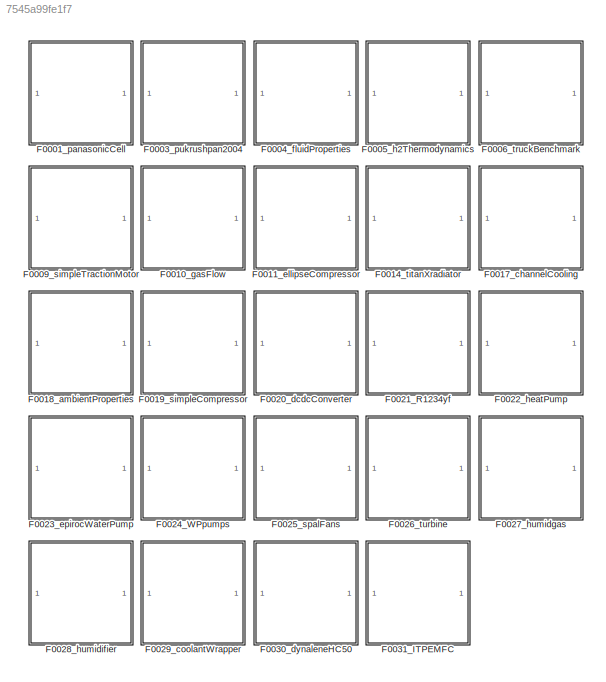
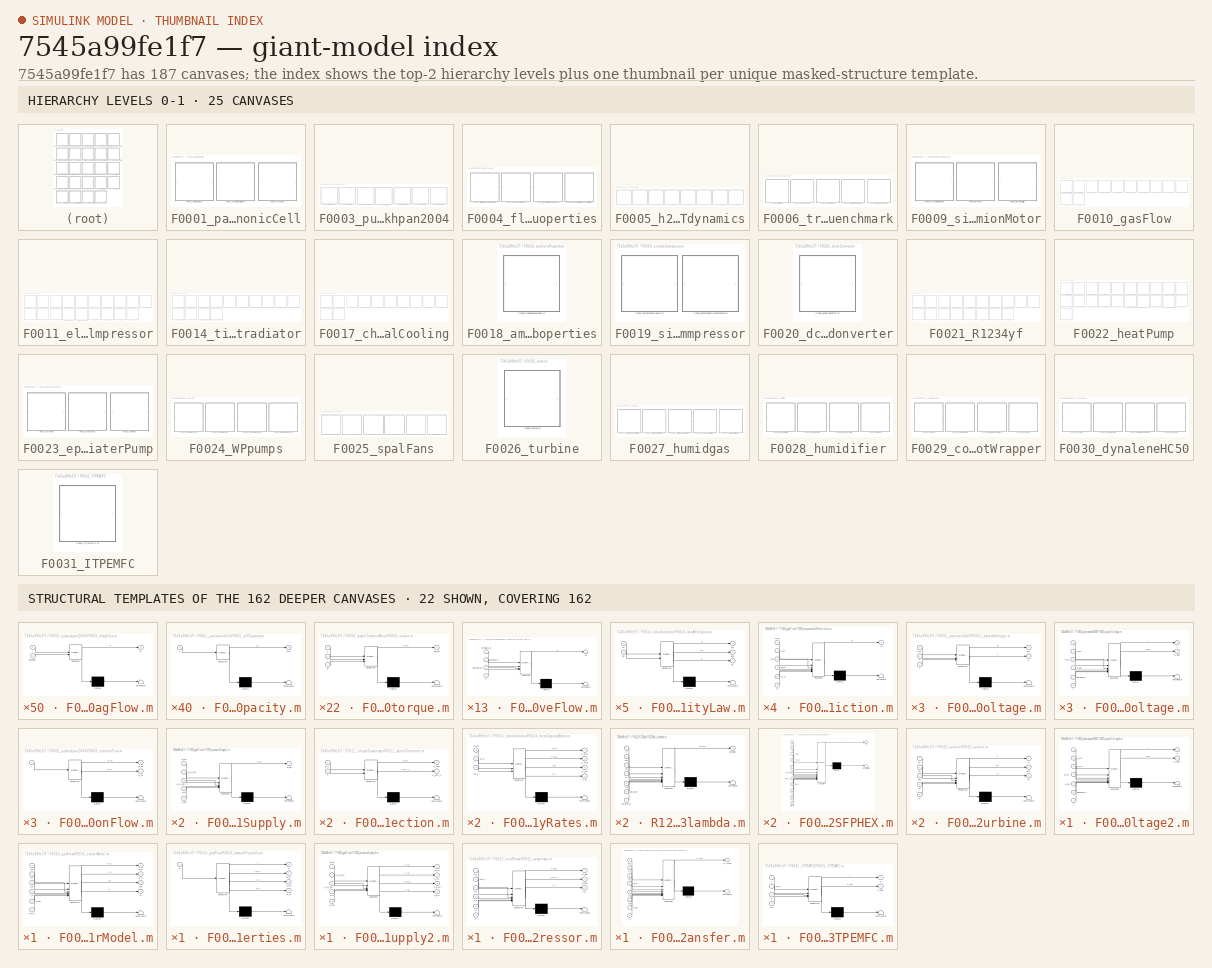
[diagram: thumbnail index - top-2 hierarchy levels (25 canvases) + 22 structural-template representatives of the remaining 162 canvases]
MODEL slx_7545a99fe1f7
KIND library
CONFIG AbsTol = auto
CONFIG EnableMultiTasking = off
CONFIG FixedStep = auto
CONFIG MaxStep = auto
CONFIG MinStep = auto
CONFIG RelTol = 1e-3
CONFIG SampleTimeConstraint = Unconstrained
CONFIG SolverName = VariableStepAuto
CONFIG StartTime = 0.0
CONFIG StopTime = 10.0
BLOCK [SubSystem] F0001_panasonicCell
BLOCK [SubSystem] F0001_panasonicCell/F0001_cellCapacity.m
  ErrorFcn = Stateflow.Translate.translate
  LibrarySourceBlock = simulink/User-Defined\nFunctions/MATLAB Function
  PermitHierarchicalResolution = ExplicitOnly
  SFBlockType = MATLAB Function
  TreatAsAtomicUnit = on
BLOCK [Demux] F0001_panasonicCell/F0001_cellCapacity.m/ Demux 
  Outputs = 1
BLOCK [S-Function] F0001_panasonicCell/F0001_cellCapacity.m/ SFunction 
  EnableBusSupport = off
  FunctionName = sf_sfun
  PortCounts = [1 2]
  SFcnIsStateOwnerBlock = off
  SFunctionDeploymentMode = off
  Tag = Stateflow S-Function 2
BLOCK [Terminator] F0001_panasonicCell/F0001_cellCapacity.m/ Terminator 
BLOCK [Outport] F0001_panasonicCell/F0001_cellCapacity.m/Q0
BLOCK [Inport] F0001_panasonicCell/F0001_cellCapacity.m/T
BLOCK [SubSystem] F0001_panasonicCell/F0001_dynamicVoltage.m
  ErrorFcn = Stateflow.Translate.translate
  LibrarySourceBlock = simulink/User-Defined\nFunctions/MATLAB Function
  PermitHierarchicalResolution = ExplicitOnly
  SFBlockType = MATLAB Function
  TreatAsAtomicUnit = on
BLOCK [Demux] F0001_panasonicCell/F0001_dynamicVoltage.m/ Demux 
  Outputs = 1
BLOCK [S-Function] F0001_panasonicCell/F0001_dynamicVoltage.m/ SFunction 
  EnableBusSupport = off
  FunctionName = sf_sfun
  PortCounts = [3 3]
  SFcnIsStateOwnerBlock = off
  SFunctionDeploymentMode = off
  Tag = Stateflow S-Function 1
BLOCK [Terminator] F0001_panasonicCell/F0001_dynamicVoltage.m/ Terminator 
BLOCK [Inport] F0001_panasonicCell/F0001_dynamicVoltage.m/T
  Port = 2
BLOCK [Outport] F0001_panasonicCell/F0001_dynamicVoltage.m/V
  Port = 2
BLOCK [Outport] F0001_panasonicCell/F0001_dynamicVoltage.m/dx
BLOCK [Inport] F0001_panasonicCell/F0001_dynamicVoltage.m/i
  Port = 3
BLOCK [Inport] F0001_panasonicCell/F0001_dynamicVoltage.m/in1
BLOCK [SubSystem] F0001_panasonicCell/F0001_ocvSOC.m
  ErrorFcn = Stateflow.Translate.translate
  LibrarySourceBlock = simulink/User-Defined\nFunctions/MATLAB Function
  PermitHierarchicalResolution = ExplicitOnly
  SFBlockType = MATLAB Function
  TreatAsAtomicUnit = on
BLOCK [Demux] F0001_panasonicCell/F0001_ocvSOC.m/ Demux 
  Outputs = 1
BLOCK [S-Function] F0001_panasonicCell/F0001_ocvSOC.m/ SFunction 
  EnableBusSupport = off
  FunctionName = sf_sfun
  PortCounts = [1 2]
  SFcnIsStateOwnerBlock = off
  SFunctionDeploymentMode = off
  Tag = Stateflow S-Function 3
BLOCK [Terminator] F0001_panasonicCell/F0001_ocvSOC.m/ Terminator 
BLOCK [Inport] F0001_panasonicCell/F0001_ocvSOC.m/SOC
BLOCK [Outport] F0001_panasonicCell/F0001_ocvSOC.m/U
BLOCK [SubSystem] F0003_pukrushpan2004
BLOCK [SubSystem] F0003_pukrushpan2004/F0003_diffusiveFlow.m
  ErrorFcn = Stateflow.Translate.translate
  LibrarySourceBlock = simulink/User-Defined\nFunctions/MATLAB Function
  PermitHierarchicalResolution = ExplicitOnly
  SFBlockType = MATLAB Function
  TreatAsAtomicUnit = on
BLOCK [Demux] F0003_pukrushpan2004/F0003_diffusiveFlow.m/ Demux 
  Outputs = 1
BLOCK [S-Function] F0003_pukrushpan2004/F0003_diffusiveFlow.m/ SFunction 
  EnableBusSupport = off
  FunctionName = sf_sfun
  Parameters = par
  PortCounts = [4 2]
  SFcnIsStateOwnerBlock = off
  SFunctionDeploymentMode = off
  Tag = Stateflow S-Function 4
BLOCK [Terminator] F0003_pukrushpan2004/F0003_diffusiveFlow.m/ Terminator 
BLOCK [Inport] F0003_pukrushpan2004/F0003_diffusiveFlow.m/T
  Port = 4
BLOCK [Outport] F0003_pukrushpan2004/F0003_diffusiveFlow.m/W
BLOCK [Inport] F0003_pukrushpan2004/F0003_diffusiveFlow.m/lambda_an
BLOCK [Inport] F0003_pukrushpan2004/F0003_diffusiveFlow.m/lambda_ca
  Port = 3
BLOCK [Inport] F0003_pukrushpan2004/F0003_diffusiveFlow.m/lambda_m
  Port = 2
BLOCK [SubSystem] F0003_pukrushpan2004/F0003_dragFlow.m
  ErrorFcn = Stateflow.Translate.translate
  LibrarySourceBlock = simulink/User-Defined\nFunctions/MATLAB Function
  PermitHierarchicalResolution = ExplicitOnly
  SFBlockType = MATLAB Function
  TreatAsAtomicUnit = on
BLOCK [Demux] F0003_pukrushpan2004/F0003_dragFlow.m/ Demux 
  Outputs = 1
BLOCK [S-Function] F0003_pukrushpan2004/F0003_dragFlow.m/ SFunction 
  EnableBusSupport = off
  FunctionName = sf_sfun
  PortCounts = [2 2]
  SFcnIsStateOwnerBlock = off
  SFunctionDeploymentMode = off
  Tag = Stateflow S-Function 5
BLOCK [Terminator] F0003_pukrushpan2004/F0003_dragFlow.m/ Terminator 
BLOCK [Inport] F0003_pukrushpan2004/F0003_dragFlow.m/I
BLOCK [Outport] F0003_pukrushpan2004/F0003_dragFlow.m/W
BLOCK [Inport] F0003_pukrushpan2004/F0003_dragFlow.m/lambda
  Port = 2
BLOCK [SubSystem] F0003_pukrushpan2004/F0003_outputVoltage.m
  ErrorFcn = Stateflow.Translate.translate
  LibrarySourceBlock = simulink/User-Defined\nFunctions/MATLAB Function
  PermitHierarchicalResolution = ExplicitOnly
  SFBlockType = MATLAB Function
  TreatAsAtomicUnit = on
BLOCK [Demux] F0003_pukrushpan2004/F0003_outputVoltage.m/ Demux 
  Outputs = 1
BLOCK [S-Function] F0003_pukrushpan2004/F0003_outputVoltage.m/ SFunction 
  EnableBusSupport = off
  FunctionName = sf_sfun
  Parameters = par
  PortCounts = [6 3]
  SFcnIsStateOwnerBlock = off
  SFunctionDeploymentMode = off
  Tag = Stateflow S-Function 6
BLOCK [Terminator] F0003_pukrushpan2004/F0003_outputVoltage.m/ Terminator 
BLOCK [Inport] F0003_pukrushpan2004/F0003_outputVoltage.m/I
BLOCK [Outport] F0003_pukrushpan2004/F0003_outputVoltage.m/Q_gen
  Port = 2
BLOCK [Inport] F0003_pukrushpan2004/F0003_outputVoltage.m/T
  Port = 6
BLOCK [Outport] F0003_pukrushpan2004/F0003_outputVoltage.m/V
BLOCK [Inport] F0003_pukrushpan2004/F0003_outputVoltage.m/lambda_m
  Port = 5
BLOCK [Inport] F0003_pukrushpan2004/F0003_outputVoltage.m/p_an
  Port = 2
BLOCK [Inport] F0003_pukrushpan2004/F0003_outputVoltage.m/p_ca
  Port = 3
BLOCK [Inport] F0003_pukrushpan2004/F0003_outputVoltage.m/p_sat
  Port = 4
BLOCK [SubSystem] F0003_pukrushpan2004/F0003_outputVoltage2.m
  ErrorFcn = Stateflow.Translate.translate
  LibrarySourceBlock = simulink/User-Defined\nFunctions/MATLAB Function
  PermitHierarchicalResolution = ExplicitOnly
  SFBlockType = MATLAB Function
  TreatAsAtomicUnit = on
BLOCK [Demux] F0003_pukrushpan2004/F0003_outputVoltage2.m/ Demux 
  Outputs = 1
BLOCK [S-Function] F0003_pukrushpan2004/F0003_outputVoltage2.m/ SFunction 
  EnableBusSupport = off
  FunctionName = sf_sfun
  Parameters = par
  PortCounts = [7 3]
  SFcnIsStateOwnerBlock = off
  SFunctionDeploymentMode = off
  Tag = Stateflow S-Function 7
BLOCK [Terminator] F0003_pukrushpan2004/F0003_outputVoltage2.m/ Terminator 
BLOCK [Inport] F0003_pukrushpan2004/F0003_outputVoltage2.m/I
BLOCK [Outport] F0003_pukrushpan2004/F0003_outputVoltage2.m/Q_gen
  Port = 2
BLOCK [Inport] F0003_pukrushpan2004/F0003_outputVoltage2.m/T
  Port = 7
BLOCK [Outport] F0003_pukrushpan2004/F0003_outputVoltage2.m/V
BLOCK [Inport] F0003_pukrushpan2004/F0003_outputVoltage2.m/lambda_m
  Port = 6
BLOCK [Inport] F0003_pukrushpan2004/F0003_outputVoltage2.m/p_H2
  Port = 3
BLOCK [Inport] F0003_pukrushpan2004/F0003_outputVoltage2.m/p_O2
  Port = 4
BLOCK [Inport] F0003_pukrushpan2004/F0003_outputVoltage2.m/p_sat
  Port = 5
BLOCK [Inport] F0003_pukrushpan2004/F0003_outputVoltage2.m/p_tot
  Port = 2
BLOCK [SubSystem] F0003_pukrushpan2004/F0003_reactionFlow.m
  ErrorFcn = Stateflow.Translate.translate
  LibrarySourceBlock = simulink/User-Defined\nFunctions/MATLAB Function
  PermitHierarchicalResolution = ExplicitOnly
  SFBlockType = MATLAB Function
  TreatAsAtomicUnit = on
BLOCK [Demux] F0003_pukrushpan2004/F0003_reactionFlow.m/ Demux 
  Outputs = 1
BLOCK [S-Function] F0003_pukrushpan2004/F0003_reactionFlow.m/ SFunction 
  EnableBusSupport = off
  FunctionName = sf_sfun
  PortCounts = [1 3]
  SFcnIsStateOwnerBlock = off
  SFunctionDeploymentMode = off
  Tag = Stateflow S-Function 8
BLOCK [Terminator] F0003_pukrushpan2004/F0003_reactionFlow.m/ Terminator 
BLOCK [Inport] F0003_pukrushpan2004/F0003_reactionFlow.m/I
BLOCK [Outport] F0003_pukrushpan2004/F0003_reactionFlow.m/W_an
BLOCK [Outport] F0003_pukrushpan2004/F0003_reactionFlow.m/W_ca
  Port = 2
BLOCK [SubSystem] F0003_pukrushpan2004/F0003_vaporActivity.m
  ErrorFcn = Stateflow.Translate.translate
  LibrarySourceBlock = simulink/User-Defined\nFunctions/MATLAB Function
  PermitHierarchicalResolution = ExplicitOnly
  SFBlockType = MATLAB Function
  TreatAsAtomicUnit = on
BLOCK [Demux] F0003_pukrushpan2004/F0003_vaporActivity.m/ Demux 
  Outputs = 1
BLOCK [S-Function] F0003_pukrushpan2004/F0003_vaporActivity.m/ SFunction 
  EnableBusSupport = off
  FunctionName = sf_sfun
  PortCounts = [2 2]
  SFcnIsStateOwnerBlock = off
  SFunctionDeploymentMode = off
  Tag = Stateflow S-Function 9
BLOCK [Terminator] F0003_pukrushpan2004/F0003_vaporActivity.m/ Terminator 
BLOCK [Inport] F0003_pukrushpan2004/F0003_vaporActivity.m/P_sat
  Port = 2
BLOCK [Outport] F0003_pukrushpan2004/F0003_vaporActivity.m/a
BLOCK [Inport] F0003_pukrushpan2004/F0003_vaporActivity.m/p
BLOCK [SubSystem] F0003_pukrushpan2004/F0003_waterContent.m
  ErrorFcn = Stateflow.Translate.translate
  LibrarySourceBlock = simulink/User-Defined\nFunctions/MATLAB Function
  PermitHierarchicalResolution = ExplicitOnly
  SFBlockType = MATLAB Function
  TreatAsAtomicUnit = on
BLOCK [Demux] F0003_pukrushpan2004/F0003_waterContent.m/ Demux 
  Outputs = 1
BLOCK [S-Function] F0003_pukrushpan2004/F0003_waterContent.m/ SFunction 
  EnableBusSupport = off
  FunctionName = sf_sfun
  PortCounts = [1 2]
  SFcnIsStateOwnerBlock = off
  SFunctionDeploymentMode = off
  Tag = Stateflow S-Function 136
BLOCK [Terminator] F0003_pukrushpan2004/F0003_waterContent.m/ Terminator 
BLOCK [Inport] F0003_pukrushpan2004/F0003_waterContent.m/a
BLOCK [Outport] F0003_pukrushpan2004/F0003_waterContent.m/lambda
BLOCK [SubSystem] F0004_fluidProperties
BLOCK [SubSystem] F0004_fluidProperties/F0004_mixtureMassSpecificHeat.m
  ErrorFcn = Stateflow.Translate.translate
  LibrarySourceBlock = simulink/User-Defined\nFunctions/MATLAB Function
  PermitHierarchicalResolution = ExplicitOnly
  SFBlockType = MATLAB Function
  TreatAsAtomicUnit = on
BLOCK [Demux] F0004_fluidProperties/F0004_mixtureMassSpecificHeat.m/ Demux 
  Outputs = 1
BLOCK [S-Function] F0004_fluidProperties/F0004_mixtureMassSpecificHeat.m/ SFunction 
  EnableBusSupport = off
  FunctionName = sf_sfun
  Parameters = par
  PortCounts = [1 3]
  SFcnIsStateOwnerBlock = off
  SFunctionDeploymentMode = off
  Tag = Stateflow S-Function 10
BLOCK [Terminator] F0004_fluidProperties/F0004_mixtureMassSpecificHeat.m/ Terminator 
BLOCK [Outport] F0004_fluidProperties/F0004_mixtureMassSpecificHeat.m/cp
BLOCK [Outport] F0004_fluidProperties/F0004_mixtureMassSpecificHeat.m/cv
  Port = 2
BLOCK [Inport] F0004_fluidProperties/F0004_mixtureMassSpecificHeat.m/p
BLOCK [SubSystem] F0004_fluidProperties/F0004_pressureToMass.m
  ErrorFcn = Stateflow.Translate.translate
  LibrarySourceBlock = simulink/User-Defined\nFunctions/MATLAB Function
  PermitHierarchicalResolution = ExplicitOnly
  SFBlockType = MATLAB Function
  TreatAsAtomicUnit = on
BLOCK [Demux] F0004_fluidProperties/F0004_pressureToMass.m/ Demux 
  Outputs = 1
BLOCK [S-Function] F0004_fluidProperties/F0004_pressureToMass.m/ SFunction 
  EnableBusSupport = off
  FunctionName = sf_sfun
  Parameters = par
  PortCounts = [2 2]
  SFcnIsStateOwnerBlock = off
  SFunctionDeploymentMode = off
  Tag = Stateflow S-Function 11
BLOCK [Terminator] F0004_fluidProperties/F0004_pressureToMass.m/ Terminator 
BLOCK [Inport] F0004_fluidProperties/F0004_pressureToMass.m/T
  Port = 2
BLOCK [Outport] F0004_fluidProperties/F0004_pressureToMass.m/m
BLOCK [Inport] F0004_fluidProperties/F0004_pressureToMass.m/p
BLOCK [SubSystem] F0004_fluidProperties/F0004_temperatureToEnthalpy.m
  ErrorFcn = Stateflow.Translate.translate
  LibrarySourceBlock = simulink/User-Defined\nFunctions/MATLAB Function
  PermitHierarchicalResolution = ExplicitOnly
  SFBlockType = MATLAB Function
  TreatAsAtomicUnit = on
BLOCK [Demux] F0004_fluidProperties/F0004_temperatureToEnthalpy.m/ Demux 
  Outputs = 1
BLOCK [S-Function] F0004_fluidProperties/F0004_temperatureToEnthalpy.m/ SFunction 
  EnableBusSupport = off
  FunctionName = sf_sfun
  Parameters = par
  PortCounts = [1 2]
  SFcnIsStateOwnerBlock = off
  SFunctionDeploymentMode = off
  Tag = Stateflow S-Function 12
BLOCK [Terminator] F0004_fluidProperties/F0004_temperatureToEnthalpy.m/ Terminator 
BLOCK [Inport] F0004_fluidProperties/F0004_temperatureToEnthalpy.m/T
BLOCK [Outport] F0004_fluidProperties/F0004_temperatureToEnthalpy.m/h
BLOCK [SubSystem] F0004_fluidProperties/F0004_vaporSaturationConcentration.m
  ErrorFcn = Stateflow.Translate.translate
  LibrarySourceBlock = simulink/User-Defined\nFunctions/MATLAB Function
  PermitHierarchicalResolution = ExplicitOnly
  SFBlockType = MATLAB Function
  TreatAsAtomicUnit = on
BLOCK [Demux] F0004_fluidProperties/F0004_vaporSaturationConcentration.m/ Demux 
  Outputs = 1
BLOCK [S-Function] F0004_fluidProperties/F0004_vaporSaturationConcentration.m/ SFunction 
  EnableBusSupport = off
  FunctionName = sf_sfun
  Parameters = par
  PortCounts = [2 2]
  SFcnIsStateOwnerBlock = off
  SFunctionDeploymentMode = off
  Tag = Stateflow S-Function 13
BLOCK [Terminator] F0004_fluidProperties/F0004_vaporSaturationConcentration.m/ Terminator 
BLOCK [Inport] F0004_fluidProperties/F0004_vaporSaturationConcentration.m/T
  Port = 2
BLOCK [Outport] F0004_fluidProperties/F0004_vaporSaturationConcentration.m/c_sat
BLOCK [Inport] F0004_fluidProperties/F0004_vaporSaturationConcentration.m/p_sat
BLOCK [SubSystem] F0005_h2Thermodynamics
BLOCK [SubSystem] F0005_h2Thermodynamics/F0005_cp.m
  ErrorFcn = Stateflow.Translate.translate
  LibrarySourceBlock = simulink/User-Defined\nFunctions/MATLAB Function
  PermitHierarchicalResolution = ExplicitOnly
  SFBlockType = MATLAB Function
  TreatAsAtomicUnit = on
BLOCK [Demux] F0005_h2Thermodynamics/F0005_cp.m/ Demux 
  Outputs = 1
BLOCK [S-Function] F0005_h2Thermodynamics/F0005_cp.m/ SFunction 
  EnableBusSupport = off
  FunctionName = sf_sfun
  PortCounts = [2 2]
  SFcnIsStateOwnerBlock = off
  SFunctionDeploymentMode = off
  Tag = Stateflow S-Function 14
BLOCK [Terminator] F0005_h2Thermodynamics/F0005_cp.m/ Terminator 
BLOCK [Inport] F0005_h2Thermodynamics/F0005_cp.m/T
BLOCK [Outport] F0005_h2Thermodynamics/F0005_cp.m/cp
BLOCK [Inport] F0005_h2Thermodynamics/F0005_cp.m/rho
  Port = 2
BLOCK [SubSystem] F0005_h2Thermodynamics/F0005_cv.m
  ErrorFcn = Stateflow.Translate.translate
  LibrarySourceBlock = simulink/User-Defined\nFunctions/MATLAB Function
  PermitHierarchicalResolution = ExplicitOnly
  SFBlockType = MATLAB Function
  TreatAsAtomicUnit = on
BLOCK [Demux] F0005_h2Thermodynamics/F0005_cv.m/ Demux 
  Outputs = 1
BLOCK [S-Function] F0005_h2Thermodynamics/F0005_cv.m/ SFunction 
  EnableBusSupport = off
  FunctionName = sf_sfun
  PortCounts = [2 2]
  SFcnIsStateOwnerBlock = off
  SFunctionDeploymentMode = off
  Tag = Stateflow S-Function 15
BLOCK [Terminator] F0005_h2Thermodynamics/F0005_cv.m/ Terminator 
BLOCK [Inport] F0005_h2Thermodynamics/F0005_cv.m/T
BLOCK [Outport] F0005_h2Thermodynamics/F0005_cv.m/cv
BLOCK [Inport] F0005_h2Thermodynamics/F0005_cv.m/rho
  Port = 2
BLOCK [SubSystem] F0005_h2Thermodynamics/F0005_energy.m
  ErrorFcn = Stateflow.Translate.translate
  LibrarySourceBlock = simulink/User-Defined\nFunctions/MATLAB Function
  PermitHierarchicalResolution = ExplicitOnly
  SFBlockType = MATLAB Function
  TreatAsAtomicUnit = on
BLOCK [Demux] F0005_h2Thermodynamics/F0005_energy.m/ Demux 
  Outputs = 1
BLOCK [S-Function] F0005_h2Thermodynamics/F0005_energy.m/ SFunction 
  EnableBusSupport = off
  FunctionName = sf_sfun
  PortCounts = [2 2]
  SFcnIsStateOwnerBlock = off
  SFunctionDeploymentMode = off
  Tag = Stateflow S-Function 16
BLOCK [Terminator] F0005_h2Thermodynamics/F0005_energy.m/ Terminator 
BLOCK [Inport] F0005_h2Thermodynamics/F0005_energy.m/T
BLOCK [Inport] F0005_h2Thermodynamics/F0005_energy.m/rho
  Port = 2
BLOCK [Outport] F0005_h2Thermodynamics/F0005_energy.m/u
BLOCK [SubSystem] F0005_h2Thermodynamics/F0005_enthalpy.m
  ErrorFcn = Stateflow.Translate.translate
  LibrarySourceBlock = simulink/User-Defined\nFunctions/MATLAB Function
  PermitHierarchicalResolution = ExplicitOnly
  SFBlockType = MATLAB Function
  TreatAsAtomicUnit = on
BLOCK [Demux] F0005_h2Thermodynamics/F0005_enthalpy.m/ Demux 
  Outputs = 1
BLOCK [S-Function] F0005_h2Thermodynamics/F0005_enthalpy.m/ SFunction 
  EnableBusSupport = off
  FunctionName = sf_sfun
  PortCounts = [2 2]
  SFcnIsStateOwnerBlock = off
  SFunctionDeploymentMode = off
  Tag = Stateflow S-Function 17
BLOCK [Terminator] F0005_h2Thermodynamics/F0005_enthalpy.m/ Terminator 
BLOCK [Inport] F0005_h2Thermodynamics/F0005_enthalpy.m/T
BLOCK [Outport] F0005_h2Thermodynamics/F0005_enthalpy.m/h
BLOCK [Inport] F0005_h2Thermodynamics/F0005_enthalpy.m/rho
  Port = 2
BLOCK [SubSystem] F0005_h2Thermodynamics/F0005_entropy.m
  ErrorFcn = Stateflow.Translate.translate
  LibrarySourceBlock = simulink/User-Defined\nFunctions/MATLAB Function
  PermitHierarchicalResolution = ExplicitOnly
  SFBlockType = MATLAB Function
  TreatAsAtomicUnit = on
BLOCK [Demux] F0005_h2Thermodynamics/F0005_entropy.m/ Demux 
  Outputs = 1
BLOCK [S-Function] F0005_h2Thermodynamics/F0005_entropy.m/ SFunction 
  EnableBusSupport = off
  FunctionName = sf_sfun
  PortCounts = [2 2]
  SFcnIsStateOwnerBlock = off
  SFunctionDeploymentMode = off
  Tag = Stateflow S-Function 18
BLOCK [Terminator] F0005_h2Thermodynamics/F0005_entropy.m/ Terminator 
BLOCK [Inport] F0005_h2Thermodynamics/F0005_entropy.m/T
BLOCK [Inport] F0005_h2Thermodynamics/F0005_entropy.m/rho
  Port = 2
BLOCK [Outport] F0005_h2Thermodynamics/F0005_entropy.m/s
BLOCK [SubSystem] F0005_h2Thermodynamics/F0005_gibbs.m
  ErrorFcn = Stateflow.Translate.translate
  LibrarySourceBlock = simulink/User-Defined\nFunctions/MATLAB Function
  PermitHierarchicalResolution = ExplicitOnly
  SFBlockType = MATLAB Function
  TreatAsAtomicUnit = on
BLOCK [Demux] F0005_h2Thermodynamics/F0005_gibbs.m/ Demux 
  Outputs = 1
BLOCK [S-Function] F0005_h2Thermodynamics/F0005_gibbs.m/ SFunction 
  EnableBusSupport = off
  FunctionName = sf_sfun
  PortCounts = [2 2]
  SFcnIsStateOwnerBlock = off
  SFunctionDeploymentMode = off
  Tag = Stateflow S-Function 19
BLOCK [Terminator] F0005_h2Thermodynamics/F0005_gibbs.m/ Terminator 
BLOCK [Inport] F0005_h2Thermodynamics/F0005_gibbs.m/T
BLOCK [Outport] F0005_h2Thermodynamics/F0005_gibbs.m/g
BLOCK [Inport] F0005_h2Thermodynamics/F0005_gibbs.m/rho
  Port = 2
BLOCK [SubSystem] F0005_h2Thermodynamics/F0005_helmholtz.m
  ErrorFcn = Stateflow.Translate.translate
  LibrarySourceBlock = simulink/User-Defined\nFunctions/MATLAB Function
  PermitHierarchicalResolution = ExplicitOnly
  SFBlockType = MATLAB Function
  TreatAsAtomicUnit = on
BLOCK [Demux] F0005_h2Thermodynamics/F0005_helmholtz.m/ Demux 
  Outputs = 1
BLOCK [S-Function] F0005_h2Thermodynamics/F0005_helmholtz.m/ SFunction 
  EnableBusSupport = off
  FunctionName = sf_sfun
  PortCounts = [2 2]
  SFcnIsStateOwnerBlock = off
  SFunctionDeploymentMode = off
  Tag = Stateflow S-Function 20
BLOCK [Terminator] F0005_h2Thermodynamics/F0005_helmholtz.m/ Terminator 
BLOCK [Inport] F0005_h2Thermodynamics/F0005_helmholtz.m/T
BLOCK [Outport] F0005_h2Thermodynamics/F0005_helmholtz.m/a
BLOCK [Inport] F0005_h2Thermodynamics/F0005_helmholtz.m/rho
  Port = 2
BLOCK [SubSystem] F0005_h2Thermodynamics/F0005_pressure.m
  ErrorFcn = Stateflow.Translate.translate
  LibrarySourceBlock = simulink/User-Defined\nFunctions/MATLAB Function
  PermitHierarchicalResolution = ExplicitOnly
  SFBlockType = MATLAB Function
  TreatAsAtomicUnit = on
BLOCK [Demux] F0005_h2Thermodynamics/F0005_pressure.m/ Demux 
  Outputs = 1
BLOCK [S-Function] F0005_h2Thermodynamics/F0005_pressure.m/ SFunction 
  EnableBusSupport = off
  FunctionName = sf_sfun
  PortCounts = [2 2]
  SFcnIsStateOwnerBlock = off
  SFunctionDeploymentMode = off
  Tag = Stateflow S-Function 21
BLOCK [Terminator] F0005_h2Thermodynamics/F0005_pressure.m/ Terminator 
BLOCK [Inport] F0005_h2Thermodynamics/F0005_pressure.m/T
BLOCK [Outport] F0005_h2Thermodynamics/F0005_pressure.m/p
BLOCK [Inport] F0005_h2Thermodynamics/F0005_pressure.m/rho
  Port = 2
BLOCK [SubSystem] F0006_truckBenchmark
BLOCK [SubSystem] F0006_truckBenchmark/F0006_airDrag.m
  ErrorFcn = Stateflow.Translate.translate
  LibrarySourceBlock = simulink/User-Defined\nFunctions/MATLAB Function
  PermitHierarchicalResolution = ExplicitOnly
  SFBlockType = MATLAB Function
  TreatAsAtomicUnit = on
BLOCK [Demux] F0006_truckBenchmark/F0006_airDrag.m/ Demux 
  Outputs = 1
BLOCK [S-Function] F0006_truckBenchmark/F0006_airDrag.m/ SFunction 
  EnableBusSupport = off
  FunctionName = sf_sfun
  Parameters = par
  PortCounts = [1 2]
  SFcnIsStateOwnerBlock = off
  SFunctionDeploymentMode = off
  Tag = Stateflow S-Function 22
BLOCK [Terminator] F0006_truckBenchmark/F0006_airDrag.m/ Terminator 
BLOCK [Outport] F0006_truckBenchmark/F0006_airDrag.m/Fa
BLOCK [Inport] F0006_truckBenchmark/F0006_airDrag.m/v
BLOCK [SubSystem] F0006_truckBenchmark/F0006_brakeForce.m
  ErrorFcn = Stateflow.Translate.translate
  LibrarySourceBlock = simulink/User-Defined\nFunctions/MATLAB Function
  PermitHierarchicalResolution = ExplicitOnly
  SFBlockType = MATLAB Function
  TreatAsAtomicUnit = on
BLOCK [Demux] F0006_truckBenchmark/F0006_brakeForce.m/ Demux 
  Outputs = 1
BLOCK [S-Function] F0006_truckBenchmark/F0006_brakeForce.m/ SFunction 
  EnableBusSupport = off
  FunctionName = sf_sfun
  Parameters = par
  PortCounts = [1 2]
  SFcnIsStateOwnerBlock = off
  SFunctionDeploymentMode = off
  Tag = Stateflow S-Function 23
BLOCK [Terminator] F0006_truckBenchmark/F0006_brakeForce.m/ Terminator 
BLOCK [Outport] F0006_truckBenchmark/F0006_brakeForce.m/Fb
BLOCK [Inport] F0006_truckBenchmark/F0006_brakeForce.m/brake
BLOCK [SubSystem] F0006_truckBenchmark/F0006_gearBox.m
  ErrorFcn = Stateflow.Translate.translate
  LibrarySourceBlock = simulink/User-Defined\nFunctions/MATLAB Function
  PermitHierarchicalResolution = ExplicitOnly
  SFBlockType = MATLAB Function
  TreatAsAtomicUnit = on
BLOCK [Demux] F0006_truckBenchmark/F0006_gearBox.m/ Demux 
  Outputs = 1
BLOCK [S-Function] F0006_truckBenchmark/F0006_gearBox.m/ SFunction 
  EnableBusSupport = off
  FunctionName = sf_sfun
  Parameters = par
  PortCounts = [3 3]
  SFcnIsStateOwnerBlock = off
  SFunctionDeploymentMode = off
  Tag = Stateflow S-Function 24
BLOCK [Terminator] F0006_truckBenchmark/F0006_gearBox.m/ Terminator 
BLOCK [Inport] F0006_truckBenchmark/F0006_gearBox.m/Tq_in
BLOCK [Outport] F0006_truckBenchmark/F0006_gearBox.m/Tq_out
BLOCK [Inport] F0006_truckBenchmark/F0006_gearBox.m/gear_ratio
  Port = 3
BLOCK [Outport] F0006_truckBenchmark/F0006_gearBox.m/w_in
  Port = 2
BLOCK [Inport] F0006_truckBenchmark/F0006_gearBox.m/w_out
  Port = 2
BLOCK [SubSystem] F0006_truckBenchmark/F0006_gravitationalForce.m
  ErrorFcn = Stateflow.Translate.translate
  LibrarySourceBlock = simulink/User-Defined\nFunctions/MATLAB Function
  PermitHierarchicalResolution = ExplicitOnly
  SFBlockType = MATLAB Function
  TreatAsAtomicUnit = on
BLOCK [Demux] F0006_truckBenchmark/F0006_gravitationalForce.m/ Demux 
  Outputs = 1
BLOCK [S-Function] F0006_truckBenchmark/F0006_gravitationalForce.m/ SFunction 
  EnableBusSupport = off
  FunctionName = sf_sfun
  Parameters = par
  PortCounts = [1 2]
  SFcnIsStateOwnerBlock = off
  SFunctionDeploymentMode = off
  Tag = Stateflow S-Function 25
BLOCK [Terminator] F0006_truckBenchmark/F0006_gravitationalForce.m/ Terminator 
BLOCK [Outport] F0006_truckBenchmark/F0006_gravitationalForce.m/Fg
BLOCK [Inport] F0006_truckBenchmark/F0006_gravitationalForce.m/alpha
BLOCK [SubSystem] F0006_truckBenchmark/F0006_rollingResistance.m
  ErrorFcn = Stateflow.Translate.translate
  LibrarySourceBlock = simulink/User-Defined\nFunctions/MATLAB Function
  PermitHierarchicalResolution = ExplicitOnly
  SFBlockType = MATLAB Function
  TreatAsAtomicUnit = on
BLOCK [Demux] F0006_truckBenchmark/F0006_rollingResistance.m/ Demux 
  Outputs = 1
BLOCK [S-Function] F0006_truckBenchmark/F0006_rollingResistance.m/ SFunction 
  EnableBusSupport = off
  FunctionName = sf_sfun
  Parameters = par
  PortCounts = [2 2]
  SFcnIsStateOwnerBlock = off
  SFunctionDeploymentMode = off
  Tag = Stateflow S-Function 26
BLOCK [Terminator] F0006_truckBenchmark/F0006_rollingResistance.m/ Terminator 
BLOCK [Outport] F0006_truckBenchmark/F0006_rollingResistance.m/Fr
BLOCK [Inport] F0006_truckBenchmark/F0006_rollingResistance.m/alpha
  Port = 2
BLOCK [Inport] F0006_truckBenchmark/F0006_rollingResistance.m/v
BLOCK [SubSystem] F0009_simpleTractionMotor
BLOCK [SubSystem] F0009_simpleTractionMotor/F0009_currentDemand.m
  ErrorFcn = Stateflow.Translate.translate
  LibrarySourceBlock = simulink/User-Defined\nFunctions/MATLAB Function
  PermitHierarchicalResolution = ExplicitOnly
  SFBlockType = MATLAB Function
  TreatAsAtomicUnit = on
BLOCK [Demux] F0009_simpleTractionMotor/F0009_currentDemand.m/ Demux 
  Outputs = 1
BLOCK [S-Function] F0009_simpleTractionMotor/F0009_currentDemand.m/ SFunction 
  EnableBusSupport = off
  FunctionName = sf_sfun
  Parameters = par
  PortCounts = [3 3]
  SFcnIsStateOwnerBlock = off
  SFunctionDeploymentMode = off
  Tag = Stateflow S-Function 27
BLOCK [Terminator] F0009_simpleTractionMotor/F0009_currentDemand.m/ Terminator 
BLOCK [Outport] F0009_simpleTractionMotor/F0009_currentDemand.m/I_em
  Port = 2
BLOCK [Outport] F0009_simpleTractionMotor/F0009_currentDemand.m/Q_gen
BLOCK [Inport] F0009_simpleTractionMotor/F0009_currentDemand.m/Tq_em
BLOCK [Inport] F0009_simpleTractionMotor/F0009_currentDemand.m/V
  Port = 2
BLOCK [Inport] F0009_simpleTractionMotor/F0009_currentDemand.m/w_em
  Port = 3
BLOCK [SubSystem] F0009_simpleTractionMotor/F0009_torque.m
  ErrorFcn = Stateflow.Translate.translate
  LibrarySourceBlock = simulink/User-Defined\nFunctions/MATLAB Function
  PermitHierarchicalResolution = ExplicitOnly
  SFBlockType = MATLAB Function
  TreatAsAtomicUnit = on
BLOCK [Demux] F0009_simpleTractionMotor/F0009_torque.m/ Demux 
  Outputs = 1
BLOCK [S-Function] F0009_simpleTractionMotor/F0009_torque.m/ SFunction 
  EnableBusSupport = off
  FunctionName = sf_sfun
  Parameters = par
  PortCounts = [3 2]
  SFcnIsStateOwnerBlock = off
  SFunctionDeploymentMode = off
  Tag = Stateflow S-Function 28
BLOCK [Terminator] F0009_simpleTractionMotor/F0009_torque.m/ Terminator 
BLOCK [Inport] F0009_simpleTractionMotor/F0009_torque.m/I
  Port = 2
BLOCK [Outport] F0009_simpleTractionMotor/F0009_torque.m/Tq_em
BLOCK [Inport] F0009_simpleTractionMotor/F0009_torque.m/V
BLOCK [Inport] F0009_simpleTractionMotor/F0009_torque.m/w
  Port = 3
BLOCK [SubSystem] F0009_simpleTractionMotor/F0009_torqueLimit.m
  ErrorFcn = Stateflow.Translate.translate
  LibrarySourceBlock = simulink/User-Defined\nFunctions/MATLAB Function
  PermitHierarchicalResolution = ExplicitOnly
  SFBlockType = MATLAB Function
  TreatAsAtomicUnit = on
BLOCK [Demux] F0009_simpleTractionMotor/F0009_torqueLimit.m/ Demux 
  Outputs = 1
BLOCK [S-Function] F0009_simpleTractionMotor/F0009_torqueLimit.m/ SFunction 
  EnableBusSupport = off
  FunctionName = sf_sfun
  Parameters = par
  PortCounts = [3 2]
  SFcnIsStateOwnerBlock = off
  SFunctionDeploymentMode = off
  Tag = Stateflow S-Function 29
BLOCK [Terminator] F0009_simpleTractionMotor/F0009_torqueLimit.m/ Terminator 
BLOCK [Outport] F0009_simpleTractionMotor/F0009_torqueLimit.m/Tq_em
BLOCK [Inport] F0009_simpleTractionMotor/F0009_torqueLimit.m/Tq_req
BLOCK [Inport] F0009_simpleTractionMotor/F0009_torqueLimit.m/V
  Port = 2
BLOCK [Inport] F0009_simpleTractionMotor/F0009_torqueLimit.m/w_em
  Port = 3
BLOCK [SubSystem] F0010_gasFlow
BLOCK [SubSystem] F0010_gasFlow/F0010_compressibleRestriction.m
  ErrorFcn = Stateflow.Translate.translate
  LibrarySourceBlock = simulink/User-Defined\nFunctions/MATLAB Function
  PermitHierarchicalResolution = ExplicitOnly
  SFBlockType = MATLAB Function
  TreatAsAtomicUnit = on
BLOCK [Demux] F0010_gasFlow/F0010_compressibleRestriction.m/ Demux 
  Outputs = 1
BLOCK [S-Function] F0010_gasFlow/F0010_compressibleRestriction.m/ SFunction 
  EnableBusSupport = off
  FunctionName = sf_sfun
  Parameters = par
  PortCounts = [6 2]
  SFcnIsStateOwnerBlock = off
  SFunctionDeploymentMode = off
  Tag = Stateflow S-Function 30
BLOCK [Terminator] F0010_gasFlow/F0010_compressibleRestriction.m/ Terminator 
BLOCK [Inport] F0010_gasFlow/F0010_compressibleRestriction.m/A_t
  Port = 6
BLOCK [Inport] F0010_gasFlow/F0010_compressibleRestriction.m/R_m
  Port = 5
BLOCK [Inport] F0010_gasFlow/F0010_compressibleRestriction.m/T_us
  Port = 3
BLOCK [Outport] F0010_gasFlow/F0010_compressibleRestriction.m/W
BLOCK [Inport] F0010_gasFlow/F0010_compressibleRestriction.m/cp_m
  Port = 4
BLOCK [Inport] F0010_gasFlow/F0010_compressibleRestriction.m/p_ds
  Port = 2
BLOCK [Inport] F0010_gasFlow/F0010_compressibleRestriction.m/p_us
BLOCK [SubSystem] F0010_gasFlow/F0010_ejectorModel.m
  ErrorFcn = Stateflow.Translate.translate
  LibrarySourceBlock = simulink/User-Defined\nFunctions/MATLAB Function
  PermitHierarchicalResolution = ExplicitOnly
  SFBlockType = MATLAB Function
  TreatAsAtomicUnit = on
BLOCK [Demux] F0010_gasFlow/F0010_ejectorModel.m/ Demux 
  Outputs = 1
BLOCK [S-Function] F0010_gasFlow/F0010_ejectorModel.m/ SFunction 
  EnableBusSupport = off
  FunctionName = sf_sfun
  Parameters = par
  PortCounts = [6 5]
  SFcnIsStateOwnerBlock = off
  SFunctionDeploymentMode = off
  Tag = Stateflow S-Function 31
BLOCK [Terminator] F0010_gasFlow/F0010_ejectorModel.m/ Terminator 
BLOCK [Inport] F0010_gasFlow/F0010_ejectorModel.m/P_b
  Port = 3
BLOCK [Inport] F0010_gasFlow/F0010_ejectorModel.m/P_p
BLOCK [Inport] F0010_gasFlow/F0010_ejectorModel.m/P_s
  Port = 2
BLOCK [Inport] F0010_gasFlow/F0010_ejectorModel.m/RH_s
  Port = 6
BLOCK [Inport] F0010_gasFlow/F0010_ejectorModel.m/T_p
  Port = 4
BLOCK [Outport] F0010_gasFlow/F0010_ejectorModel.m/W_p
BLOCK [Outport] F0010_gasFlow/F0010_ejectorModel.m/W_s
  Port = 2
BLOCK [Inport] F0010_gasFlow/F0010_ejectorModel.m/p_sat
  Port = 5
BLOCK [Outport] F0010_gasFlow/F0010_ejectorModel.m/phi
  Port = 3
BLOCK [Outport] F0010_gasFlow/F0010_ejectorModel.m/w
  Port = 4
BLOCK [SubSystem] F0010_gasFlow/F0010_enthalpyFlow.m
  ErrorFcn = Stateflow.Translate.translate
  LibrarySourceBlock = simulink/User-Defined\nFunctions/MATLAB Function
  PermitHierarchicalResolution = ExplicitOnly
  SFBlockType = MATLAB Function
  TreatAsAtomicUnit = on
BLOCK [Demux] F0010_gasFlow/F0010_enthalpyFlow.m/ Demux 
  Outputs = 1
BLOCK [S-Function] F0010_gasFlow/F0010_enthalpyFlow.m/ SFunction 
  EnableBusSupport = off
  FunctionName = sf_sfun
  Parameters = par
  PortCounts = [3 2]
  SFcnIsStateOwnerBlock = off
  SFunctionDeploymentMode = off
  Tag = Stateflow S-Function 32
BLOCK [Terminator] F0010_gasFlow/F0010_enthalpyFlow.m/ Terminator 
BLOCK [Outport] F0010_gasFlow/F0010_enthalpyFlow.m/H
BLOCK [Inport] F0010_gasFlow/F0010_enthalpyFlow.m/T_1
  Port = 2
BLOCK [Inport] F0010_gasFlow/F0010_enthalpyFlow.m/T_2
  Port = 3
BLOCK [Inport] F0010_gasFlow/F0010_enthalpyFlow.m/W
BLOCK [SubSystem] F0010_gasFlow/F0010_incompressibleRestriction.m
  ErrorFcn = Stateflow.Translate.translate
  LibrarySourceBlock = simulink/User-Defined\nFunctions/MATLAB Function
  PermitHierarchicalResolution = ExplicitOnly
  SFBlockType = MATLAB Function
  TreatAsAtomicUnit = on
BLOCK [Demux] F0010_gasFlow/F0010_incompressibleRestriction.m/ Demux 
  Outputs = 1
BLOCK [S-Function] F0010_gasFlow/F0010_incompressibleRestriction.m/ SFunction 
  EnableBusSupport = off
  FunctionName = sf_sfun
  Parameters = par
  PortCounts = [4 2]
  SFcnIsStateOwnerBlock = off
  SFunctionDeploymentMode = off
  Tag = Stateflow S-Function 33
BLOCK [Terminator] F0010_gasFlow/F0010_incompressibleRestriction.m/ Terminator 
BLOCK [Inport] F0010_gasFlow/F0010_incompressibleRestriction.m/T_1
  Port = 2
BLOCK [Inport] F0010_gasFlow/F0010_incompressibleRestriction.m/T_2
  Port = 4
BLOCK [Outport] F0010_gasFlow/F0010_incompressibleRestriction.m/W
BLOCK [Inport] F0010_gasFlow/F0010_incompressibleRestriction.m/p_1
BLOCK [Inport] F0010_gasFlow/F0010_incompressibleRestriction.m/p_2
  Port = 3
BLOCK [SubSystem] F0010_gasFlow/F0010_linearRestriction.m
  ErrorFcn = Stateflow.Translate.translate
  LibrarySourceBlock = simulink/User-Defined\nFunctions/MATLAB Function
  PermitHierarchicalResolution = ExplicitOnly
  SFBlockType = MATLAB Function
  TreatAsAtomicUnit = on
BLOCK [Demux] F0010_gasFlow/F0010_linearRestriction.m/ Demux 
  Outputs = 1
BLOCK [S-Function] F0010_gasFlow/F0010_linearRestriction.m/ SFunction 
  EnableBusSupport = off
  FunctionName = sf_sfun
  Parameters = par
  PortCounts = [2 2]
  SFcnIsStateOwnerBlock = off
  SFunctionDeploymentMode = off
  Tag = Stateflow S-Function 34
BLOCK [Terminator] F0010_gasFlow/F0010_linearRestriction.m/ Terminator 
BLOCK [Outport] F0010_gasFlow/F0010_linearRestriction.m/W
BLOCK [Inport] F0010_gasFlow/F0010_linearRestriction.m/p_ds
  Port = 2
BLOCK [Inport] F0010_gasFlow/F0010_linearRestriction.m/p_us
BLOCK [SubSystem] F0010_gasFlow/F0010_mixtureProperties.m
  ErrorFcn = Stateflow.Translate.translate
  LibrarySourceBlock = simulink/User-Defined\nFunctions/MATLAB Function
  PermitHierarchicalResolution = ExplicitOnly
  SFBlockType = MATLAB Function
  TreatAsAtomicUnit = on
BLOCK [Demux] F0010_gasFlow/F0010_mixtureProperties.m/ Demux 
  Outputs = 1
BLOCK [S-Function] F0010_gasFlow/F0010_mixtureProperties.m/ SFunction 
  EnableBusSupport = off
  FunctionName = sf_sfun
  Parameters = par
  PortCounts = [1 5]
  SFcnIsStateOwnerBlock = off
  SFunctionDeploymentMode = off
  Tag = Stateflow S-Function 35
BLOCK [Terminator] F0010_gasFlow/F0010_mixtureProperties.m/ Terminator 
BLOCK [Outport] F0010_gasFlow/F0010_mixtureProperties.m/R_m
  Port = 4
BLOCK [Outport] F0010_gasFlow/F0010_mixtureProperties.m/cp_m
  Port = 2
BLOCK [Outport] F0010_gasFlow/F0010_mixtureProperties.m/cv_m
  Port = 3
BLOCK [Inport] F0010_gasFlow/F0010_mixtureProperties.m/p
BLOCK [Outport] F0010_gasFlow/F0010_mixtureProperties.m/x
BLOCK [SubSystem] F0010_gasFlow/F0010_multicomponentFlow.m
  ErrorFcn = Stateflow.Translate.translate
  LibrarySourceBlock = simulink/User-Defined\nFunctions/MATLAB Function
  PermitHierarchicalResolution = ExplicitOnly
  SFBlockType = MATLAB Function
  TreatAsAtomicUnit = on
BLOCK [Demux] F0010_gasFlow/F0010_multicomponentFlow.m/ Demux 
  Outputs = 1
BLOCK [S-Function] F0010_gasFlow/F0010_multicomponentFlow.m/ SFunction 
  EnableBusSupport = off
  FunctionName = sf_sfun
  Parameters = par
  PortCounts = [2 2]
  SFcnIsStateOwnerBlock = off
  SFunctionDeploymentMode = off
  Tag = Stateflow S-Function 36
BLOCK [Terminator] F0010_gasFlow/F0010_multicomponentFlow.m/ Terminator 
BLOCK [Outport] F0010_gasFlow/F0010_multicomponentFlow.m/W_split
BLOCK [Inport] F0010_gasFlow/F0010_multicomponentFlow.m/W_tot
  Port = 2
BLOCK [Inport] F0010_gasFlow/F0010_multicomponentFlow.m/p_us
BLOCK [SubSystem] F0010_gasFlow/F0010_pressureSupply.m
  ErrorFcn = Stateflow.Translate.translate
  LibrarySourceBlock = simulink/User-Defined\nFunctions/MATLAB Function
  PermitHierarchicalResolution = ExplicitOnly
  SFBlockType = MATLAB Function
  TreatAsAtomicUnit = on
BLOCK [Demux] F0010_gasFlow/F0010_pressureSupply.m/ Demux 
  Outputs = 1
BLOCK [S-Function] F0010_gasFlow/F0010_pressureSupply.m/ SFunction 
  EnableBusSupport = off
  FunctionName = sf_sfun
  Parameters = par
  PortCounts = [5 2]
  SFcnIsStateOwnerBlock = off
  SFunctionDeploymentMode = off
  Tag = Stateflow S-Function 37
BLOCK [Terminator] F0010_gasFlow/F0010_pressureSupply.m/ Terminator 
BLOCK [Inport] F0010_gasFlow/F0010_pressureSupply.m/RH
  Port = 4
BLOCK [Outport] F0010_gasFlow/F0010_pressureSupply.m/p_out
BLOCK [Inport] F0010_gasFlow/F0010_pressureSupply.m/p_sat
  Port = 5
BLOCK [Inport] F0010_gasFlow/F0010_pressureSupply.m/p_tot
BLOCK [Inport] F0010_gasFlow/F0010_pressureSupply.m/x_H2_dry
  Port = 2
BLOCK [Inport] F0010_gasFlow/F0010_pressureSupply.m/x_O2_dry
  Port = 3
BLOCK [SubSystem] F0010_gasFlow/F0010_pressureSupply2.m
  ErrorFcn = Stateflow.Translate.translate
  LibrarySourceBlock = simulink/User-Defined\nFunctions/MATLAB Function
  PermitHierarchicalResolution = ExplicitOnly
  SFBlockType = MATLAB Function
  TreatAsAtomicUnit = on
BLOCK [Demux] F0010_gasFlow/F0010_pressureSupply2.m/ Demux 
  Outputs = 1
BLOCK [S-Function] F0010_gasFlow/F0010_pressureSupply2.m/ SFunction 
  EnableBusSupport = off
  FunctionName = sf_sfun
  Parameters = par
  PortCounts = [5 5]
  SFcnIsStateOwnerBlock = off
  SFunctionDeploymentMode = off
  Tag = Stateflow S-Function 38
BLOCK [Terminator] F0010_gasFlow/F0010_pressureSupply2.m/ Terminator 
BLOCK [Inport] F0010_gasFlow/F0010_pressureSupply2.m/RH
  Port = 4
BLOCK [Outport] F0010_gasFlow/F0010_pressureSupply2.m/p_H2
BLOCK [Outport] F0010_gasFlow/F0010_pressureSupply2.m/p_H2O
  Port = 3
BLOCK [Outport] F0010_gasFlow/F0010_pressureSupply2.m/p_N2
  Port = 4
BLOCK [Outport] F0010_gasFlow/F0010_pressureSupply2.m/p_O2
  Port = 2
BLOCK [Inport] F0010_gasFlow/F0010_pressureSupply2.m/p_sat
  Port = 5
BLOCK [Inport] F0010_gasFlow/F0010_pressureSupply2.m/p_tot
BLOCK [Inport] F0010_gasFlow/F0010_pressureSupply2.m/x_H2_dry
  Port = 2
BLOCK [Inport] F0010_gasFlow/F0010_pressureSupply2.m/x_O2_dry
  Port = 3
BLOCK [SubSystem] F0010_gasFlow/F0010_pressureToMass.m
  ErrorFcn = Stateflow.Translate.translate
  LibrarySourceBlock = simulink/User-Defined\nFunctions/MATLAB Function
  PermitHierarchicalResolution = ExplicitOnly
  SFBlockType = MATLAB Function
  TreatAsAtomicUnit = on
BLOCK [Demux] F0010_gasFlow/F0010_pressureToMass.m/ Demux 
  Outputs = 1
BLOCK [S-Function] F0010_gasFlow/F0010_pressureToMass.m/ SFunction 
  EnableBusSupport = off
  FunctionName = sf_sfun
  Parameters = par
  PortCounts = [2 2]
  SFcnIsStateOwnerBlock = off
  SFunctionDeploymentMode = off
  Tag = Stateflow S-Function 39
BLOCK [Terminator] F0010_gasFlow/F0010_pressureToMass.m/ Terminator 
BLOCK [Inport] F0010_gasFlow/F0010_pressureToMass.m/T
  Port = 2
BLOCK [Outport] F0010_gasFlow/F0010_pressureToMass.m/m
BLOCK [Inport] F0010_gasFlow/F0010_pressureToMass.m/p
BLOCK [SubSystem] F0010_gasFlow/F0010_throttleArea.m
  ErrorFcn = Stateflow.Translate.translate
  LibrarySourceBlock = simulink/User-Defined\nFunctions/MATLAB Function
  PermitHierarchicalResolution = ExplicitOnly
  SFBlockType = MATLAB Function
  TreatAsAtomicUnit = on
BLOCK [Demux] F0010_gasFlow/F0010_throttleArea.m/ Demux 
  Outputs = 1
BLOCK [S-Function] F0010_gasFlow/F0010_throttleArea.m/ SFunction 
  EnableBusSupport = off
  FunctionName = sf_sfun
  Parameters = par
  PortCounts = [1 2]
  SFcnIsStateOwnerBlock = off
  SFunctionDeploymentMode = off
  Tag = Stateflow S-Function 40
BLOCK [Terminator] F0010_gasFlow/F0010_throttleArea.m/ Terminator 
BLOCK [Outport] F0010_gasFlow/F0010_throttleArea.m/A_t
BLOCK [Inport] F0010_gasFlow/F0010_throttleArea.m/alpha
BLOCK [SubSystem] F0010_gasFlow/F0010_vaporSaturationPressure.m
  ErrorFcn = Stateflow.Translate.translate
  LibrarySourceBlock = simulink/User-Defined\nFunctions/MATLAB Function
  PermitHierarchicalResolution = ExplicitOnly
  SFBlockType = MATLAB Function
  TreatAsAtomicUnit = on
BLOCK [Demux] F0010_gasFlow/F0010_vaporSaturationPressure.m/ Demux 
  Outputs = 1
BLOCK [S-Function] F0010_gasFlow/F0010_vaporSaturationPressure.m/ SFunction 
  EnableBusSupport = off
  FunctionName = sf_sfun
  PortCounts = [1 2]
  SFcnIsStateOwnerBlock = off
  SFunctionDeploymentMode = off
  Tag = Stateflow S-Function 137
BLOCK [Terminator] F0010_gasFlow/F0010_vaporSaturationPressure.m/ Terminator 
BLOCK [Inport] F0010_gasFlow/F0010_vaporSaturationPressure.m/T
BLOCK [Outport] F0010_gasFlow/F0010_vaporSaturationPressure.m/p_sat
BLOCK [SubSystem] F0011_ellipseCompressor
BLOCK [SubSystem] F0011_ellipseCompressor/F0011_A.m
  ErrorFcn = Stateflow.Translate.translate
  LibrarySourceBlock = simulink/User-Defined\nFunctions/MATLAB Function
  PermitHierarchicalResolution = ExplicitOnly
  SFBlockType = MATLAB Function
  TreatAsAtomicUnit = on
BLOCK [Demux] F0011_ellipseCompressor/F0011_A.m/ Demux 
  Outputs = 1
BLOCK [S-Function] F0011_ellipseCompressor/F0011_A.m/ SFunction 
  EnableBusSupport = off
  FunctionName = sf_sfun
  Parameters = par
  PortCounts = [1 2]
  SFcnIsStateOwnerBlock = off
  SFunctionDeploymentMode = off
  Tag = Stateflow S-Function 41
BLOCK [Terminator] F0011_ellipseCompressor/F0011_A.m/ Terminator 
BLOCK [Outport] F0011_ellipseCompressor/F0011_A.m/A
BLOCK [Inport] F0011_ellipseCompressor/F0011_A.m/N_corr_n
BLOCK [SubSystem] F0011_ellipseCompressor/F0011_B.m
  ErrorFcn = Stateflow.Translate.translate
  LibrarySourceBlock = simulink/User-Defined\nFunctions/MATLAB Function
  PermitHierarchicalResolution = ExplicitOnly
  SFBlockType = MATLAB Function
  TreatAsAtomicUnit = on
BLOCK [Demux] F0011_ellipseCompressor/F0011_B.m/ Demux 
  Outputs = 1
BLOCK [S-Function] F0011_ellipseCompressor/F0011_B.m/ SFunction 
  EnableBusSupport = off
  FunctionName = sf_sfun
  Parameters = par
  PortCounts = [1 2]
  SFcnIsStateOwnerBlock = off
  SFunctionDeploymentMode = off
  Tag = Stateflow S-Function 42
BLOCK [Terminator] F0011_ellipseCompressor/F0011_B.m/ Terminator 
BLOCK [Outport] F0011_ellipseCompressor/F0011_B.m/B
BLOCK [Inport] F0011_ellipseCompressor/F0011_B.m/N_corr_n
BLOCK [SubSystem] F0011_ellipseCompressor/F0011_CUR.m
  ErrorFcn = Stateflow.Translate.translate
  LibrarySourceBlock = simulink/User-Defined\nFunctions/MATLAB Function
  PermitHierarchicalResolution = ExplicitOnly
  SFBlockType = MATLAB Function
  TreatAsAtomicUnit = on
BLOCK [Demux] F0011_ellipseCompressor/F0011_CUR.m/ Demux 
  Outputs = 1
BLOCK [S-Function] F0011_ellipseCompressor/F0011_CUR.m/ SFunction 
  EnableBusSupport = off
  FunctionName = sf_sfun
  Parameters = par
  PortCounts = [1 2]
  SFcnIsStateOwnerBlock = off
  SFunctionDeploymentMode = off
  Tag = Stateflow S-Function 43
BLOCK [Terminator] F0011_ellipseCompressor/F0011_CUR.m/ Terminator 
BLOCK [Outport] F0011_ellipseCompressor/F0011_CUR.m/CUR
BLOCK [Inport] F0011_ellipseCompressor/F0011_CUR.m/N_corr_n
BLOCK [SubSystem] F0011_ellipseCompressor/F0011_K_loss.m
  ErrorFcn = Stateflow.Translate.translate
  LibrarySourceBlock = simulink/User-Defined\nFunctions/MATLAB Function
  PermitHierarchicalResolution = ExplicitOnly
  SFBlockType = MATLAB Function
  TreatAsAtomicUnit = on
BLOCK [Demux] F0011_ellipseCompressor/F0011_K_loss.m/ Demux 
  Outputs = 1
BLOCK [S-Function] F0011_ellipseCompressor/F0011_K_loss.m/ SFunction 
  EnableBusSupport = off
  FunctionName = sf_sfun
  Parameters = par
  PortCounts = [2 2]
  SFcnIsStateOwnerBlock = off
  SFunctionDeploymentMode = off
  Tag = Stateflow S-Function 44
BLOCK [Terminator] F0011_ellipseCompressor/F0011_K_loss.m/ Terminator 
BLOCK [Outport] F0011_ellipseCompressor/F0011_K_loss.m/K_loss
BLOCK [Inport] F0011_ellipseCompressor/F0011_K_loss.m/N_corr
  Port = 2
BLOCK [Inport] F0011_ellipseCompressor/F0011_K_loss.m/W_corr
BLOCK [SubSystem] F0011_ellipseCompressor/F0011_PI_ZSL.m
  ErrorFcn = Stateflow.Translate.translate
  LibrarySourceBlock = simulink/User-Defined\nFunctions/MATLAB Function
  PermitHierarchicalResolution = ExplicitOnly
  SFBlockType = MATLAB Function
  TreatAsAtomicUnit = on
BLOCK [Demux] F0011_ellipseCompressor/F0011_PI_ZSL.m/ Demux 
  Outputs = 1
BLOCK [S-Function] F0011_ellipseCompressor/F0011_PI_ZSL.m/ SFunction 
  EnableBusSupport = off
  FunctionName = sf_sfun
  Parameters = par
  PortCounts = [1 2]
  SFcnIsStateOwnerBlock = off
  SFunctionDeploymentMode = off
  Tag = Stateflow S-Function 45
BLOCK [Terminator] F0011_ellipseCompressor/F0011_PI_ZSL.m/ Terminator 
BLOCK [Inport] F0011_ellipseCompressor/F0011_PI_ZSL.m/N_corr_n
BLOCK [Outport] F0011_ellipseCompressor/F0011_PI_ZSL.m/PI_ZSL
BLOCK [SubSystem] F0011_ellipseCompressor/F0011_P_c.m
  ErrorFcn = Stateflow.Translate.translate
  LibrarySourceBlock = simulink/User-Defined\nFunctions/MATLAB Function
  PermitHierarchicalResolution = ExplicitOnly
  SFBlockType = MATLAB Function
  TreatAsAtomicUnit = on
BLOCK [Demux] F0011_ellipseCompressor/F0011_P_c.m/ Demux 
  Outputs = 1
BLOCK [S-Function] F0011_ellipseCompressor/F0011_P_c.m/ SFunction 
  EnableBusSupport = off
  FunctionName = sf_sfun
  Parameters = par
  PortCounts = [3 2]
  SFcnIsStateOwnerBlock = off
  SFunctionDeploymentMode = off
  Tag = Stateflow S-Function 46
BLOCK [Terminator] F0011_ellipseCompressor/F0011_P_c.m/ Terminator 
BLOCK [Outport] F0011_ellipseCompressor/F0011_P_c.m/P_c
BLOCK [Inport] F0011_ellipseCompressor/F0011_P_c.m/T_ds
  Port = 3
BLOCK [Inport] F0011_ellipseCompressor/F0011_P_c.m/T_us
  Port = 2
BLOCK [Inport] F0011_ellipseCompressor/F0011_P_c.m/W_c
BLOCK [SubSystem] F0011_ellipseCompressor/F0011_Pi_ch.m
  ErrorFcn = Stateflow.Translate.translate
  LibrarySourceBlock = simulink/User-Defined\nFunctions/MATLAB Function
  PermitHierarchicalResolution = ExplicitOnly
  SFBlockType = MATLAB Function
  TreatAsAtomicUnit = on
BLOCK [Demux] F0011_ellipseCompressor/F0011_Pi_ch.m/ Demux 
  Outputs = 1
BLOCK [S-Function] F0011_ellipseCompressor/F0011_Pi_ch.m/ SFunction 
  EnableBusSupport = off
  FunctionName = sf_sfun
  Parameters = par
  PortCounts = [1 2]
  SFcnIsStateOwnerBlock = off
  SFunctionDeploymentMode = off
  Tag = Stateflow S-Function 47
BLOCK [Terminator] F0011_ellipseCompressor/F0011_Pi_ch.m/ Terminator 
BLOCK [Inport] F0011_ellipseCompressor/F0011_Pi_ch.m/N_corr_n
BLOCK [Outport] F0011_ellipseCompressor/F0011_Pi_ch.m/Pi_ch
BLOCK [SubSystem] F0011_ellipseCompressor/F0011_T_ds.m
  ErrorFcn = Stateflow.Translate.translate
  LibrarySourceBlock = simulink/User-Defined\nFunctions/MATLAB Function
  PermitHierarchicalResolution = ExplicitOnly
  SFBlockType = MATLAB Function
  TreatAsAtomicUnit = on
BLOCK [Demux] F0011_ellipseCompressor/F0011_T_ds.m/ Demux 
  Outputs = 1
BLOCK [S-Function] F0011_ellipseCompressor/F0011_T_ds.m/ SFunction 
  EnableBusSupport = off
  FunctionName = sf_sfun
  Parameters = par
  PortCounts = [3 2]
  SFcnIsStateOwnerBlock = off
  SFunctionDeploymentMode = off
  Tag = Stateflow S-Function 48
BLOCK [Terminator] F0011_ellipseCompressor/F0011_T_ds.m/ Terminator 
BLOCK [Inport] F0011_ellipseCompressor/F0011_T_ds.m/Pi_c
BLOCK [Outport] F0011_ellipseCompressor/F0011_T_ds.m/T_ds
BLOCK [Inport] F0011_ellipseCompressor/F0011_T_ds.m/T_us
  Port = 2
BLOCK [Inport] F0011_ellipseCompressor/F0011_T_ds.m/eta_c
  Port = 3
BLOCK [SubSystem] F0011_ellipseCompressor/F0011_W_ZSL.m
  ErrorFcn = Stateflow.Translate.translate
  LibrarySourceBlock = simulink/User-Defined\nFunctions/MATLAB Function
  PermitHierarchicalResolution = ExplicitOnly
  SFBlockType = MATLAB Function
  TreatAsAtomicUnit = on
BLOCK [Demux] F0011_ellipseCompressor/F0011_W_ZSL.m/ Demux 
  Outputs = 1
BLOCK [S-Function] F0011_ellipseCompressor/F0011_W_ZSL.m/ SFunction 
  EnableBusSupport = off
  FunctionName = sf_sfun
  Parameters = par
  PortCounts = [1 2]
  SFcnIsStateOwnerBlock = off
  SFunctionDeploymentMode = off
  Tag = Stateflow S-Function 49
BLOCK [Terminator] F0011_ellipseCompressor/F0011_W_ZSL.m/ Terminator 
BLOCK [Inport] F0011_ellipseCompressor/F0011_W_ZSL.m/N_corr_n
BLOCK [Outport] F0011_ellipseCompressor/F0011_W_ZSL.m/W_ZSL
BLOCK [SubSystem] F0011_ellipseCompressor/F0011_W_ch_atan.m
  ErrorFcn = Stateflow.Translate.translate
  LibrarySourceBlock = simulink/User-Defined\nFunctions/MATLAB Function
  PermitHierarchicalResolution = ExplicitOnly
  SFBlockType = MATLAB Function
  TreatAsAtomicUnit = on
BLOCK [Demux] F0011_ellipseCompressor/F0011_W_ch_atan.m/ Demux 
  Outputs = 1
BLOCK [S-Function] F0011_ellipseCompressor/F0011_W_ch_atan.m/ SFunction 
  EnableBusSupport = off
  FunctionName = sf_sfun
  Parameters = par
  PortCounts = [1 2]
  SFcnIsStateOwnerBlock = off
  SFunctionDeploymentMode = off
  Tag = Stateflow S-Function 50
BLOCK [Terminator] F0011_ellipseCompressor/F0011_W_ch_atan.m/ Terminator 
BLOCK [Inport] F0011_ellipseCompressor/F0011_W_ch_atan.m/N_corr_n
BLOCK [Outport] F0011_ellipseCompressor/F0011_W_ch_atan.m/W_ch_atan
BLOCK [SubSystem] F0011_ellipseCompressor/F0011_dTq.m
  ErrorFcn = Stateflow.Translate.translate
  LibrarySourceBlock = simulink/User-Defined\nFunctions/MATLAB Function
  PermitHierarchicalResolution = ExplicitOnly
  SFBlockType = MATLAB Function
  TreatAsAtomicUnit = on
BLOCK [Demux] F0011_ellipseCompressor/F0011_dTq.m/ Demux 
  Outputs = 1
BLOCK [S-Function] F0011_ellipseCompressor/F0011_dTq.m/ SFunction 
  EnableBusSupport = off
  FunctionName = sf_sfun
  Parameters = par
  PortCounts = [3 2]
  SFcnIsStateOwnerBlock = off
  SFunctionDeploymentMode = off
  Tag = Stateflow S-Function 51
BLOCK [Terminator] F0011_ellipseCompressor/F0011_dTq.m/ Terminator 
BLOCK [Inport] F0011_ellipseCompressor/F0011_dTq.m/Tq_c
  Port = 2
BLOCK [Inport] F0011_ellipseCompressor/F0011_dTq.m/Tq_em
BLOCK [Outport] F0011_ellipseCompressor/F0011_dTq.m/dw_c
BLOCK [Inport] F0011_ellipseCompressor/F0011_dTq.m/w_c
  Port = 3
BLOCK [SubSystem] F0011_ellipseCompressor/F0011_dh_act.m
  ErrorFcn = Stateflow.Translate.translate
  LibrarySourceBlock = simulink/User-Defined\nFunctions/MATLAB Function
  PermitHierarchicalResolution = ExplicitOnly
  SFBlockType = MATLAB Function
  TreatAsAtomicUnit = on
BLOCK [Demux] F0011_ellipseCompressor/F0011_dh_act.m/ Demux 
  Outputs = 1
BLOCK [S-Function] F0011_ellipseCompressor/F0011_dh_act.m/ SFunction 
  EnableBusSupport = off
  FunctionName = sf_sfun
  PortCounts = [4 2]
  SFcnIsStateOwnerBlock = off
  SFunctionDeploymentMode = off
  Tag = Stateflow S-Function 52
BLOCK [Terminator] F0011_ellipseCompressor/F0011_dh_act.m/ Terminator 
BLOCK [Inport] F0011_ellipseCompressor/F0011_dh_act.m/A
  Port = 4
BLOCK [Inport] F0011_ellipseCompressor/F0011_dh_act.m/B
  Port = 3
BLOCK [Inport] F0011_ellipseCompressor/F0011_dh_act.m/K_loss
  Port = 2
BLOCK [Inport] F0011_ellipseCompressor/F0011_dh_act.m/W_c_corr
BLOCK [Outport] F0011_ellipseCompressor/F0011_dh_act.m/dh_act
BLOCK [SubSystem] F0011_ellipseCompressor/F0011_dh_is.m
  ErrorFcn = Stateflow.Translate.translate
  LibrarySourceBlock = simulink/User-Defined\nFunctions/MATLAB Function
  PermitHierarchicalResolution = ExplicitOnly
  SFBlockType = MATLAB Function
  TreatAsAtomicUnit = on
BLOCK [Demux] F0011_ellipseCompressor/F0011_dh_is.m/ Demux 
  Outputs = 1
BLOCK [S-Function] F0011_ellipseCompressor/F0011_dh_is.m/ SFunction 
  EnableBusSupport = off
  FunctionName = sf_sfun
  Parameters = par
  PortCounts = [1 2]
  SFcnIsStateOwnerBlock = off
  SFunctionDeploymentMode = off
  Tag = Stateflow S-Function 53
BLOCK [Terminator] F0011_ellipseCompressor/F0011_dh_is.m/ Terminator 
BLOCK [Inport] F0011_ellipseCompressor/F0011_dh_is.m/Pi_c
BLOCK [Outport] F0011_ellipseCompressor/F0011_dh_is.m/dh_is
BLOCK [SubSystem] F0011_ellipseCompressor/F0011_ellipseModel.m
  ErrorFcn = Stateflow.Translate.translate
  LibrarySourceBlock = simulink/User-Defined\nFunctions/MATLAB Function
  PermitHierarchicalResolution = ExplicitOnly
  SFBlockType = MATLAB Function
  TreatAsAtomicUnit = on
BLOCK [Demux] F0011_ellipseCompressor/F0011_ellipseModel.m/ Demux 
  Outputs = 1
BLOCK [S-Function] F0011_ellipseCompressor/F0011_ellipseModel.m/ SFunction 
  EnableBusSupport = off
  FunctionName = sf_sfun
  Parameters = par
  PortCounts = [6 2]
  SFcnIsStateOwnerBlock = off
  SFunctionDeploymentMode = off
  Tag = Stateflow S-Function 54
BLOCK [Terminator] F0011_ellipseCompressor/F0011_ellipseModel.m/ Terminator 
BLOCK [Inport] F0011_ellipseCompressor/F0011_ellipseModel.m/CUR
  Port = 4
BLOCK [Inport] F0011_ellipseCompressor/F0011_ellipseModel.m/PI_ZSL
  Port = 3
BLOCK [Inport] F0011_ellipseCompressor/F0011_ellipseModel.m/Pi_c
BLOCK [Inport] F0011_ellipseCompressor/F0011_ellipseModel.m/Pi_ch
  Port = 2
BLOCK [Inport] F0011_ellipseCompressor/F0011_ellipseModel.m/W_ZSL
  Port = 5
BLOCK [Inport] F0011_ellipseCompressor/F0011_ellipseModel.m/W_ch
  Port = 6
BLOCK [Outport] F0011_ellipseCompressor/F0011_ellipseModel.m/W_corr
BLOCK [SubSystem] F0011_ellipseCompressor/F0011_ellipseModelPressure.m
  ErrorFcn = Stateflow.Translate.translate
  LibrarySourceBlock = simulink/User-Defined\nFunctions/MATLAB Function
  PermitHierarchicalResolution = ExplicitOnly
  SFBlockType = MATLAB Function
  TreatAsAtomicUnit = on
BLOCK [Demux] F0011_ellipseCompressor/F0011_ellipseModelPressure.m/ Demux 
  Outputs = 1
BLOCK [S-Function] F0011_ellipseCompressor/F0011_ellipseModelPressure.m/ SFunction 
  EnableBusSupport = off
  FunctionName = sf_sfun
  Parameters = par
  PortCounts = [6 2]
  SFcnIsStateOwnerBlock = off
  SFunctionDeploymentMode = off
  Tag = Stateflow S-Function 55
BLOCK [Terminator] F0011_ellipseCompressor/F0011_ellipseModelPressure.m/ Terminator 
BLOCK [Inport] F0011_ellipseCompressor/F0011_ellipseModelPressure.m/CUR
  Port = 4
BLOCK [Inport] F0011_ellipseCompressor/F0011_ellipseModelPressure.m/PI_ZSL
  Port = 3
BLOCK [Outport] F0011_ellipseCompressor/F0011_ellipseModelPressure.m/Pi_c
BLOCK [Inport] F0011_ellipseCompressor/F0011_ellipseModelPressure.m/Pi_ch
  Port = 2
BLOCK [Inport] F0011_ellipseCompressor/F0011_ellipseModelPressure.m/W_ZSL
  Port = 5
BLOCK [Inport] F0011_ellipseCompressor/F0011_ellipseModelPressure.m/W_ch
  Port = 6
BLOCK [Inport] F0011_ellipseCompressor/F0011_ellipseModelPressure.m/W_corr
BLOCK [SubSystem] F0011_ellipseCompressor/F0011_flowCorrection.m
  ErrorFcn = Stateflow.Translate.translate
  LibrarySourceBlock = simulink/User-Defined\nFunctions/MATLAB Function
  PermitHierarchicalResolution = ExplicitOnly
  SFBlockType = MATLAB Function
  TreatAsAtomicUnit = on
BLOCK [Demux] F0011_ellipseCompressor/F0011_flowCorrection.m/ Demux 
  Outputs = 1
BLOCK [S-Function] F0011_ellipseCompressor/F0011_flowCorrection.m/ SFunction 
  EnableBusSupport = off
  FunctionName = sf_sfun
  Parameters = par
  PortCounts = [3 2]
  SFcnIsStateOwnerBlock = off
  SFunctionDeploymentMode = off
  Tag = Stateflow S-Function 56
BLOCK [Terminator] F0011_ellipseCompressor/F0011_flowCorrection.m/ Terminator 
BLOCK [Inport] F0011_ellipseCompressor/F0011_flowCorrection.m/T1
  Port = 3
BLOCK [Inport] F0011_ellipseCompressor/F0011_flowCorrection.m/W_c
BLOCK [Outport] F0011_ellipseCompressor/F0011_flowCorrection.m/W_corr
BLOCK [Inport] F0011_ellipseCompressor/F0011_flowCorrection.m/p1
  Port = 2
BLOCK [SubSystem] F0011_ellipseCompressor/F0011_linearSurgeFlow.m
  ErrorFcn = Stateflow.Translate.translate
  LibrarySourceBlock = simulink/User-Defined\nFunctions/MATLAB Function
  PermitHierarchicalResolution = ExplicitOnly
  SFBlockType = MATLAB Function
  TreatAsAtomicUnit = on
BLOCK [Demux] F0011_ellipseCompressor/F0011_linearSurgeFlow.m/ Demux 
  Outputs = 1
BLOCK [S-Function] F0011_ellipseCompressor/F0011_linearSurgeFlow.m/ SFunction 
  EnableBusSupport = off
  FunctionName = sf_sfun
  Parameters = par
  PortCounts = [3 2]
  SFcnIsStateOwnerBlock = off
  SFunctionDeploymentMode = off
  Tag = Stateflow S-Function 57
BLOCK [Terminator] F0011_ellipseCompressor/F0011_linearSurgeFlow.m/ Terminator 
BLOCK [Inport] F0011_ellipseCompressor/F0011_linearSurgeFlow.m/Pi_ZSL
  Port = 2
BLOCK [Inport] F0011_ellipseCompressor/F0011_linearSurgeFlow.m/Pi_c
  Port = 3
BLOCK [Inport] F0011_ellipseCompressor/F0011_linearSurgeFlow.m/W_ZSL
BLOCK [Outport] F0011_ellipseCompressor/F0011_linearSurgeFlow.m/W_corr_surge
BLOCK [SubSystem] F0011_ellipseCompressor/F0011_massFlow.m
  ErrorFcn = Stateflow.Translate.translate
  LibrarySourceBlock = simulink/User-Defined\nFunctions/MATLAB Function
  PermitHierarchicalResolution = ExplicitOnly
  SFBlockType = MATLAB Function
  TreatAsAtomicUnit = on
BLOCK [Demux] F0011_ellipseCompressor/F0011_massFlow.m/ Demux 
  Outputs = 1
BLOCK [S-Function] F0011_ellipseCompressor/F0011_massFlow.m/ SFunction 
  EnableBusSupport = off
  FunctionName = sf_sfun
  Parameters = par
  PortCounts = [4 2]
  SFcnIsStateOwnerBlock = off
  SFunctionDeploymentMode = off
  Tag = Stateflow S-Function 147
BLOCK [Terminator] F0011_ellipseCompressor/F0011_massFlow.m/ Terminator 
BLOCK [Inport] F0011_ellipseCompressor/F0011_massFlow.m/T_1
  Port = 3
BLOCK [Outport] F0011_ellipseCompressor/F0011_massFlow.m/W_c
BLOCK [Inport] F0011_ellipseCompressor/F0011_massFlow.m/p_1
BLOCK [Inport] F0011_ellipseCompressor/F0011_massFlow.m/p_2
  Port = 2
BLOCK [Inport] F0011_ellipseCompressor/F0011_massFlow.m/w_c
  Port = 4
BLOCK [SubSystem] F0011_ellipseCompressor/F0011_speedCorrection.m
  ErrorFcn = Stateflow.Translate.translate
  LibrarySourceBlock = simulink/User-Defined\nFunctions/MATLAB Function
  PermitHierarchicalResolution = ExplicitOnly
  SFBlockType = MATLAB Function
  TreatAsAtomicUnit = on
BLOCK [Demux] F0011_ellipseCompressor/F0011_speedCorrection.m/ Demux 
  Outputs = 1
BLOCK [S-Function] F0011_ellipseCompressor/F0011_speedCorrection.m/ SFunction 
  EnableBusSupport = off
  FunctionName = sf_sfun
  Parameters = par
  PortCounts = [2 3]
  SFcnIsStateOwnerBlock = off
  SFunctionDeploymentMode = off
  Tag = Stateflow S-Function 148
BLOCK [Terminator] F0011_ellipseCompressor/F0011_speedCorrection.m/ Terminator 
BLOCK [Outport] F0011_ellipseCompressor/F0011_speedCorrection.m/N_corr
BLOCK [Outport] F0011_ellipseCompressor/F0011_speedCorrection.m/N_corr_n
  Port = 2
BLOCK [Inport] F0011_ellipseCompressor/F0011_speedCorrection.m/T
  Port = 2
BLOCK [Inport] F0011_ellipseCompressor/F0011_speedCorrection.m/w_c
BLOCK [SubSystem] F0014_titanXradiator
BLOCK [SubSystem] F0014_titanXradiator/F0014_condenserPressureDrop.m
  ErrorFcn = Stateflow.Translate.translate
  LibrarySourceBlock = simulink/User-Defined\nFunctions/MATLAB Function
  PermitHierarchicalResolution = ExplicitOnly
  SFBlockType = MATLAB Function
  TreatAsAtomicUnit = on
BLOCK [Demux] F0014_titanXradiator/F0014_condenserPressureDrop.m/ Demux 
  Outputs = 1
BLOCK [S-Function] F0014_titanXradiator/F0014_condenserPressureDrop.m/ SFunction 
  EnableBusSupport = off
  FunctionName = sf_sfun
  Parameters = par
  PortCounts = [3 2]
  SFcnIsStateOwnerBlock = off
  SFunctionDeploymentMode = off
  Tag = Stateflow S-Function 58
BLOCK [Terminator] F0014_titanXradiator/F0014_condenserPressureDrop.m/ Terminator 
BLOCK [Inport] F0014_titanXradiator/F0014_condenserPressureDrop.m/T
BLOCK [Inport] F0014_titanXradiator/F0014_condenserPressureDrop.m/W
  Port = 3
BLOCK [Outport] F0014_titanXradiator/F0014_condenserPressureDrop.m/dp
BLOCK [Inport] F0014_titanXradiator/F0014_condenserPressureDrop.m/p
  Port = 2
BLOCK [SubSystem] F0014_titanXradiator/F0014_coreFlowDelay.m
  ErrorFcn = Stateflow.Translate.translate
  LibrarySourceBlock = simulink/User-Defined\nFunctions/MATLAB Function
  PermitHierarchicalResolution = ExplicitOnly
  SFBlockType = MATLAB Function
  TreatAsAtomicUnit = on
BLOCK [Demux] F0014_titanXradiator/F0014_coreFlowDelay.m/ Demux 
  Outputs = 1
BLOCK [S-Function] F0014_titanXradiator/F0014_coreFlowDelay.m/ SFunction 
  EnableBusSupport = off
  FunctionName = sf_sfun
  Parameters = par
  PortCounts = [2 2]
  SFcnIsStateOwnerBlock = off
  SFunctionDeploymentMode = off
  Tag = Stateflow S-Function 59
BLOCK [Terminator] F0014_titanXradiator/F0014_coreFlowDelay.m/ Terminator 
BLOCK [Inport] F0014_titanXradiator/F0014_coreFlowDelay.m/W
BLOCK [Inport] F0014_titanXradiator/F0014_coreFlowDelay.m/rho
  Port = 2
BLOCK [Outport] F0014_titanXradiator/F0014_coreFlowDelay.m/t
BLOCK [SubSystem] F0014_titanXradiator/F0014_epsCrossFlowUnmixed.m
  ErrorFcn = Stateflow.Translate.translate
  LibrarySourceBlock = simulink/User-Defined\nFunctions/MATLAB Function
  PermitHierarchicalResolution = ExplicitOnly
  SFBlockType = MATLAB Function
  TreatAsAtomicUnit = on
BLOCK [Demux] F0014_titanXradiator/F0014_epsCrossFlowUnmixed.m/ Demux 
  Outputs = 1
BLOCK [S-Function] F0014_titanXradiator/F0014_epsCrossFlowUnmixed.m/ SFunction 
  EnableBusSupport = off
  FunctionName = sf_sfun
  PortCounts = [2 2]
  SFcnIsStateOwnerBlock = off
  SFunctionDeploymentMode = off
  Tag = Stateflow S-Function 60
BLOCK [Terminator] F0014_titanXradiator/F0014_epsCrossFlowUnmixed.m/ Terminator 
BLOCK [Inport] F0014_titanXradiator/F0014_epsCrossFlowUnmixed.m/C
  Port = 2
BLOCK [Inport] F0014_titanXradiator/F0014_epsCrossFlowUnmixed.m/NTU
BLOCK [Outport] F0014_titanXradiator/F0014_epsCrossFlowUnmixed.m/e
BLOCK [SubSystem] F0014_titanXradiator/F0014_fanAffinityLaw.m
  ErrorFcn = Stateflow.Translate.translate
  LibrarySourceBlock = simulink/User-Defined\nFunctions/MATLAB Function
  PermitHierarchicalResolution = ExplicitOnly
  SFBlockType = MATLAB Function
  TreatAsAtomicUnit = on
BLOCK [Demux] F0014_titanXradiator/F0014_fanAffinityLaw.m/ Demux 
  Outputs = 1
BLOCK [S-Function] F0014_titanXradiator/F0014_fanAffinityLaw.m/ SFunction 
  EnableBusSupport = off
  FunctionName = sf_sfun
  Parameters = par
  PortCounts = [2 4]
  SFcnIsStateOwnerBlock = off
  SFunctionDeploymentMode = off
  Tag = Stateflow S-Function 61
BLOCK [Terminator] F0014_titanXradiator/F0014_fanAffinityLaw.m/ Terminator 
BLOCK [Outport] F0014_titanXradiator/F0014_fanAffinityLaw.m/P1
  Port = 3
BLOCK [Outport] F0014_titanXradiator/F0014_fanAffinityLaw.m/dp1
  Port = 2
BLOCK [Inport] F0014_titanXradiator/F0014_fanAffinityLaw.m/n1
BLOCK [Outport] F0014_titanXradiator/F0014_fanAffinityLaw.m/q1
BLOCK [Inport] F0014_titanXradiator/F0014_fanAffinityLaw.m/q2
  Port = 2
BLOCK [SubSystem] F0014_titanXradiator/F0014_fanCurve.m
  ErrorFcn = Stateflow.Translate.translate
  LibrarySourceBlock = simulink/User-Defined\nFunctions/MATLAB Function
  PermitHierarchicalResolution = ExplicitOnly
  SFBlockType = MATLAB Function
  TreatAsAtomicUnit = on
BLOCK [Demux] F0014_titanXradiator/F0014_fanCurve.m/ Demux 
  Outputs = 1
BLOCK [S-Function] F0014_titanXradiator/F0014_fanCurve.m/ SFunction 
  EnableBusSupport = off
  FunctionName = sf_sfun
  Parameters = par
  PortCounts = [2 2]
  SFcnIsStateOwnerBlock = off
  SFunctionDeploymentMode = off
  Tag = Stateflow S-Function 62
BLOCK [Terminator] F0014_titanXradiator/F0014_fanCurve.m/ Terminator 
BLOCK [Outport] F0014_titanXradiator/F0014_fanCurve.m/dp
BLOCK [Inport] F0014_titanXradiator/F0014_fanCurve.m/dp0_n
  Port = 2
BLOCK [Inport] F0014_titanXradiator/F0014_fanCurve.m/q
BLOCK [SubSystem] F0014_titanXradiator/F0014_heatCapacityRates.m
  ErrorFcn = Stateflow.Translate.translate
  LibrarySourceBlock = simulink/User-Defined\nFunctions/MATLAB Function
  PermitHierarchicalResolution = ExplicitOnly
  SFBlockType = MATLAB Function
  TreatAsAtomicUnit = on
BLOCK [Demux] F0014_titanXradiator/F0014_heatCapacityRates.m/ Demux 
  Outputs = 1
BLOCK [S-Function] F0014_titanXradiator/F0014_heatCapacityRates.m/ SFunction 
  EnableBusSupport = off
  FunctionName = sf_sfun
  Parameters = par
  PortCounts = [3 5]
  SFcnIsStateOwnerBlock = off
  SFunctionDeploymentMode = off
  Tag = Stateflow S-Function 63
BLOCK [Terminator] F0014_titanXradiator/F0014_heatCapacityRates.m/ Terminator 
BLOCK [Outport] F0014_titanXradiator/F0014_heatCapacityRates.m/C_air
  Port = 3
BLOCK [Outport] F0014_titanXradiator/F0014_heatCapacityRates.m/C_cl
  Port = 4
BLOCK [Outport] F0014_titanXradiator/F0014_heatCapacityRates.m/C_max
  Port = 2
BLOCK [Outport] F0014_titanXradiator/F0014_heatCapacityRates.m/C_min
BLOCK [Inport] F0014_titanXradiator/F0014_heatCapacityRates.m/W_air
BLOCK [Inport] F0014_titanXradiator/F0014_heatCapacityRates.m/W_cl
  Port = 2
BLOCK [Inport] F0014_titanXradiator/F0014_heatCapacityRates.m/cp_cl
  Port = 3
BLOCK [SubSystem] F0014_titanXradiator/F0014_intakePressureIncrease.m
  ErrorFcn = Stateflow.Translate.translate
  LibrarySourceBlock = simulink/User-Defined\nFunctions/MATLAB Function
  PermitHierarchicalResolution = ExplicitOnly
  SFBlockType = MATLAB Function
  TreatAsAtomicUnit = on
BLOCK [Demux] F0014_titanXradiator/F0014_intakePressureIncrease.m/ Demux 
  Outputs = 1
BLOCK [S-Function] F0014_titanXradiator/F0014_intakePressureIncrease.m/ SFunction 
  EnableBusSupport = off
  FunctionName = sf_sfun
  Parameters = par
  PortCounts = [3 2]
  SFcnIsStateOwnerBlock = off
  SFunctionDeploymentMode = off
  Tag = Stateflow S-Function 64
BLOCK [Terminator] F0014_titanXradiator/F0014_intakePressureIncrease.m/ Terminator 
BLOCK [Inport] F0014_titanXradiator/F0014_intakePressureIncrease.m/T
BLOCK [Outport] F0014_titanXradiator/F0014_intakePressureIncrease.m/dp
BLOCK [Inport] F0014_titanXradiator/F0014_intakePressureIncrease.m/p
  Port = 2
BLOCK [Inport] F0014_titanXradiator/F0014_intakePressureIncrease.m/v
  Port = 3
BLOCK [SubSystem] F0014_titanXradiator/F0014_radiatorAirPressureDrop.m
  ErrorFcn = Stateflow.Translate.translate
  LibrarySourceBlock = simulink/User-Defined\nFunctions/MATLAB Function
  PermitHierarchicalResolution = ExplicitOnly
  SFBlockType = MATLAB Function
  TreatAsAtomicUnit = on
BLOCK [Demux] F0014_titanXradiator/F0014_radiatorAirPressureDrop.m/ Demux 
  Outputs = 1
BLOCK [S-Function] F0014_titanXradiator/F0014_radiatorAirPressureDrop.m/ SFunction 
  EnableBusSupport = off
  FunctionName = sf_sfun
  Parameters = par
  PortCounts = [1 2]
  SFcnIsStateOwnerBlock = off
  SFunctionDeploymentMode = off
  Tag = Stateflow S-Function 65
BLOCK [Terminator] F0014_titanXradiator/F0014_radiatorAirPressureDrop.m/ Terminator 
BLOCK [Outport] F0014_titanXradiator/F0014_radiatorAirPressureDrop.m/dp
BLOCK [Inport] F0014_titanXradiator/F0014_radiatorAirPressureDrop.m/v
BLOCK [SubSystem] F0014_titanXradiator/F0014_radiatorCltPressureDrop.m
  ErrorFcn = Stateflow.Translate.translate
  LibrarySourceBlock = simulink/User-Defined\nFunctions/MATLAB Function
  PermitHierarchicalResolution = ExplicitOnly
  SFBlockType = MATLAB Function
  TreatAsAtomicUnit = on
BLOCK [Demux] F0014_titanXradiator/F0014_radiatorCltPressureDrop.m/ Demux 
  Outputs = 1
BLOCK [S-Function] F0014_titanXradiator/F0014_radiatorCltPressureDrop.m/ SFunction 
  EnableBusSupport = off
  FunctionName = sf_sfun
  Parameters = par
  PortCounts = [2 2]
  SFcnIsStateOwnerBlock = off
  SFunctionDeploymentMode = off
  Tag = Stateflow S-Function 66
BLOCK [Terminator] F0014_titanXradiator/F0014_radiatorCltPressureDrop.m/ Terminator 
BLOCK [Outport] F0014_titanXradiator/F0014_radiatorCltPressureDrop.m/dp
BLOCK [Inport] F0014_titanXradiator/F0014_radiatorCltPressureDrop.m/rho
  Port = 2
BLOCK [Inport] F0014_titanXradiator/F0014_radiatorCltPressureDrop.m/v
BLOCK [SubSystem] F0014_titanXradiator/F0014_restrictionPressureDrop.m
  ErrorFcn = Stateflow.Translate.translate
  LibrarySourceBlock = simulink/User-Defined\nFunctions/MATLAB Function
  PermitHierarchicalResolution = ExplicitOnly
  SFBlockType = MATLAB Function
  TreatAsAtomicUnit = on
BLOCK [Demux] F0014_titanXradiator/F0014_restrictionPressureDrop.m/ Demux 
  Outputs = 1
BLOCK [S-Function] F0014_titanXradiator/F0014_restrictionPressureDrop.m/ SFunction 
  EnableBusSupport = off
  FunctionName = sf_sfun
  Parameters = par
  PortCounts = [3 2]
  SFcnIsStateOwnerBlock = off
  SFunctionDeploymentMode = off
  Tag = Stateflow S-Function 67
BLOCK [Terminator] F0014_titanXradiator/F0014_restrictionPressureDrop.m/ Terminator 
BLOCK [Inport] F0014_titanXradiator/F0014_restrictionPressureDrop.m/T
BLOCK [Inport] F0014_titanXradiator/F0014_restrictionPressureDrop.m/W
  Port = 3
BLOCK [Outport] F0014_titanXradiator/F0014_restrictionPressureDrop.m/dp
BLOCK [Inport] F0014_titanXradiator/F0014_restrictionPressureDrop.m/p
  Port = 2
BLOCK [SubSystem] F0014_titanXradiator/F0014_restrictionPressureDrop2.m
  ErrorFcn = Stateflow.Translate.translate
  LibrarySourceBlock = simulink/User-Defined\nFunctions/MATLAB Function
  PermitHierarchicalResolution = ExplicitOnly
  SFBlockType = MATLAB Function
  TreatAsAtomicUnit = on
BLOCK [Demux] F0014_titanXradiator/F0014_restrictionPressureDrop2.m/ Demux 
  Outputs = 1
BLOCK [S-Function] F0014_titanXradiator/F0014_restrictionPressureDrop2.m/ SFunction 
  EnableBusSupport = off
  FunctionName = sf_sfun
  Parameters = par
  PortCounts = [3 2]
  SFcnIsStateOwnerBlock = off
  SFunctionDeploymentMode = off
  Tag = Stateflow S-Function 68
BLOCK [Terminator] F0014_titanXradiator/F0014_restrictionPressureDrop2.m/ Terminator 
BLOCK [Inport] F0014_titanXradiator/F0014_restrictionPressureDrop2.m/T
BLOCK [Inport] F0014_titanXradiator/F0014_restrictionPressureDrop2.m/W
  Port = 3
BLOCK [Outport] F0014_titanXradiator/F0014_restrictionPressureDrop2.m/dp
BLOCK [Inport] F0014_titanXradiator/F0014_restrictionPressureDrop2.m/p
  Port = 2
BLOCK [SubSystem] F0014_titanXradiator/F0014_tankPressureDrop.m
  ErrorFcn = Stateflow.Translate.translate
  LibrarySourceBlock = simulink/User-Defined\nFunctions/MATLAB Function
  PermitHierarchicalResolution = ExplicitOnly
  SFBlockType = MATLAB Function
  TreatAsAtomicUnit = on
BLOCK [Demux] F0014_titanXradiator/F0014_tankPressureDrop.m/ Demux 
  Outputs = 1
BLOCK [S-Function] F0014_titanXradiator/F0014_tankPressureDrop.m/ SFunction 
  EnableBusSupport = off
  FunctionName = sf_sfun
  Parameters = par
  PortCounts = [1 2]
  SFcnIsStateOwnerBlock = off
  SFunctionDeploymentMode = off
  Tag = Stateflow S-Function 69
BLOCK [Terminator] F0014_titanXradiator/F0014_tankPressureDrop.m/ Terminator 
BLOCK [Outport] F0014_titanXradiator/F0014_tankPressureDrop.m/dp
BLOCK [Inport] F0014_titanXradiator/F0014_tankPressureDrop.m/v
BLOCK [SubSystem] F0014_titanXradiator/F0014_totalHeatTransferCoefficient.m
  ErrorFcn = Stateflow.Translate.translate
  LibrarySourceBlock = simulink/User-Defined\nFunctions/MATLAB Function
  PermitHierarchicalResolution = ExplicitOnly
  SFBlockType = MATLAB Function
  TreatAsAtomicUnit = on
BLOCK [Demux] F0014_titanXradiator/F0014_totalHeatTransferCoefficient.m/ Demux 
  Outputs = 1
BLOCK [S-Function] F0014_titanXradiator/F0014_totalHeatTransferCoefficient.m/ SFunction 
  EnableBusSupport = off
  FunctionName = sf_sfun
  Parameters = par
  PortCounts = [2 2]
  SFcnIsStateOwnerBlock = off
  SFunctionDeploymentMode = off
  Tag = Stateflow S-Function 129
BLOCK [Terminator] F0014_titanXradiator/F0014_totalHeatTransferCoefficient.m/ Terminator 
BLOCK [Outport] F0014_titanXradiator/F0014_totalHeatTransferCoefficient.m/U
BLOCK [Inport] F0014_titanXradiator/F0014_totalHeatTransferCoefficient.m/v_air
BLOCK [Inport] F0014_titanXradiator/F0014_totalHeatTransferCoefficient.m/v_clt
  Port = 2
BLOCK [SubSystem] F0014_titanXradiator/F0014_variableAreaPressureDrop.m
  ErrorFcn = Stateflow.Translate.translate
  LibrarySourceBlock = simulink/User-Defined\nFunctions/MATLAB Function
  PermitHierarchicalResolution = ExplicitOnly
  SFBlockType = MATLAB Function
  TreatAsAtomicUnit = on
BLOCK [Demux] F0014_titanXradiator/F0014_variableAreaPressureDrop.m/ Demux 
  Outputs = 1
BLOCK [S-Function] F0014_titanXradiator/F0014_variableAreaPressureDrop.m/ SFunction 
  EnableBusSupport = off
  FunctionName = sf_sfun
  Parameters = par
  PortCounts = [4 2]
  SFcnIsStateOwnerBlock = off
  SFunctionDeploymentMode = off
  Tag = Stateflow S-Function 162
BLOCK [Terminator] F0014_titanXradiator/F0014_variableAreaPressureDrop.m/ Terminator 
BLOCK [Inport] F0014_titanXradiator/F0014_variableAreaPressureDrop.m/T
BLOCK [Inport] F0014_titanXradiator/F0014_variableAreaPressureDrop.m/W
  Port = 3
BLOCK [Outport] F0014_titanXradiator/F0014_variableAreaPressureDrop.m/dp
BLOCK [Inport] F0014_titanXradiator/F0014_variableAreaPressureDrop.m/open
  Port = 4
BLOCK [Inport] F0014_titanXradiator/F0014_variableAreaPressureDrop.m/p
  Port = 2
BLOCK [SubSystem] F0017_channelCooling
BLOCK [SubSystem] F0017_channelCooling/F0017_Nusselt.m
  ErrorFcn = Stateflow.Translate.translate
  LibrarySourceBlock = simulink/User-Defined\nFunctions/MATLAB Function
  PermitHierarchicalResolution = ExplicitOnly
  SFBlockType = MATLAB Function
  TreatAsAtomicUnit = on
BLOCK [Demux] F0017_channelCooling/F0017_Nusselt.m/ Demux 
  Outputs = 1
BLOCK [S-Function] F0017_channelCooling/F0017_Nusselt.m/ SFunction 
  EnableBusSupport = off
  FunctionName = sf_sfun
  Parameters = par
  PortCounts = [2 2]
  SFcnIsStateOwnerBlock = off
  SFunctionDeploymentMode = off
  Tag = Stateflow S-Function 70
BLOCK [Terminator] F0017_channelCooling/F0017_Nusselt.m/ Terminator 
BLOCK [Outport] F0017_channelCooling/F0017_Nusselt.m/Nu
BLOCK [Inport] F0017_channelCooling/F0017_Nusselt.m/Pr
  Port = 2
BLOCK [Inport] F0017_channelCooling/F0017_Nusselt.m/Re
BLOCK [SubSystem] F0017_channelCooling/F0017_Prandtl.m
  ErrorFcn = Stateflow.Translate.translate
  LibrarySourceBlock = simulink/User-Defined\nFunctions/MATLAB Function
  PermitHierarchicalResolution = ExplicitOnly
  SFBlockType = MATLAB Function
  TreatAsAtomicUnit = on
BLOCK [Demux] F0017_channelCooling/F0017_Prandtl.m/ Demux 
  Outputs = 1
BLOCK [S-Function] F0017_channelCooling/F0017_Prandtl.m/ SFunction 
  EnableBusSupport = off
  FunctionName = sf_sfun
  Parameters = par
  PortCounts = [3 2]
  SFcnIsStateOwnerBlock = off
  SFunctionDeploymentMode = off
  Tag = Stateflow S-Function 71
BLOCK [Terminator] F0017_channelCooling/F0017_Prandtl.m/ Terminator 
BLOCK [Outport] F0017_channelCooling/F0017_Prandtl.m/Pr
BLOCK [Inport] F0017_channelCooling/F0017_Prandtl.m/cp
BLOCK [Inport] F0017_channelCooling/F0017_Prandtl.m/lam
  Port = 3
BLOCK [Inport] F0017_channelCooling/F0017_Prandtl.m/mu
  Port = 2
BLOCK [SubSystem] F0017_channelCooling/F0017_Reynolds.m
  ErrorFcn = Stateflow.Translate.translate
  LibrarySourceBlock = simulink/User-Defined\nFunctions/MATLAB Function
  PermitHierarchicalResolution = ExplicitOnly
  SFBlockType = MATLAB Function
  TreatAsAtomicUnit = on
BLOCK [Demux] F0017_channelCooling/F0017_Reynolds.m/ Demux 
  Outputs = 1
BLOCK [S-Function] F0017_channelCooling/F0017_Reynolds.m/ SFunction 
  EnableBusSupport = off
  FunctionName = sf_sfun
  Parameters = par
  PortCounts = [3 2]
  SFcnIsStateOwnerBlock = off
  SFunctionDeploymentMode = off
  Tag = Stateflow S-Function 72
BLOCK [Terminator] F0017_channelCooling/F0017_Reynolds.m/ Terminator 
BLOCK [Outport] F0017_channelCooling/F0017_Reynolds.m/Re
BLOCK [Inport] F0017_channelCooling/F0017_Reynolds.m/mu
  Port = 3
BLOCK [Inport] F0017_channelCooling/F0017_Reynolds.m/rho
  Port = 2
BLOCK [Inport] F0017_channelCooling/F0017_Reynolds.m/v
BLOCK [SubSystem] F0017_channelCooling/F0017_enthalpyToTemperature.m
  ErrorFcn = Stateflow.Translate.translate
  LibrarySourceBlock = simulink/User-Defined\nFunctions/MATLAB Function
  PermitHierarchicalResolution = ExplicitOnly
  SFBlockType = MATLAB Function
  TreatAsAtomicUnit = on
BLOCK [Demux] F0017_channelCooling/F0017_enthalpyToTemperature.m/ Demux 
  Outputs = 1
BLOCK [S-Function] F0017_channelCooling/F0017_enthalpyToTemperature.m/ SFunction 
  EnableBusSupport = off
  FunctionName = sf_sfun
  Parameters = par
  PortCounts = [4 2]
  SFcnIsStateOwnerBlock = off
  SFunctionDeploymentMode = off
  Tag = Stateflow S-Function 73
BLOCK [Terminator] F0017_channelCooling/F0017_enthalpyToTemperature.m/ Terminator 
BLOCK [Inport] F0017_channelCooling/F0017_enthalpyToTemperature.m/H
BLOCK [Inport] F0017_channelCooling/F0017_enthalpyToTemperature.m/H0
  Port = 3
BLOCK [Outport] F0017_channelCooling/F0017_enthalpyToTemperature.m/T
BLOCK [Inport] F0017_channelCooling/F0017_enthalpyToTemperature.m/T0
  Port = 4
BLOCK [Inport] F0017_channelCooling/F0017_enthalpyToTemperature.m/cp
  Port = 2
BLOCK [SubSystem] F0017_channelCooling/F0017_heatTransfer.m
  ErrorFcn = Stateflow.Translate.translate
  LibrarySourceBlock = simulink/User-Defined\nFunctions/MATLAB Function
  PermitHierarchicalResolution = ExplicitOnly
  SFBlockType = MATLAB Function
  TreatAsAtomicUnit = on
BLOCK [Demux] F0017_channelCooling/F0017_heatTransfer.m/ Demux 
  Outputs = 1
BLOCK [S-Function] F0017_channelCooling/F0017_heatTransfer.m/ SFunction 
  EnableBusSupport = off
  FunctionName = sf_sfun
  Parameters = par
  PortCounts = [6 3]
  SFcnIsStateOwnerBlock = off
  SFunctionDeploymentMode = off
  Tag = Stateflow S-Function 74
BLOCK [Terminator] F0017_channelCooling/F0017_heatTransfer.m/ Terminator 
BLOCK [Inport] F0017_channelCooling/F0017_heatTransfer.m/Nu
  Port = 3
BLOCK [Outport] F0017_channelCooling/F0017_heatTransfer.m/Q
BLOCK [Inport] F0017_channelCooling/F0017_heatTransfer.m/T_1
BLOCK [Outport] F0017_channelCooling/F0017_heatTransfer.m/T_2
  Port = 2
BLOCK [Inport] F0017_channelCooling/F0017_heatTransfer.m/T_w
  Port = 2
BLOCK [Inport] F0017_channelCooling/F0017_heatTransfer.m/W
  Port = 4
BLOCK [Inport] F0017_channelCooling/F0017_heatTransfer.m/cp
  Port = 5
BLOCK [Inport] F0017_channelCooling/F0017_heatTransfer.m/lam
  Port = 6
BLOCK [SubSystem] F0017_channelCooling/F0017_heatTransfer2.m
  ErrorFcn = Stateflow.Translate.translate
  LibrarySourceBlock = simulink/User-Defined\nFunctions/MATLAB Function
  PermitHierarchicalResolution = ExplicitOnly
  SFBlockType = MATLAB Function
  TreatAsAtomicUnit = on
BLOCK [Demux] F0017_channelCooling/F0017_heatTransfer2.m/ Demux 
  Outputs = 1
BLOCK [S-Function] F0017_channelCooling/F0017_heatTransfer2.m/ SFunction 
  EnableBusSupport = off
  FunctionName = sf_sfun
  Parameters = par
  PortCounts = [6 3]
  SFcnIsStateOwnerBlock = off
  SFunctionDeploymentMode = off
  Tag = Stateflow S-Function 75
BLOCK [Terminator] F0017_channelCooling/F0017_heatTransfer2.m/ Terminator 
BLOCK [Inport] F0017_channelCooling/F0017_heatTransfer2.m/Nu
  Port = 3
BLOCK [Outport] F0017_channelCooling/F0017_heatTransfer2.m/Q
BLOCK [Inport] F0017_channelCooling/F0017_heatTransfer2.m/T_1
BLOCK [Outport] F0017_channelCooling/F0017_heatTransfer2.m/T_2
  Port = 2
BLOCK [Inport] F0017_channelCooling/F0017_heatTransfer2.m/T_w
  Port = 2
BLOCK [Inport] F0017_channelCooling/F0017_heatTransfer2.m/W
  Port = 4
BLOCK [Inport] F0017_channelCooling/F0017_heatTransfer2.m/cp
  Port = 5
BLOCK [Inport] F0017_channelCooling/F0017_heatTransfer2.m/lam
  Port = 6
BLOCK [SubSystem] F0017_channelCooling/F0017_incompressibleRestriction.m
  ErrorFcn = Stateflow.Translate.translate
  LibrarySourceBlock = simulink/User-Defined\nFunctions/MATLAB Function
  PermitHierarchicalResolution = ExplicitOnly
  SFBlockType = MATLAB Function
  TreatAsAtomicUnit = on
BLOCK [Demux] F0017_channelCooling/F0017_incompressibleRestriction.m/ Demux 
  Outputs = 1
BLOCK [S-Function] F0017_channelCooling/F0017_incompressibleRestriction.m/ SFunction 
  EnableBusSupport = off
  FunctionName = sf_sfun
  Parameters = par
  PortCounts = [3 2]
  SFcnIsStateOwnerBlock = off
  SFunctionDeploymentMode = off
  Tag = Stateflow S-Function 76
BLOCK [Terminator] F0017_channelCooling/F0017_incompressibleRestriction.m/ Terminator 
BLOCK [Inport] F0017_channelCooling/F0017_incompressibleRestriction.m/W
BLOCK [Outport] F0017_channelCooling/F0017_incompressibleRestriction.m/dp
BLOCK [Inport] F0017_channelCooling/F0017_incompressibleRestriction.m/dr
  Port = 2
BLOCK [Inport] F0017_channelCooling/F0017_incompressibleRestriction.m/rho
  Port = 3
BLOCK [SubSystem] F0017_channelCooling/F0017_pressureDrop.m
  ErrorFcn = Stateflow.Translate.translate
  LibrarySourceBlock = simulink/User-Defined\nFunctions/MATLAB Function
  PermitHierarchicalResolution = ExplicitOnly
  SFBlockType = MATLAB Function
  TreatAsAtomicUnit = on
BLOCK [Demux] F0017_channelCooling/F0017_pressureDrop.m/ Demux 
  Outputs = 1
BLOCK [S-Function] F0017_channelCooling/F0017_pressureDrop.m/ SFunction 
  EnableBusSupport = off
  FunctionName = sf_sfun
  Parameters = par
  PortCounts = [3 2]
  SFcnIsStateOwnerBlock = off
  SFunctionDeploymentMode = off
  Tag = Stateflow S-Function 77
BLOCK [Terminator] F0017_channelCooling/F0017_pressureDrop.m/ Terminator 
BLOCK [Inport] F0017_channelCooling/F0017_pressureDrop.m/Re
  Port = 2
BLOCK [Outport] F0017_channelCooling/F0017_pressureDrop.m/dp
BLOCK [Inport] F0017_channelCooling/F0017_pressureDrop.m/rho
  Port = 3
BLOCK [Inport] F0017_channelCooling/F0017_pressureDrop.m/v
BLOCK [SubSystem] F0017_channelCooling/F0017_restriction.m
  ErrorFcn = Stateflow.Translate.translate
  LibrarySourceBlock = simulink/User-Defined\nFunctions/MATLAB Function
  PermitHierarchicalResolution = ExplicitOnly
  SFBlockType = MATLAB Function
  TreatAsAtomicUnit = on
BLOCK [Demux] F0017_channelCooling/F0017_restriction.m/ Demux 
  Outputs = 1
BLOCK [S-Function] F0017_channelCooling/F0017_restriction.m/ SFunction 
  EnableBusSupport = off
  FunctionName = sf_sfun
  Parameters = par
  PortCounts = [2 2]
  SFcnIsStateOwnerBlock = off
  SFunctionDeploymentMode = off
  Tag = Stateflow S-Function 78
BLOCK [Terminator] F0017_channelCooling/F0017_restriction.m/ Terminator 
BLOCK [Inport] F0017_channelCooling/F0017_restriction.m/W
BLOCK [Outport] F0017_channelCooling/F0017_restriction.m/dp
BLOCK [Inport] F0017_channelCooling/F0017_restriction.m/rho
  Port = 2
BLOCK [SubSystem] F0017_channelCooling/F0017_temperatureToEnthalpy.m
  ErrorFcn = Stateflow.Translate.translate
  LibrarySourceBlock = simulink/User-Defined\nFunctions/MATLAB Function
  PermitHierarchicalResolution = ExplicitOnly
  SFBlockType = MATLAB Function
  TreatAsAtomicUnit = on
BLOCK [Demux] F0017_channelCooling/F0017_temperatureToEnthalpy.m/ Demux 
  Outputs = 1
BLOCK [S-Function] F0017_channelCooling/F0017_temperatureToEnthalpy.m/ SFunction 
  EnableBusSupport = off
  FunctionName = sf_sfun
  Parameters = par
  PortCounts = [4 2]
  SFcnIsStateOwnerBlock = off
  SFunctionDeploymentMode = off
  Tag = Stateflow S-Function 121
BLOCK [Terminator] F0017_channelCooling/F0017_temperatureToEnthalpy.m/ Terminator 
BLOCK [Outport] F0017_channelCooling/F0017_temperatureToEnthalpy.m/H
BLOCK [Inport] F0017_channelCooling/F0017_temperatureToEnthalpy.m/H0
  Port = 3
BLOCK [Inport] F0017_channelCooling/F0017_temperatureToEnthalpy.m/T
BLOCK [Inport] F0017_channelCooling/F0017_temperatureToEnthalpy.m/T0
  Port = 4
BLOCK [Inport] F0017_channelCooling/F0017_temperatureToEnthalpy.m/cp
  Port = 2
BLOCK [SubSystem] F0017_channelCooling/F0017_vehicleSurfaceHTC.m
  ErrorFcn = Stateflow.Translate.translate
  LibrarySourceBlock = simulink/User-Defined\nFunctions/MATLAB Function
  PermitHierarchicalResolution = ExplicitOnly
  SFBlockType = MATLAB Function
  TreatAsAtomicUnit = on
BLOCK [Demux] F0017_channelCooling/F0017_vehicleSurfaceHTC.m/ Demux 
  Outputs = 1
BLOCK [S-Function] F0017_channelCooling/F0017_vehicleSurfaceHTC.m/ SFunction 
  EnableBusSupport = off
  FunctionName = sf_sfun
  Parameters = par
  PortCounts = [1 2]
  SFcnIsStateOwnerBlock = off
  SFunctionDeploymentMode = off
  Tag = Stateflow S-Function 132
BLOCK [Terminator] F0017_channelCooling/F0017_vehicleSurfaceHTC.m/ Terminator 
BLOCK [Outport] F0017_channelCooling/F0017_vehicleSurfaceHTC.m/h
BLOCK [Inport] F0017_channelCooling/F0017_vehicleSurfaceHTC.m/v
BLOCK [SubSystem] F0017_channelCooling/F0017_velocity.m
  ErrorFcn = Stateflow.Translate.translate
  LibrarySourceBlock = simulink/User-Defined\nFunctions/MATLAB Function
  PermitHierarchicalResolution = ExplicitOnly
  SFBlockType = MATLAB Function
  TreatAsAtomicUnit = on
BLOCK [Demux] F0017_channelCooling/F0017_velocity.m/ Demux 
  Outputs = 1
BLOCK [S-Function] F0017_channelCooling/F0017_velocity.m/ SFunction 
  EnableBusSupport = off
  FunctionName = sf_sfun
  Parameters = par
  PortCounts = [2 2]
  SFcnIsStateOwnerBlock = off
  SFunctionDeploymentMode = off
  Tag = Stateflow S-Function 138
BLOCK [Terminator] F0017_channelCooling/F0017_velocity.m/ Terminator 
BLOCK [Inport] F0017_channelCooling/F0017_velocity.m/W
BLOCK [Inport] F0017_channelCooling/F0017_velocity.m/rho
  Port = 2
BLOCK [Outport] F0017_channelCooling/F0017_velocity.m/v
BLOCK [SubSystem] F0018_ambientProperties
BLOCK [SubSystem] F0018_ambientProperties/F0018_troposphereModel.m
  ErrorFcn = Stateflow.Translate.translate
  LibrarySourceBlock = simulink/User-Defined\nFunctions/MATLAB Function
  PermitHierarchicalResolution = ExplicitOnly
  SFBlockType = MATLAB Function
  TreatAsAtomicUnit = on
BLOCK [Demux] F0018_ambientProperties/F0018_troposphereModel.m/ Demux 
  Outputs = 1
BLOCK [S-Function] F0018_ambientProperties/F0018_troposphereModel.m/ SFunction 
  EnableBusSupport = off
  FunctionName = sf_sfun
  Parameters = par
  PortCounts = [1 3]
  SFcnIsStateOwnerBlock = off
  SFunctionDeploymentMode = off
  Tag = Stateflow S-Function 79
BLOCK [Terminator] F0018_ambientProperties/F0018_troposphereModel.m/ Terminator 
BLOCK [Outport] F0018_ambientProperties/F0018_troposphereModel.m/T
  Port = 2
BLOCK [Inport] F0018_ambientProperties/F0018_troposphereModel.m/h
BLOCK [Outport] F0018_ambientProperties/F0018_troposphereModel.m/p
BLOCK [SubSystem] F0019_simpleCompressor
BLOCK [SubSystem] F0019_simpleCompressor/F0007_compressorPower.m
  ErrorFcn = Stateflow.Translate.translate
  LibrarySourceBlock = simulink/User-Defined\nFunctions/MATLAB Function
  PermitHierarchicalResolution = ExplicitOnly
  SFBlockType = MATLAB Function
  TreatAsAtomicUnit = on
BLOCK [Demux] F0019_simpleCompressor/F0007_compressorPower.m/ Demux 
  Outputs = 1
BLOCK [S-Function] F0019_simpleCompressor/F0007_compressorPower.m/ SFunction 
  EnableBusSupport = off
  FunctionName = sf_sfun
  PortCounts = [3 2]
  SFcnIsStateOwnerBlock = off
  SFunctionDeploymentMode = off
  Tag = Stateflow S-Function 80
BLOCK [Terminator] F0019_simpleCompressor/F0007_compressorPower.m/ Terminator 
BLOCK [Outport] F0019_simpleCompressor/F0007_compressorPower.m/P_c
BLOCK [Inport] F0019_simpleCompressor/F0007_compressorPower.m/T_ds
  Port = 3
BLOCK [Inport] F0019_simpleCompressor/F0007_compressorPower.m/T_us
  Port = 2
BLOCK [Inport] F0019_simpleCompressor/F0007_compressorPower.m/W_c
BLOCK [SubSystem] F0019_simpleCompressor/F0007_compressorTemperature.m
  ErrorFcn = Stateflow.Translate.translate
  LibrarySourceBlock = simulink/User-Defined\nFunctions/MATLAB Function
  PermitHierarchicalResolution = ExplicitOnly
  SFBlockType = MATLAB Function
  TreatAsAtomicUnit = on
BLOCK [Demux] F0019_simpleCompressor/F0007_compressorTemperature.m/ Demux 
  Outputs = 1
BLOCK [S-Function] F0019_simpleCompressor/F0007_compressorTemperature.m/ SFunction 
  EnableBusSupport = off
  FunctionName = sf_sfun
  PortCounts = [4 2]
  SFcnIsStateOwnerBlock = off
  SFunctionDeploymentMode = off
  Tag = Stateflow S-Function 81
BLOCK [Terminator] F0019_simpleCompressor/F0007_compressorTemperature.m/ Terminator 
BLOCK [Outport] F0019_simpleCompressor/F0007_compressorTemperature.m/T_ds
BLOCK [Inport] F0019_simpleCompressor/F0007_compressorTemperature.m/T_us
  Port = 3
BLOCK [Inport] F0019_simpleCompressor/F0007_compressorTemperature.m/eta_c
  Port = 4
BLOCK [Inport] F0019_simpleCompressor/F0007_compressorTemperature.m/p_ds
  Port = 2
BLOCK [Inport] F0019_simpleCompressor/F0007_compressorTemperature.m/p_us
BLOCK [SubSystem] F0020_dcdcConverter
BLOCK [SubSystem] F0020_dcdcConverter/F0020_dcdcConverter.m
  ErrorFcn = Stateflow.Translate.translate
  LibrarySourceBlock = simulink/User-Defined\nFunctions/MATLAB Function
  PermitHierarchicalResolution = ExplicitOnly
  SFBlockType = MATLAB Function
  TreatAsAtomicUnit = on
BLOCK [Demux] F0020_dcdcConverter/F0020_dcdcConverter.m/ Demux 
  Outputs = 1
BLOCK [S-Function] F0020_dcdcConverter/F0020_dcdcConverter.m/ SFunction 
  EnableBusSupport = off
  FunctionName = sf_sfun
  Parameters = par
  PortCounts = [3 5]
  SFcnIsStateOwnerBlock = off
  SFunctionDeploymentMode = off
  Tag = Stateflow S-Function 82
BLOCK [Terminator] F0020_dcdcConverter/F0020_dcdcConverter.m/ Terminator 
BLOCK [Inport] F0020_dcdcConverter/F0020_dcdcConverter.m/I
  Port = 3
BLOCK [Outport] F0020_dcdcConverter/F0020_dcdcConverter.m/I_bus
  Port = 2
BLOCK [Outport] F0020_dcdcConverter/F0020_dcdcConverter.m/P_bus
  Port = 3
BLOCK [Outport] F0020_dcdcConverter/F0020_dcdcConverter.m/Q_gen
  Port = 4
BLOCK [Inport] F0020_dcdcConverter/F0020_dcdcConverter.m/U_bus
BLOCK [Inport] F0020_dcdcConverter/F0020_dcdcConverter.m/U_s
  Port = 2
BLOCK [Outport] F0020_dcdcConverter/F0020_dcdcConverter.m/eta
BLOCK [SubSystem] F0021_R1234yf
BLOCK [SubSystem] F0021_R1234yf/F0021_Tsat.m
  ErrorFcn = Stateflow.Translate.translate
  LibrarySourceBlock = simulink/User-Defined\nFunctions/MATLAB Function
  PermitHierarchicalResolution = ExplicitOnly
  SFBlockType = MATLAB Function
  TreatAsAtomicUnit = on
BLOCK [Demux] F0021_R1234yf/F0021_Tsat.m/ Demux 
  Outputs = 1
BLOCK [S-Function] F0021_R1234yf/F0021_Tsat.m/ SFunction 
  EnableBusSupport = off
  FunctionName = sf_sfun
  PortCounts = [1 2]
  SFcnIsStateOwnerBlock = off
  SFunctionDeploymentMode = off
  Tag = Stateflow S-Function 83
BLOCK [Terminator] F0021_R1234yf/F0021_Tsat.m/ Terminator 
BLOCK [Outport] F0021_R1234yf/F0021_Tsat.m/Tsat
BLOCK [Inport] F0021_R1234yf/F0021_Tsat.m/p
BLOCK [SubSystem] F0021_R1234yf/F0021_a.m
  ErrorFcn = Stateflow.Translate.translate
  LibrarySourceBlock = simulink/User-Defined\nFunctions/MATLAB Function
  PermitHierarchicalResolution = ExplicitOnly
  SFBlockType = MATLAB Function
  TreatAsAtomicUnit = on
BLOCK [Demux] F0021_R1234yf/F0021_a.m/ Demux 
  Outputs = 1
BLOCK [S-Function] F0021_R1234yf/F0021_a.m/ SFunction 
  EnableBusSupport = off
  FunctionName = sf_sfun
  PortCounts = [2 2]
  SFcnIsStateOwnerBlock = off
  SFunctionDeploymentMode = off
  Tag = Stateflow S-Function 84
BLOCK [Terminator] F0021_R1234yf/F0021_a.m/ Terminator 
BLOCK [Inport] F0021_R1234yf/F0021_a.m/T
BLOCK [Outport] F0021_R1234yf/F0021_a.m/a
BLOCK [Inport] F0021_R1234yf/F0021_a.m/rho
  Port = 2
BLOCK [SubSystem] F0021_R1234yf/F0021_cp.m
  ErrorFcn = Stateflow.Translate.translate
  LibrarySourceBlock = simulink/User-Defined\nFunctions/MATLAB Function
  PermitHierarchicalResolution = ExplicitOnly
  SFBlockType = MATLAB Function
  TreatAsAtomicUnit = on
BLOCK [Demux] F0021_R1234yf/F0021_cp.m/ Demux 
  Outputs = 1
BLOCK [S-Function] F0021_R1234yf/F0021_cp.m/ SFunction 
  EnableBusSupport = off
  FunctionName = sf_sfun
  PortCounts = [2 2]
  SFcnIsStateOwnerBlock = off
  SFunctionDeploymentMode = off
  Tag = Stateflow S-Function 85
BLOCK [Terminator] F0021_R1234yf/F0021_cp.m/ Terminator 
BLOCK [Inport] F0021_R1234yf/F0021_cp.m/T
BLOCK [Outport] F0021_R1234yf/F0021_cp.m/cp
BLOCK [Inport] F0021_R1234yf/F0021_cp.m/rho
  Port = 2
BLOCK [SubSystem] F0021_R1234yf/F0021_cv.m
  ErrorFcn = Stateflow.Translate.translate
  LibrarySourceBlock = simulink/User-Defined\nFunctions/MATLAB Function
  PermitHierarchicalResolution = ExplicitOnly
  SFBlockType = MATLAB Function
  TreatAsAtomicUnit = on
BLOCK [Demux] F0021_R1234yf/F0021_cv.m/ Demux 
  Outputs = 1
BLOCK [S-Function] F0021_R1234yf/F0021_cv.m/ SFunction 
  EnableBusSupport = off
  FunctionName = sf_sfun
  PortCounts = [2 2]
  SFcnIsStateOwnerBlock = off
  SFunctionDeploymentMode = off
  Tag = Stateflow S-Function 86
BLOCK [Terminator] F0021_R1234yf/F0021_cv.m/ Terminator 
BLOCK [Inport] F0021_R1234yf/F0021_cv.m/T
BLOCK [Outport] F0021_R1234yf/F0021_cv.m/cv
BLOCK [Inport] F0021_R1234yf/F0021_cv.m/rho
  Port = 2
BLOCK [SubSystem] F0021_R1234yf/F0021_dliqsat.m
  ErrorFcn = Stateflow.Translate.translate
  LibrarySourceBlock = simulink/User-Defined\nFunctions/MATLAB Function
  PermitHierarchicalResolution = ExplicitOnly
  SFBlockType = MATLAB Function
  TreatAsAtomicUnit = on
BLOCK [Demux] F0021_R1234yf/F0021_dliqsat.m/ Demux 
  Outputs = 1
BLOCK [S-Function] F0021_R1234yf/F0021_dliqsat.m/ SFunction 
  EnableBusSupport = off
  FunctionName = sf_sfun
  PortCounts = [1 2]
  SFcnIsStateOwnerBlock = off
  SFunctionDeploymentMode = off
  Tag = Stateflow S-Function 87
BLOCK [Terminator] F0021_R1234yf/F0021_dliqsat.m/ Terminator 
BLOCK [Inport] F0021_R1234yf/F0021_dliqsat.m/T
BLOCK [Outport] F0021_R1234yf/F0021_dliqsat.m/dliq
BLOCK [SubSystem] F0021_R1234yf/F0021_dpdrho.m
  ErrorFcn = Stateflow.Translate.translate
  LibrarySourceBlock = simulink/User-Defined\nFunctions/MATLAB Function
  PermitHierarchicalResolution = ExplicitOnly
  SFBlockType = MATLAB Function
  TreatAsAtomicUnit = on
BLOCK [Demux] F0021_R1234yf/F0021_dpdrho.m/ Demux 
  Outputs = 1
BLOCK [S-Function] F0021_R1234yf/F0021_dpdrho.m/ SFunction 
  EnableBusSupport = off
  FunctionName = sf_sfun
  PortCounts = [2 2]
  SFcnIsStateOwnerBlock = off
  SFunctionDeploymentMode = off
  Tag = Stateflow S-Function 88
BLOCK [Terminator] F0021_R1234yf/F0021_dpdrho.m/ Terminator 
BLOCK [Inport] F0021_R1234yf/F0021_dpdrho.m/T
BLOCK [Outport] F0021_R1234yf/F0021_dpdrho.m/dp_drho
BLOCK [Inport] F0021_R1234yf/F0021_dpdrho.m/rho
  Port = 2
BLOCK [SubSystem] F0021_R1234yf/F0021_dudrho.m
  ErrorFcn = Stateflow.Translate.translate
  LibrarySourceBlock = simulink/User-Defined\nFunctions/MATLAB Function
  PermitHierarchicalResolution = ExplicitOnly
  SFBlockType = MATLAB Function
  TreatAsAtomicUnit = on
BLOCK [Demux] F0021_R1234yf/F0021_dudrho.m/ Demux 
  Outputs = 1
BLOCK [S-Function] F0021_R1234yf/F0021_dudrho.m/ SFunction 
  EnableBusSupport = off
  FunctionName = sf_sfun
  PortCounts = [2 2]
  SFcnIsStateOwnerBlock = off
  SFunctionDeploymentMode = off
  Tag = Stateflow S-Function 89
BLOCK [Terminator] F0021_R1234yf/F0021_dudrho.m/ Terminator 
BLOCK [Inport] F0021_R1234yf/F0021_dudrho.m/T
BLOCK [Outport] F0021_R1234yf/F0021_dudrho.m/du_drho
BLOCK [Inport] F0021_R1234yf/F0021_dudrho.m/rho
  Port = 2
BLOCK [SubSystem] F0021_R1234yf/F0021_dvapsat.m
  ErrorFcn = Stateflow.Translate.translate
  LibrarySourceBlock = simulink/User-Defined\nFunctions/MATLAB Function
  PermitHierarchicalResolution = ExplicitOnly
  SFBlockType = MATLAB Function
  TreatAsAtomicUnit = on
BLOCK [Demux] F0021_R1234yf/F0021_dvapsat.m/ Demux 
  Outputs = 1
BLOCK [S-Function] F0021_R1234yf/F0021_dvapsat.m/ SFunction 
  EnableBusSupport = off
  FunctionName = sf_sfun
  PortCounts = [1 2]
  SFcnIsStateOwnerBlock = off
  SFunctionDeploymentMode = off
  Tag = Stateflow S-Function 90
BLOCK [Terminator] F0021_R1234yf/F0021_dvapsat.m/ Terminator 
BLOCK [Inport] F0021_R1234yf/F0021_dvapsat.m/T
BLOCK [Outport] F0021_R1234yf/F0021_dvapsat.m/dvap
BLOCK [SubSystem] F0021_R1234yf/F0021_g.m
  ErrorFcn = Stateflow.Translate.translate
  LibrarySourceBlock = simulink/User-Defined\nFunctions/MATLAB Function
  PermitHierarchicalResolution = ExplicitOnly
  SFBlockType = MATLAB Function
  TreatAsAtomicUnit = on
BLOCK [Demux] F0021_R1234yf/F0021_g.m/ Demux 
  Outputs = 1
BLOCK [S-Function] F0021_R1234yf/F0021_g.m/ SFunction 
  EnableBusSupport = off
  FunctionName = sf_sfun
  PortCounts = [2 2]
  SFcnIsStateOwnerBlock = off
  SFunctionDeploymentMode = off
  Tag = Stateflow S-Function 91
BLOCK [Terminator] F0021_R1234yf/F0021_g.m/ Terminator 
BLOCK [Inport] F0021_R1234yf/F0021_g.m/T
BLOCK [Outport] F0021_R1234yf/F0021_g.m/g
BLOCK [Inport] F0021_R1234yf/F0021_g.m/rho
  Port = 2
BLOCK [SubSystem] F0021_R1234yf/F0021_h.m
  ErrorFcn = Stateflow.Translate.translate
  LibrarySourceBlock = simulink/User-Defined\nFunctions/MATLAB Function
  PermitHierarchicalResolution = ExplicitOnly
  SFBlockType = MATLAB Function
  TreatAsAtomicUnit = on
BLOCK [Demux] F0021_R1234yf/F0021_h.m/ Demux 
  Outputs = 1
BLOCK [S-Function] F0021_R1234yf/F0021_h.m/ SFunction 
  EnableBusSupport = off
  FunctionName = sf_sfun
  PortCounts = [2 2]
  SFcnIsStateOwnerBlock = off
  SFunctionDeploymentMode = off
  Tag = Stateflow S-Function 92
BLOCK [Terminator] F0021_R1234yf/F0021_h.m/ Terminator 
BLOCK [Inport] F0021_R1234yf/F0021_h.m/T
BLOCK [Outport] F0021_R1234yf/F0021_h.m/h
BLOCK [Inport] F0021_R1234yf/F0021_h.m/rho
  Port = 2
BLOCK [SubSystem] F0021_R1234yf/F0021_p.m
  ErrorFcn = Stateflow.Translate.translate
  LibrarySourceBlock = simulink/User-Defined\nFunctions/MATLAB Function
  PermitHierarchicalResolution = ExplicitOnly
  SFBlockType = MATLAB Function
  TreatAsAtomicUnit = on
BLOCK [Demux] F0021_R1234yf/F0021_p.m/ Demux 
  Outputs = 1
BLOCK [S-Function] F0021_R1234yf/F0021_p.m/ SFunction 
  EnableBusSupport = off
  FunctionName = sf_sfun
  PortCounts = [2 2]
  SFcnIsStateOwnerBlock = off
  SFunctionDeploymentMode = off
  Tag = Stateflow S-Function 93
BLOCK [Terminator] F0021_R1234yf/F0021_p.m/ Terminator 
BLOCK [Inport] F0021_R1234yf/F0021_p.m/T
BLOCK [Outport] F0021_R1234yf/F0021_p.m/p
BLOCK [Inport] F0021_R1234yf/F0021_p.m/rho
  Port = 2
BLOCK [SubSystem] F0021_R1234yf/F0021_psat.m
  ErrorFcn = Stateflow.Translate.translate
  LibrarySourceBlock = simulink/User-Defined\nFunctions/MATLAB Function
  PermitHierarchicalResolution = ExplicitOnly
  SFBlockType = MATLAB Function
  TreatAsAtomicUnit = on
BLOCK [Demux] F0021_R1234yf/F0021_psat.m/ Demux 
  Outputs = 1
BLOCK [S-Function] F0021_R1234yf/F0021_psat.m/ SFunction 
  EnableBusSupport = off
  FunctionName = sf_sfun
  PortCounts = [1 2]
  SFcnIsStateOwnerBlock = off
  SFunctionDeploymentMode = off
  Tag = Stateflow S-Function 94
BLOCK [Terminator] F0021_R1234yf/F0021_psat.m/ Terminator 
BLOCK [Inport] F0021_R1234yf/F0021_psat.m/T
BLOCK [Outport] F0021_R1234yf/F0021_psat.m/p_sat
BLOCK [SubSystem] F0021_R1234yf/F0021_s.m
  ErrorFcn = Stateflow.Translate.translate
  LibrarySourceBlock = simulink/User-Defined\nFunctions/MATLAB Function
  PermitHierarchicalResolution = ExplicitOnly
  SFBlockType = MATLAB Function
  TreatAsAtomicUnit = on
BLOCK [Demux] F0021_R1234yf/F0021_s.m/ Demux 
  Outputs = 1
BLOCK [S-Function] F0021_R1234yf/F0021_s.m/ SFunction 
  EnableBusSupport = off
  FunctionName = sf_sfun
  PortCounts = [2 2]
  SFcnIsStateOwnerBlock = off
  SFunctionDeploymentMode = off
  Tag = Stateflow S-Function 95
BLOCK [Terminator] F0021_R1234yf/F0021_s.m/ Terminator 
BLOCK [Inport] F0021_R1234yf/F0021_s.m/T
BLOCK [Inport] F0021_R1234yf/F0021_s.m/rho
  Port = 2
BLOCK [Outport] F0021_R1234yf/F0021_s.m/s
BLOCK [SubSystem] F0021_R1234yf/F0021_u.m
  ErrorFcn = Stateflow.Translate.translate
  LibrarySourceBlock = simulink/User-Defined\nFunctions/MATLAB Function
  PermitHierarchicalResolution = ExplicitOnly
  SFBlockType = MATLAB Function
  TreatAsAtomicUnit = on
BLOCK [Demux] F0021_R1234yf/F0021_u.m/ Demux 
  Outputs = 1
BLOCK [S-Function] F0021_R1234yf/F0021_u.m/ SFunction 
  EnableBusSupport = off
  FunctionName = sf_sfun
  PortCounts = [2 2]
  SFcnIsStateOwnerBlock = off
  SFunctionDeploymentMode = off
  Tag = Stateflow S-Function 100
BLOCK [Terminator] F0021_R1234yf/F0021_u.m/ Terminator 
BLOCK [Inport] F0021_R1234yf/F0021_u.m/T
BLOCK [Inport] F0021_R1234yf/F0021_u.m/rho
  Port = 2
BLOCK [Outport] F0021_R1234yf/F0021_u.m/u
BLOCK [SubSystem] F0021_R1234yf/F0021_w.m
  ErrorFcn = Stateflow.Translate.translate
  LibrarySourceBlock = simulink/User-Defined\nFunctions/MATLAB Function
  PermitHierarchicalResolution = ExplicitOnly
  SFBlockType = MATLAB Function
  TreatAsAtomicUnit = on
BLOCK [Demux] F0021_R1234yf/F0021_w.m/ Demux 
  Outputs = 1
BLOCK [S-Function] F0021_R1234yf/F0021_w.m/ SFunction 
  EnableBusSupport = off
  FunctionName = sf_sfun
  PortCounts = [2 2]
  SFcnIsStateOwnerBlock = off
  SFunctionDeploymentMode = off
  Tag = Stateflow S-Function 109
BLOCK [Terminator] F0021_R1234yf/F0021_w.m/ Terminator 
BLOCK [Inport] F0021_R1234yf/F0021_w.m/T
BLOCK [Inport] F0021_R1234yf/F0021_w.m/rho
  Port = 2
BLOCK [Outport] F0021_R1234yf/F0021_w.m/w
BLOCK [SubSystem] F0021_R1234yf/R1234yf_lambda.m
  ErrorFcn = Stateflow.Translate.translate
  LibrarySourceBlock = simulink/User-Defined\nFunctions/MATLAB Function
  PermitHierarchicalResolution = ExplicitOnly
  SFBlockType = MATLAB Function
  TreatAsAtomicUnit = on
BLOCK [Demux] F0021_R1234yf/R1234yf_lambda.m/ Demux 
  Outputs = 1
BLOCK [S-Function] F0021_R1234yf/R1234yf_lambda.m/ SFunction 
  EnableBusSupport = off
  FunctionName = sf_sfun
  PortCounts = [7 2]
  SFcnIsStateOwnerBlock = off
  SFunctionDeploymentMode = off
  Tag = Stateflow S-Function 110
BLOCK [Terminator] F0021_R1234yf/R1234yf_lambda.m/ Terminator 
BLOCK [Inport] F0021_R1234yf/R1234yf_lambda.m/T
BLOCK [Inport] F0021_R1234yf/R1234yf_lambda.m/cp
  Port = 3
BLOCK [Inport] F0021_R1234yf/R1234yf_lambda.m/cv
  Port = 4
BLOCK [Inport] F0021_R1234yf/R1234yf_lambda.m/dp_drho
  Port = 6
BLOCK [Inport] F0021_R1234yf/R1234yf_lambda.m/dp_drho_R
  Port = 7
BLOCK [Outport] F0021_R1234yf/R1234yf_lambda.m/lambda
BLOCK [Inport] F0021_R1234yf/R1234yf_lambda.m/mu
  Port = 5
BLOCK [Inport] F0021_R1234yf/R1234yf_lambda.m/rho
  Port = 2
BLOCK [SubSystem] F0021_R1234yf/R1234yf_mu.m
  ErrorFcn = Stateflow.Translate.translate
  LibrarySourceBlock = simulink/User-Defined\nFunctions/MATLAB Function
  PermitHierarchicalResolution = ExplicitOnly
  SFBlockType = MATLAB Function
  TreatAsAtomicUnit = on
BLOCK [Demux] F0021_R1234yf/R1234yf_mu.m/ Demux 
  Outputs = 1
BLOCK [S-Function] F0021_R1234yf/R1234yf_mu.m/ SFunction 
  EnableBusSupport = off
  FunctionName = sf_sfun
  PortCounts = [2 2]
  SFcnIsStateOwnerBlock = off
  SFunctionDeploymentMode = off
  Tag = Stateflow S-Function 111
BLOCK [Terminator] F0021_R1234yf/R1234yf_mu.m/ Terminator 
BLOCK [Inport] F0021_R1234yf/R1234yf_mu.m/T
BLOCK [Outport] F0021_R1234yf/R1234yf_mu.m/mu
BLOCK [Inport] F0021_R1234yf/R1234yf_mu.m/rho
  Port = 2
BLOCK [SubSystem] F0021_R1234yf/R1234yf_sigma.m
  ErrorFcn = Stateflow.Translate.translate
  LibrarySourceBlock = simulink/User-Defined\nFunctions/MATLAB Function
  PermitHierarchicalResolution = ExplicitOnly
  SFBlockType = MATLAB Function
  TreatAsAtomicUnit = on
BLOCK [Demux] F0021_R1234yf/R1234yf_sigma.m/ Demux 
  Outputs = 1
BLOCK [S-Function] F0021_R1234yf/R1234yf_sigma.m/ SFunction 
  EnableBusSupport = off
  FunctionName = sf_sfun
  PortCounts = [1 2]
  SFcnIsStateOwnerBlock = off
  SFunctionDeploymentMode = off
  Tag = Stateflow S-Function 114
BLOCK [Terminator] F0021_R1234yf/R1234yf_sigma.m/ Terminator 
BLOCK [Inport] F0021_R1234yf/R1234yf_sigma.m/T
BLOCK [Outport] F0021_R1234yf/R1234yf_sigma.m/sigma
BLOCK [SubSystem] F0022_heatPump
BLOCK [SubSystem] F0022_heatPump/F0022_LockhartMartinelliParameter.m
  ErrorFcn = Stateflow.Translate.translate
  LibrarySourceBlock = simulink/User-Defined\nFunctions/MATLAB Function
  PermitHierarchicalResolution = ExplicitOnly
  SFBlockType = MATLAB Function
  TreatAsAtomicUnit = on
BLOCK [Demux] F0022_heatPump/F0022_LockhartMartinelliParameter.m/ Demux 
  Outputs = 1
BLOCK [S-Function] F0022_heatPump/F0022_LockhartMartinelliParameter.m/ SFunction 
  EnableBusSupport = off
  FunctionName = sf_sfun
  PortCounts = [5 2]
  SFcnIsStateOwnerBlock = off
  SFunctionDeploymentMode = off
  Tag = Stateflow S-Function 96
BLOCK [Terminator] F0022_heatPump/F0022_LockhartMartinelliParameter.m/ Terminator 
BLOCK [Outport] F0022_heatPump/F0022_LockhartMartinelliParameter.m/X_tt
BLOCK [Inport] F0022_heatPump/F0022_LockhartMartinelliParameter.m/mu_f
  Port = 5
BLOCK [Inport] F0022_heatPump/F0022_LockhartMartinelliParameter.m/mu_g
  Port = 4
BLOCK [Inport] F0022_heatPump/F0022_LockhartMartinelliParameter.m/rho_f
  Port = 3
BLOCK [Inport] F0022_heatPump/F0022_LockhartMartinelliParameter.m/rho_g
  Port = 2
BLOCK [Inport] F0022_heatPump/F0022_LockhartMartinelliParameter.m/x
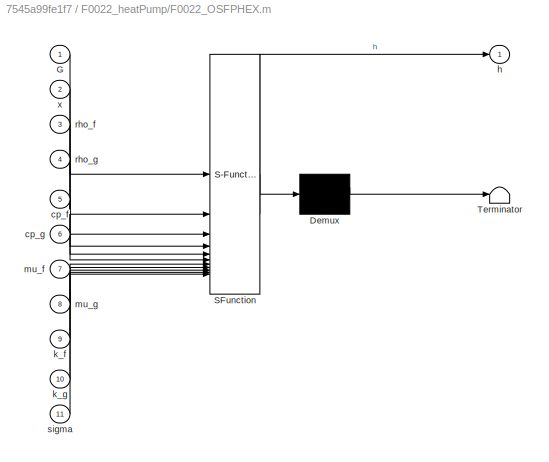
BLOCK [SubSystem] F0022_heatPump/F0022_OSFPHEX.m
  ErrorFcn = Stateflow.Translate.translate
  LibrarySourceBlock = simulink/User-Defined\nFunctions/MATLAB Function
  PermitHierarchicalResolution = ExplicitOnly
  SFBlockType = MATLAB Function
  TreatAsAtomicUnit = on
BLOCK [Demux] F0022_heatPump/F0022_OSFPHEX.m/ Demux 
  Outputs = 1
BLOCK [S-Function] F0022_heatPump/F0022_OSFPHEX.m/ SFunction 
  EnableBusSupport = off
  FunctionName = sf_sfun
  Parameters = par
  PortCounts = [11 2]
  SFcnIsStateOwnerBlock = off
  SFunctionDeploymentMode = off
  Tag = Stateflow S-Function 97
BLOCK [Terminator] F0022_heatPump/F0022_OSFPHEX.m/ Terminator 
BLOCK [Inport] F0022_heatPump/F0022_OSFPHEX.m/G
BLOCK [Inport] F0022_heatPump/F0022_OSFPHEX.m/cp_f
  Port = 5
BLOCK [Inport] F0022_heatPump/F0022_OSFPHEX.m/cp_g
  Port = 6
BLOCK [Outport] F0022_heatPump/F0022_OSFPHEX.m/h
BLOCK [Inport] F0022_heatPump/F0022_OSFPHEX.m/k_f
  Port = 9
BLOCK [Inport] F0022_heatPump/F0022_OSFPHEX.m/k_g
  Port = 10
BLOCK [Inport] F0022_heatPump/F0022_OSFPHEX.m/mu_f
  Port = 7
BLOCK [Inport] F0022_heatPump/F0022_OSFPHEX.m/mu_g
  Port = 8
BLOCK [Inport] F0022_heatPump/F0022_OSFPHEX.m/rho_f
  Port = 3
BLOCK [Inport] F0022_heatPump/F0022_OSFPHEX.m/rho_g
  Port = 4
BLOCK [Inport] F0022_heatPump/F0022_OSFPHEX.m/sigma
  Port = 11
BLOCK [Inport] F0022_heatPump/F0022_OSFPHEX.m/x
  Port = 2
BLOCK [SubSystem] F0022_heatPump/F0022_artificialMass.m
  ErrorFcn = Stateflow.Translate.translate
  LibrarySourceBlock = simulink/User-Defined\nFunctions/MATLAB Function
  PermitHierarchicalResolution = ExplicitOnly
  SFBlockType = MATLAB Function
  TreatAsAtomicUnit = on
BLOCK [Demux] F0022_heatPump/F0022_artificialMass.m/ Demux 
  Outputs = 1
BLOCK [S-Function] F0022_heatPump/F0022_artificialMass.m/ SFunction 
  EnableBusSupport = off
  FunctionName = sf_sfun
  Parameters = par
  PortCounts = [1 2]
  SFcnIsStateOwnerBlock = off
  SFunctionDeploymentMode = off
  Tag = Stateflow S-Function 98
BLOCK [Terminator] F0022_heatPump/F0022_artificialMass.m/ Terminator 
BLOCK [Outport] F0022_heatPump/F0022_artificialMass.m/m
BLOCK [Inport] F0022_heatPump/F0022_artificialMass.m/p
BLOCK [SubSystem] F0022_heatPump/F0022_artificialPressure.m
  ErrorFcn = Stateflow.Translate.translate
  LibrarySourceBlock = simulink/User-Defined\nFunctions/MATLAB Function
  PermitHierarchicalResolution = ExplicitOnly
  SFBlockType = MATLAB Function
  TreatAsAtomicUnit = on
BLOCK [Demux] F0022_heatPump/F0022_artificialPressure.m/ Demux 
  Outputs = 1
BLOCK [S-Function] F0022_heatPump/F0022_artificialPressure.m/ SFunction 
  EnableBusSupport = off
  FunctionName = sf_sfun
  Parameters = par
  PortCounts = [1 2]
  SFcnIsStateOwnerBlock = off
  SFunctionDeploymentMode = off
  Tag = Stateflow S-Function 99
BLOCK [Terminator] F0022_heatPump/F0022_artificialPressure.m/ Terminator 
BLOCK [Inport] F0022_heatPump/F0022_artificialPressure.m/m
BLOCK [Outport] F0022_heatPump/F0022_artificialPressure.m/p
BLOCK [SubSystem] F0022_heatPump/F0022_compressor.m
  ErrorFcn = Stateflow.Translate.translate
  LibrarySourceBlock = simulink/User-Defined\nFunctions/MATLAB Function
  PermitHierarchicalResolution = ExplicitOnly
  SFBlockType = MATLAB Function
  TreatAsAtomicUnit = on
BLOCK [Demux] F0022_heatPump/F0022_compressor.m/ Demux 
  Outputs = 1
BLOCK [S-Function] F0022_heatPump/F0022_compressor.m/ SFunction 
  EnableBusSupport = off
  FunctionName = sf_sfun
  Parameters = par
  PortCounts = [6 4]
  SFcnIsStateOwnerBlock = off
  SFunctionDeploymentMode = off
  Tag = Stateflow S-Function 101
BLOCK [Terminator] F0022_heatPump/F0022_compressor.m/ Terminator 
BLOCK [Inport] F0022_heatPump/F0022_compressor.m/N
  Port = 5
BLOCK [Outport] F0022_heatPump/F0022_compressor.m/P_cmp
  Port = 2
BLOCK [Inport] F0022_heatPump/F0022_compressor.m/h_1
  Port = 3
BLOCK [Outport] F0022_heatPump/F0022_compressor.m/h_2
  Port = 3
BLOCK [Inport] F0022_heatPump/F0022_compressor.m/k
  Port = 6
BLOCK [Outport] F0022_heatPump/F0022_compressor.m/m_dot
BLOCK [Inport] F0022_heatPump/F0022_compressor.m/p_1
BLOCK [Inport] F0022_heatPump/F0022_compressor.m/p_2
  Port = 4
BLOCK [Inport] F0022_heatPump/F0022_compressor.m/rho_1
  Port = 2
BLOCK [SubSystem] F0022_heatPump/F0022_coolantSideHTC.m
  ErrorFcn = Stateflow.Translate.translate
  LibrarySourceBlock = simulink/User-Defined\nFunctions/MATLAB Function
  PermitHierarchicalResolution = ExplicitOnly
  SFBlockType = MATLAB Function
  TreatAsAtomicUnit = on
BLOCK [Demux] F0022_heatPump/F0022_coolantSideHTC.m/ Demux 
  Outputs = 1
BLOCK [S-Function] F0022_heatPump/F0022_coolantSideHTC.m/ SFunction 
  EnableBusSupport = off
  FunctionName = sf_sfun
  Parameters = par
  PortCounts = [4 2]
  SFcnIsStateOwnerBlock = off
  SFunctionDeploymentMode = off
  Tag = Stateflow S-Function 102
BLOCK [Terminator] F0022_heatPump/F0022_coolantSideHTC.m/ Terminator 
BLOCK [Inport] F0022_heatPump/F0022_coolantSideHTC.m/G
BLOCK [Inport] F0022_heatPump/F0022_coolantSideHTC.m/cp
  Port = 2
BLOCK [Outport] F0022_heatPump/F0022_coolantSideHTC.m/h
BLOCK [Inport] F0022_heatPump/F0022_coolantSideHTC.m/lam
  Port = 4
BLOCK [Inport] F0022_heatPump/F0022_coolantSideHTC.m/mu
  Port = 3
BLOCK [SubSystem] F0022_heatPump/F0022_expansionValve.m
  ErrorFcn = Stateflow.Translate.translate
  LibrarySourceBlock = simulink/User-Defined\nFunctions/MATLAB Function
  PermitHierarchicalResolution = ExplicitOnly
  SFBlockType = MATLAB Function
  TreatAsAtomicUnit = on
BLOCK [Demux] F0022_heatPump/F0022_expansionValve.m/ Demux 
  Outputs = 1
BLOCK [S-Function] F0022_heatPump/F0022_expansionValve.m/ SFunction 
  EnableBusSupport = off
  FunctionName = sf_sfun
  Parameters = par
  PortCounts = [6 2]
  SFcnIsStateOwnerBlock = off
  SFunctionDeploymentMode = off
  Tag = Stateflow S-Function 103
BLOCK [Terminator] F0022_heatPump/F0022_expansionValve.m/ Terminator 
BLOCK [Inport] F0022_heatPump/F0022_expansionValve.m/T_sat
  Port = 5
BLOCK [Inport] F0022_heatPump/F0022_expansionValve.m/T_us
  Port = 3
BLOCK [Inport] F0022_heatPump/F0022_expansionValve.m/W
BLOCK [Inport] F0022_heatPump/F0022_expansionValve.m/alpha
  Port = 6
BLOCK [Outport] F0022_heatPump/F0022_expansionValve.m/dp
BLOCK [Inport] F0022_heatPump/F0022_expansionValve.m/p_us
  Port = 2
BLOCK [Inport] F0022_heatPump/F0022_expansionValve.m/rho_us
  Port = 4
BLOCK [SubSystem] F0022_heatPump/F0022_filterVLE.m
  ErrorFcn = Stateflow.Translate.translate
  LibrarySourceBlock = simulink/User-Defined\nFunctions/MATLAB Function
  PermitHierarchicalResolution = ExplicitOnly
  SFBlockType = MATLAB Function
  TreatAsAtomicUnit = on
BLOCK [Demux] F0022_heatPump/F0022_filterVLE.m/ Demux 
  Outputs = 1
BLOCK [S-Function] F0022_heatPump/F0022_filterVLE.m/ SFunction 
  EnableBusSupport = off
  FunctionName = sf_sfun
  PortCounts = [4 2]
  SFcnIsStateOwnerBlock = off
  SFunctionDeploymentMode = off
  Tag = Stateflow S-Function 104
BLOCK [Terminator] F0022_heatPump/F0022_filterVLE.m/ Terminator 
BLOCK [Outport] F0022_heatPump/F0022_filterVLE.m/B
BLOCK [Inport] F0022_heatPump/F0022_filterVLE.m/B 
BLOCK [Inport] F0022_heatPump/F0022_filterVLE.m/B_liq
  Port = 2
BLOCK [Inport] F0022_heatPump/F0022_filterVLE.m/B_vap
  Port = 3
BLOCK [Inport] F0022_heatPump/F0022_filterVLE.m/x
  Port = 4
BLOCK [SubSystem] F0022_heatPump/F0022_frictionTwoPhaseMultipliers.m
  ErrorFcn = Stateflow.Translate.translate
  LibrarySourceBlock = simulink/User-Defined\nFunctions/MATLAB Function
  PermitHierarchicalResolution = ExplicitOnly
  SFBlockType = MATLAB Function
  TreatAsAtomicUnit = on
BLOCK [Demux] F0022_heatPump/F0022_frictionTwoPhaseMultipliers.m/ Demux 
  Outputs = 1
BLOCK [S-Function] F0022_heatPump/F0022_frictionTwoPhaseMultipliers.m/ SFunction 
  EnableBusSupport = off
  FunctionName = sf_sfun
  PortCounts = [2 3]
  SFcnIsStateOwnerBlock = off
  SFunctionDeploymentMode = off
  Tag = Stateflow S-Function 105
BLOCK [Terminator] F0022_heatPump/F0022_frictionTwoPhaseMultipliers.m/ Terminator 
BLOCK [Outport] F0022_heatPump/F0022_frictionTwoPhaseMultipliers.m/Phi_Gtt
  Port = 2
BLOCK [Outport] F0022_heatPump/F0022_frictionTwoPhaseMultipliers.m/Phi_Ltt
BLOCK [Inport] F0022_heatPump/F0022_frictionTwoPhaseMultipliers.m/Re
  Port = 2
BLOCK [Inport] F0022_heatPump/F0022_frictionTwoPhaseMultipliers.m/X_tt
BLOCK [SubSystem] F0022_heatPump/F0022_homogeneousDensity.m
  ErrorFcn = Stateflow.Translate.translate
  LibrarySourceBlock = simulink/User-Defined\nFunctions/MATLAB Function
  PermitHierarchicalResolution = ExplicitOnly
  SFBlockType = MATLAB Function
  TreatAsAtomicUnit = on
BLOCK [Demux] F0022_heatPump/F0022_homogeneousDensity.m/ Demux 
  Outputs = 1
BLOCK [S-Function] F0022_heatPump/F0022_homogeneousDensity.m/ SFunction 
  EnableBusSupport = off
  FunctionName = sf_sfun
  PortCounts = [3 2]
  SFcnIsStateOwnerBlock = off
  SFunctionDeploymentMode = off
  Tag = Stateflow S-Function 106
BLOCK [Terminator] F0022_heatPump/F0022_homogeneousDensity.m/ Terminator 
BLOCK [Outport] F0022_heatPump/F0022_homogeneousDensity.m/rho_H
BLOCK [Inport] F0022_heatPump/F0022_homogeneousDensity.m/rho_f
  Port = 2
BLOCK [Inport] F0022_heatPump/F0022_homogeneousDensity.m/rho_g
  Port = 3
BLOCK [Inport] F0022_heatPump/F0022_homogeneousDensity.m/x
BLOCK [SubSystem] F0022_heatPump/F0022_homogeneousVoidFraction.m
  ErrorFcn = Stateflow.Translate.translate
  LibrarySourceBlock = simulink/User-Defined\nFunctions/MATLAB Function
  PermitHierarchicalResolution = ExplicitOnly
  SFBlockType = MATLAB Function
  TreatAsAtomicUnit = on
BLOCK [Demux] F0022_heatPump/F0022_homogeneousVoidFraction.m/ Demux 
  Outputs = 1
BLOCK [S-Function] F0022_heatPump/F0022_homogeneousVoidFraction.m/ SFunction 
  EnableBusSupport = off
  FunctionName = sf_sfun
  PortCounts = [3 2]
  SFcnIsStateOwnerBlock = off
  SFunctionDeploymentMode = off
  Tag = Stateflow S-Function 107
BLOCK [Terminator] F0022_heatPump/F0022_homogeneousVoidFraction.m/ Terminator 
BLOCK [Outport] F0022_heatPump/F0022_homogeneousVoidFraction.m/e
BLOCK [Inport] F0022_heatPump/F0022_homogeneousVoidFraction.m/rho_liq
  Port = 2
BLOCK [Inport] F0022_heatPump/F0022_homogeneousVoidFraction.m/rho_vap
  Port = 3
BLOCK [Inport] F0022_heatPump/F0022_homogeneousVoidFraction.m/x
BLOCK [SubSystem] F0022_heatPump/F0022_incompressibleRestriction.m
  ErrorFcn = Stateflow.Translate.translate
  LibrarySourceBlock = simulink/User-Defined\nFunctions/MATLAB Function
  PermitHierarchicalResolution = ExplicitOnly
  SFBlockType = MATLAB Function
  TreatAsAtomicUnit = on
BLOCK [Demux] F0022_heatPump/F0022_incompressibleRestriction.m/ Demux 
  Outputs = 1
BLOCK [S-Function] F0022_heatPump/F0022_incompressibleRestriction.m/ SFunction 
  EnableBusSupport = off
  FunctionName = sf_sfun
  Parameters = par
  PortCounts = [3 2]
  SFcnIsStateOwnerBlock = off
  SFunctionDeploymentMode = off
  Tag = Stateflow S-Function 108
BLOCK [Terminator] F0022_heatPump/F0022_incompressibleRestriction.m/ Terminator 
BLOCK [Inport] F0022_heatPump/F0022_incompressibleRestriction.m/W
BLOCK [Outport] F0022_heatPump/F0022_incompressibleRestriction.m/dp
BLOCK [Inport] F0022_heatPump/F0022_incompressibleRestriction.m/dr
  Port = 2
BLOCK [Inport] F0022_heatPump/F0022_incompressibleRestriction.m/rho
  Port = 3
BLOCK [SubSystem] F0022_heatPump/F0022_louverFinHTC.m
  ErrorFcn = Stateflow.Translate.translate
  LibrarySourceBlock = simulink/User-Defined\nFunctions/MATLAB Function
  PermitHierarchicalResolution = ExplicitOnly
  SFBlockType = MATLAB Function
  TreatAsAtomicUnit = on
BLOCK [Demux] F0022_heatPump/F0022_louverFinHTC.m/ Demux 
  Outputs = 1
BLOCK [S-Function] F0022_heatPump/F0022_louverFinHTC.m/ SFunction 
  EnableBusSupport = off
  FunctionName = sf_sfun
  Parameters = par
  PortCounts = [1 2]
  SFcnIsStateOwnerBlock = off
  SFunctionDeploymentMode = off
  Tag = Stateflow S-Function 112
BLOCK [Terminator] F0022_heatPump/F0022_louverFinHTC.m/ Terminator 
BLOCK [Outport] F0022_heatPump/F0022_louverFinHTC.m/h
BLOCK [Inport] F0022_heatPump/F0022_louverFinHTC.m/u
BLOCK [SubSystem] F0022_heatPump/F0022_louverSurfaceEffectiveness.m
  ErrorFcn = Stateflow.Translate.translate
  LibrarySourceBlock = simulink/User-Defined\nFunctions/MATLAB Function
  PermitHierarchicalResolution = ExplicitOnly
  SFBlockType = MATLAB Function
  TreatAsAtomicUnit = on
BLOCK [Demux] F0022_heatPump/F0022_louverSurfaceEffectiveness.m/ Demux 
  Outputs = 1
BLOCK [S-Function] F0022_heatPump/F0022_louverSurfaceEffectiveness.m/ SFunction 
  EnableBusSupport = off
  FunctionName = sf_sfun
  Parameters = par
  PortCounts = [1 2]
  SFcnIsStateOwnerBlock = off
  SFunctionDeploymentMode = off
  Tag = Stateflow S-Function 113
BLOCK [Terminator] F0022_heatPump/F0022_louverSurfaceEffectiveness.m/ Terminator 
BLOCK [Outport] F0022_heatPump/F0022_louverSurfaceEffectiveness.m/eta
BLOCK [Inport] F0022_heatPump/F0022_louverSurfaceEffectiveness.m/h
BLOCK [SubSystem] F0022_heatPump/F0022_massFlux.m
  ErrorFcn = Stateflow.Translate.translate
  LibrarySourceBlock = simulink/User-Defined\nFunctions/MATLAB Function
  PermitHierarchicalResolution = ExplicitOnly
  SFBlockType = MATLAB Function
  TreatAsAtomicUnit = on
BLOCK [Demux] F0022_heatPump/F0022_massFlux.m/ Demux 
  Outputs = 1
BLOCK [S-Function] F0022_heatPump/F0022_massFlux.m/ SFunction 
  EnableBusSupport = off
  FunctionName = sf_sfun
  Parameters = par
  PortCounts = [1 2]
  SFcnIsStateOwnerBlock = off
  SFunctionDeploymentMode = off
  Tag = Stateflow S-Function 115
BLOCK [Terminator] F0022_heatPump/F0022_massFlux.m/ Terminator 
BLOCK [Outport] F0022_heatPump/F0022_massFlux.m/G
BLOCK [Inport] F0022_heatPump/F0022_massFlux.m/W
BLOCK [SubSystem] F0022_heatPump/F0022_maximumHeatTransfer.m
  ErrorFcn = Stateflow.Translate.translate
  LibrarySourceBlock = simulink/User-Defined\nFunctions/MATLAB Function
  PermitHierarchicalResolution = ExplicitOnly
  SFBlockType = MATLAB Function
  TreatAsAtomicUnit = on
BLOCK [Demux] F0022_heatPump/F0022_maximumHeatTransfer.m/ Demux 
  Outputs = 1
BLOCK [S-Function] F0022_heatPump/F0022_maximumHeatTransfer.m/ SFunction 
  EnableBusSupport = off
  FunctionName = sf_sfun
  PortCounts = [8 2]
  SFcnIsStateOwnerBlock = off
  SFunctionDeploymentMode = off
  Tag = Stateflow S-Function 116
BLOCK [Terminator] F0022_heatPump/F0022_maximumHeatTransfer.m/ Terminator 
BLOCK [Outport] F0022_heatPump/F0022_maximumHeatTransfer.m/Q_rmax
BLOCK [Inport] F0022_heatPump/F0022_maximumHeatTransfer.m/T_s
  Port = 8
BLOCK [Inport] F0022_heatPump/F0022_maximumHeatTransfer.m/T_sat
  Port = 7
BLOCK [Inport] F0022_heatPump/F0022_maximumHeatTransfer.m/W_r
BLOCK [Inport] F0022_heatPump/F0022_maximumHeatTransfer.m/cp_f
  Port = 3
BLOCK [Inport] F0022_heatPump/F0022_maximumHeatTransfer.m/cp_g
  Port = 4
BLOCK [Inport] F0022_heatPump/F0022_maximumHeatTransfer.m/h_f
  Port = 5
BLOCK [Inport] F0022_heatPump/F0022_maximumHeatTransfer.m/h_g
  Port = 6
BLOCK [Inport] F0022_heatPump/F0022_maximumHeatTransfer.m/h_r
  Port = 2
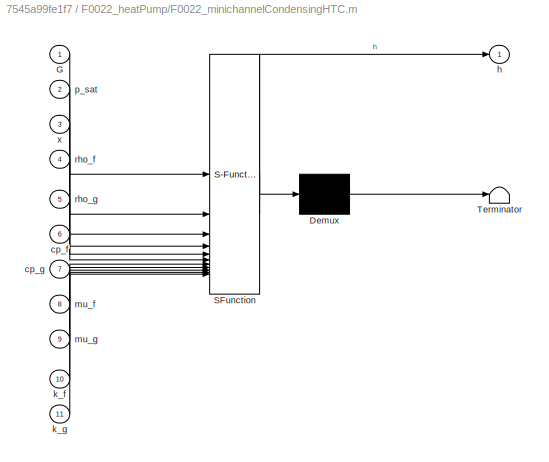
BLOCK [SubSystem] F0022_heatPump/F0022_minichannelCondensingHTC.m
  ErrorFcn = Stateflow.Translate.translate
  LibrarySourceBlock = simulink/User-Defined\nFunctions/MATLAB Function
  PermitHierarchicalResolution = ExplicitOnly
  SFBlockType = MATLAB Function
  TreatAsAtomicUnit = on
BLOCK [Demux] F0022_heatPump/F0022_minichannelCondensingHTC.m/ Demux 
  Outputs = 1
BLOCK [S-Function] F0022_heatPump/F0022_minichannelCondensingHTC.m/ SFunction 
  EnableBusSupport = off
  FunctionName = sf_sfun
  Parameters = par
  PortCounts = [11 2]
  SFcnIsStateOwnerBlock = off
  SFunctionDeploymentMode = off
  Tag = Stateflow S-Function 117
BLOCK [Terminator] F0022_heatPump/F0022_minichannelCondensingHTC.m/ Terminator 
BLOCK [Inport] F0022_heatPump/F0022_minichannelCondensingHTC.m/G
BLOCK [Inport] F0022_heatPump/F0022_minichannelCondensingHTC.m/cp_f
  Port = 6
BLOCK [Inport] F0022_heatPump/F0022_minichannelCondensingHTC.m/cp_g
  Port = 7
BLOCK [Outport] F0022_heatPump/F0022_minichannelCondensingHTC.m/h
BLOCK [Inport] F0022_heatPump/F0022_minichannelCondensingHTC.m/k_f
  Port = 10
BLOCK [Inport] F0022_heatPump/F0022_minichannelCondensingHTC.m/k_g
  Port = 11
BLOCK [Inport] F0022_heatPump/F0022_minichannelCondensingHTC.m/mu_f
  Port = 8
BLOCK [Inport] F0022_heatPump/F0022_minichannelCondensingHTC.m/mu_g
  Port = 9
BLOCK [Inport] F0022_heatPump/F0022_minichannelCondensingHTC.m/p_sat
  Port = 2
BLOCK [Inport] F0022_heatPump/F0022_minichannelCondensingHTC.m/rho_f
  Port = 4
BLOCK [Inport] F0022_heatPump/F0022_minichannelCondensingHTC.m/rho_g
  Port = 5
BLOCK [Inport] F0022_heatPump/F0022_minichannelCondensingHTC.m/x
  Port = 3
BLOCK [SubSystem] F0022_heatPump/F0022_simpleExpansionValve.m
  ErrorFcn = Stateflow.Translate.translate
  LibrarySourceBlock = simulink/User-Defined\nFunctions/MATLAB Function
  PermitHierarchicalResolution = ExplicitOnly
  SFBlockType = MATLAB Function
  TreatAsAtomicUnit = on
BLOCK [Demux] F0022_heatPump/F0022_simpleExpansionValve.m/ Demux 
  Outputs = 1
BLOCK [S-Function] F0022_heatPump/F0022_simpleExpansionValve.m/ SFunction 
  EnableBusSupport = off
  FunctionName = sf_sfun
  Parameters = par
  PortCounts = [3 2]
  SFcnIsStateOwnerBlock = off
  SFunctionDeploymentMode = off
  Tag = Stateflow S-Function 118
BLOCK [Terminator] F0022_heatPump/F0022_simpleExpansionValve.m/ Terminator 
BLOCK [Inport] F0022_heatPump/F0022_simpleExpansionValve.m/W
BLOCK [Inport] F0022_heatPump/F0022_simpleExpansionValve.m/alpha
  Port = 3
BLOCK [Outport] F0022_heatPump/F0022_simpleExpansionValve.m/dp
BLOCK [Inport] F0022_heatPump/F0022_simpleExpansionValve.m/rho_us
  Port = 2
BLOCK [SubSystem] F0022_heatPump/F0022_smoothTubePressureDrop.m
  ErrorFcn = Stateflow.Translate.translate
  LibrarySourceBlock = simulink/User-Defined\nFunctions/MATLAB Function
  PermitHierarchicalResolution = ExplicitOnly
  SFBlockType = MATLAB Function
  TreatAsAtomicUnit = on
BLOCK [Demux] F0022_heatPump/F0022_smoothTubePressureDrop.m/ Demux 
  Outputs = 1
BLOCK [S-Function] F0022_heatPump/F0022_smoothTubePressureDrop.m/ SFunction 
  EnableBusSupport = off
  FunctionName = sf_sfun
  Parameters = par
  PortCounts = [7 2]
  SFcnIsStateOwnerBlock = off
  SFunctionDeploymentMode = off
  Tag = Stateflow S-Function 133
BLOCK [Terminator] F0022_heatPump/F0022_smoothTubePressureDrop.m/ Terminator 
BLOCK [Inport] F0022_heatPump/F0022_smoothTubePressureDrop.m/W
BLOCK [Outport] F0022_heatPump/F0022_smoothTubePressureDrop.m/dp
BLOCK [Inport] F0022_heatPump/F0022_smoothTubePressureDrop.m/mu_f
  Port = 5
BLOCK [Inport] F0022_heatPump/F0022_smoothTubePressureDrop.m/mu_g
  Port = 6
BLOCK [Inport] F0022_heatPump/F0022_smoothTubePressureDrop.m/rho_f
  Port = 3
BLOCK [Inport] F0022_heatPump/F0022_smoothTubePressureDrop.m/rho_g
  Port = 4
BLOCK [Inport] F0022_heatPump/F0022_smoothTubePressureDrop.m/sigma
  Port = 7
BLOCK [Inport] F0022_heatPump/F0022_smoothTubePressureDrop.m/x
  Port = 2
BLOCK [SubSystem] F0022_heatPump/F0022_switchVLE.m
  ErrorFcn = Stateflow.Translate.translate
  LibrarySourceBlock = simulink/User-Defined\nFunctions/MATLAB Function
  PermitHierarchicalResolution = ExplicitOnly
  SFBlockType = MATLAB Function
  TreatAsAtomicUnit = on
BLOCK [Demux] F0022_heatPump/F0022_switchVLE.m/ Demux 
  Outputs = 1
BLOCK [S-Function] F0022_heatPump/F0022_switchVLE.m/ SFunction 
  EnableBusSupport = off
  FunctionName = sf_sfun
  PortCounts = [1 2]
  SFcnIsStateOwnerBlock = off
  SFunctionDeploymentMode = off
  Tag = Stateflow S-Function 134
BLOCK [Terminator] F0022_heatPump/F0022_switchVLE.m/ Terminator 
BLOCK [Inport] F0022_heatPump/F0022_switchVLE.m/x
BLOCK [Outport] F0022_heatPump/F0022_switchVLE.m/y
BLOCK [SubSystem] F0022_heatPump/F0022_vaporFraction.m
  ErrorFcn = Stateflow.Translate.translate
  LibrarySourceBlock = simulink/User-Defined\nFunctions/MATLAB Function
  PermitHierarchicalResolution = ExplicitOnly
  SFBlockType = MATLAB Function
  TreatAsAtomicUnit = on
BLOCK [Demux] F0022_heatPump/F0022_vaporFraction.m/ Demux 
  Outputs = 1
BLOCK [S-Function] F0022_heatPump/F0022_vaporFraction.m/ SFunction 
  EnableBusSupport = off
  FunctionName = sf_sfun
  PortCounts = [3 2]
  SFcnIsStateOwnerBlock = off
  SFunctionDeploymentMode = off
  Tag = Stateflow S-Function 135
BLOCK [Terminator] F0022_heatPump/F0022_vaporFraction.m/ Terminator 
BLOCK [Inport] F0022_heatPump/F0022_vaporFraction.m/B
BLOCK [Inport] F0022_heatPump/F0022_vaporFraction.m/B_liq
  Port = 2
BLOCK [Inport] F0022_heatPump/F0022_vaporFraction.m/B_vap
  Port = 3
BLOCK [Outport] F0022_heatPump/F0022_vaporFraction.m/x
BLOCK [SubSystem] F0023_epirocWaterPump
BLOCK [SubSystem] F0023_epirocWaterPump/F0023_current.m
  ErrorFcn = Stateflow.Translate.translate
  LibrarySourceBlock = simulink/User-Defined\nFunctions/MATLAB Function
  PermitHierarchicalResolution = ExplicitOnly
  SFBlockType = MATLAB Function
  TreatAsAtomicUnit = on
BLOCK [Demux] F0023_epirocWaterPump/F0023_current.m/ Demux 
  Outputs = 1
BLOCK [S-Function] F0023_epirocWaterPump/F0023_current.m/ SFunction 
  EnableBusSupport = off
  FunctionName = sf_sfun
  PortCounts = [2 2]
  SFcnIsStateOwnerBlock = off
  SFunctionDeploymentMode = off
  Tag = Stateflow S-Function 119
BLOCK [Terminator] F0023_epirocWaterPump/F0023_current.m/ Terminator 
BLOCK [Outport] F0023_epirocWaterPump/F0023_current.m/I
BLOCK [Inport] F0023_epirocWaterPump/F0023_current.m/V
  Port = 2
BLOCK [Inport] F0023_epirocWaterPump/F0023_current.m/q
BLOCK [SubSystem] F0023_epirocWaterPump/F0023_pressure.m
  ErrorFcn = Stateflow.Translate.translate
  LibrarySourceBlock = simulink/User-Defined\nFunctions/MATLAB Function
  PermitHierarchicalResolution = ExplicitOnly
  SFBlockType = MATLAB Function
  TreatAsAtomicUnit = on
BLOCK [Demux] F0023_epirocWaterPump/F0023_pressure.m/ Demux 
  Outputs = 1
BLOCK [S-Function] F0023_epirocWaterPump/F0023_pressure.m/ SFunction 
  EnableBusSupport = off
  FunctionName = sf_sfun
  PortCounts = [2 2]
  SFcnIsStateOwnerBlock = off
  SFunctionDeploymentMode = off
  Tag = Stateflow S-Function 120
BLOCK [Terminator] F0023_epirocWaterPump/F0023_pressure.m/ Terminator 
BLOCK [Inport] F0023_epirocWaterPump/F0023_pressure.m/V
  Port = 2
BLOCK [Outport] F0023_epirocWaterPump/F0023_pressure.m/dp
BLOCK [Inport] F0023_epirocWaterPump/F0023_pressure.m/q
BLOCK [SubSystem] F0023_epirocWaterPump/F0023_speed.m
  ErrorFcn = Stateflow.Translate.translate
  LibrarySourceBlock = simulink/User-Defined\nFunctions/MATLAB Function
  PermitHierarchicalResolution = ExplicitOnly
  SFBlockType = MATLAB Function
  TreatAsAtomicUnit = on
BLOCK [Demux] F0023_epirocWaterPump/F0023_speed.m/ Demux 
  Outputs = 1
BLOCK [S-Function] F0023_epirocWaterPump/F0023_speed.m/ SFunction 
  EnableBusSupport = off
  FunctionName = sf_sfun
  PortCounts = [2 2]
  SFcnIsStateOwnerBlock = off
  SFunctionDeploymentMode = off
  Tag = Stateflow S-Function 122
BLOCK [Terminator] F0023_epirocWaterPump/F0023_speed.m/ Terminator 
BLOCK [Inport] F0023_epirocWaterPump/F0023_speed.m/V
  Port = 2
BLOCK [Inport] F0023_epirocWaterPump/F0023_speed.m/q
BLOCK [Outport] F0023_epirocWaterPump/F0023_speed.m/w
BLOCK [SubSystem] F0024_WPpumps
BLOCK [SubSystem] F0024_WPpumps/F0024_powerWP120.m
  ErrorFcn = Stateflow.Translate.translate
  LibrarySourceBlock = simulink/User-Defined\nFunctions/MATLAB Function
  PermitHierarchicalResolution = ExplicitOnly
  SFBlockType = MATLAB Function
  TreatAsAtomicUnit = on
BLOCK [Demux] F0024_WPpumps/F0024_powerWP120.m/ Demux 
  Outputs = 1
BLOCK [S-Function] F0024_WPpumps/F0024_powerWP120.m/ SFunction 
  EnableBusSupport = off
  FunctionName = sf_sfun
  PortCounts = [2 2]
  SFcnIsStateOwnerBlock = off
  SFunctionDeploymentMode = off
  Tag = Stateflow S-Function 123
BLOCK [Terminator] F0024_WPpumps/F0024_powerWP120.m/ Terminator 
BLOCK [Outport] F0024_WPpumps/F0024_powerWP120.m/P
BLOCK [Inport] F0024_WPpumps/F0024_powerWP120.m/n
  Port = 2
BLOCK [Inport] F0024_WPpumps/F0024_powerWP120.m/q
BLOCK [SubSystem] F0024_WPpumps/F0024_powerWP150.m
  ErrorFcn = Stateflow.Translate.translate
  LibrarySourceBlock = simulink/User-Defined\nFunctions/MATLAB Function
  PermitHierarchicalResolution = ExplicitOnly
  SFBlockType = MATLAB Function
  TreatAsAtomicUnit = on
BLOCK [Demux] F0024_WPpumps/F0024_powerWP150.m/ Demux 
  Outputs = 1
BLOCK [S-Function] F0024_WPpumps/F0024_powerWP150.m/ SFunction 
  EnableBusSupport = off
  FunctionName = sf_sfun
  PortCounts = [2 2]
  SFcnIsStateOwnerBlock = off
  SFunctionDeploymentMode = off
  Tag = Stateflow S-Function 124
BLOCK [Terminator] F0024_WPpumps/F0024_powerWP150.m/ Terminator 
BLOCK [Outport] F0024_WPpumps/F0024_powerWP150.m/P
BLOCK [Inport] F0024_WPpumps/F0024_powerWP150.m/n
  Port = 2
BLOCK [Inport] F0024_WPpumps/F0024_powerWP150.m/q
BLOCK [SubSystem] F0024_WPpumps/F0024_pressureWP120.m
  ErrorFcn = Stateflow.Translate.translate
  LibrarySourceBlock = simulink/User-Defined\nFunctions/MATLAB Function
  PermitHierarchicalResolution = ExplicitOnly
  SFBlockType = MATLAB Function
  TreatAsAtomicUnit = on
BLOCK [Demux] F0024_WPpumps/F0024_pressureWP120.m/ Demux 
  Outputs = 1
BLOCK [S-Function] F0024_WPpumps/F0024_pressureWP120.m/ SFunction 
  EnableBusSupport = off
  FunctionName = sf_sfun
  PortCounts = [2 2]
  SFcnIsStateOwnerBlock = off
  SFunctionDeploymentMode = off
  Tag = Stateflow S-Function 125
BLOCK [Terminator] F0024_WPpumps/F0024_pressureWP120.m/ Terminator 
BLOCK [Outport] F0024_WPpumps/F0024_pressureWP120.m/dp
BLOCK [Inport] F0024_WPpumps/F0024_pressureWP120.m/n
  Port = 2
BLOCK [Inport] F0024_WPpumps/F0024_pressureWP120.m/q
BLOCK [SubSystem] F0024_WPpumps/F0024_pressureWP150.m
  ErrorFcn = Stateflow.Translate.translate
  LibrarySourceBlock = simulink/User-Defined\nFunctions/MATLAB Function
  PermitHierarchicalResolution = ExplicitOnly
  SFBlockType = MATLAB Function
  TreatAsAtomicUnit = on
BLOCK [Demux] F0024_WPpumps/F0024_pressureWP150.m/ Demux 
  Outputs = 1
BLOCK [S-Function] F0024_WPpumps/F0024_pressureWP150.m/ SFunction 
  EnableBusSupport = off
  FunctionName = sf_sfun
  PortCounts = [2 2]
  SFcnIsStateOwnerBlock = off
  SFunctionDeploymentMode = off
  Tag = Stateflow S-Function 126
BLOCK [Terminator] F0024_WPpumps/F0024_pressureWP150.m/ Terminator 
BLOCK [Outport] F0024_WPpumps/F0024_pressureWP150.m/dp
BLOCK [Inport] F0024_WPpumps/F0024_pressureWP150.m/n
  Port = 2
BLOCK [Inport] F0024_WPpumps/F0024_pressureWP150.m/q
BLOCK [SubSystem] F0025_spalFans
BLOCK [SubSystem] F0025_spalFans/F0025_powerVA113.m
  ErrorFcn = Stateflow.Translate.translate
  LibrarySourceBlock = simulink/User-Defined\nFunctions/MATLAB Function
  PermitHierarchicalResolution = ExplicitOnly
  SFBlockType = MATLAB Function
  TreatAsAtomicUnit = on
BLOCK [Demux] F0025_spalFans/F0025_powerVA113.m/ Demux 
  Outputs = 1
BLOCK [S-Function] F0025_spalFans/F0025_powerVA113.m/ SFunction 
  EnableBusSupport = off
  FunctionName = sf_sfun
  PortCounts = [2 2]
  SFcnIsStateOwnerBlock = off
  SFunctionDeploymentMode = off
  Tag = Stateflow S-Function 127
BLOCK [Terminator] F0025_spalFans/F0025_powerVA113.m/ Terminator 
BLOCK [Outport] F0025_spalFans/F0025_powerVA113.m/P
BLOCK [Inport] F0025_spalFans/F0025_powerVA113.m/n
  Port = 2
BLOCK [Inport] F0025_spalFans/F0025_powerVA113.m/q
BLOCK [SubSystem] F0025_spalFans/F0025_powerVA164A.m
  ErrorFcn = Stateflow.Translate.translate
  LibrarySourceBlock = simulink/User-Defined\nFunctions/MATLAB Function
  PermitHierarchicalResolution = ExplicitOnly
  SFBlockType = MATLAB Function
  TreatAsAtomicUnit = on
BLOCK [Demux] F0025_spalFans/F0025_powerVA164A.m/ Demux 
  Outputs = 1
BLOCK [S-Function] F0025_spalFans/F0025_powerVA164A.m/ SFunction 
  EnableBusSupport = off
  FunctionName = sf_sfun
  PortCounts = [2 2]
  SFcnIsStateOwnerBlock = off
  SFunctionDeploymentMode = off
  Tag = Stateflow S-Function 128
BLOCK [Terminator] F0025_spalFans/F0025_powerVA164A.m/ Terminator 
BLOCK [Outport] F0025_spalFans/F0025_powerVA164A.m/P
BLOCK [Inport] F0025_spalFans/F0025_powerVA164A.m/n
  Port = 2
BLOCK [Inport] F0025_spalFans/F0025_powerVA164A.m/q
BLOCK [SubSystem] F0025_spalFans/F0025_powerVA195.m
  ErrorFcn = Stateflow.Translate.translate
  LibrarySourceBlock = simulink/User-Defined\nFunctions/MATLAB Function
  PermitHierarchicalResolution = ExplicitOnly
  SFBlockType = MATLAB Function
  TreatAsAtomicUnit = on
BLOCK [Demux] F0025_spalFans/F0025_powerVA195.m/ Demux 
  Outputs = 1
BLOCK [S-Function] F0025_spalFans/F0025_powerVA195.m/ SFunction 
  EnableBusSupport = off
  FunctionName = sf_sfun
  PortCounts = [2 2]
  SFcnIsStateOwnerBlock = off
  SFunctionDeploymentMode = off
  Tag = Stateflow S-Function 130
BLOCK [Terminator] F0025_spalFans/F0025_powerVA195.m/ Terminator 
BLOCK [Outport] F0025_spalFans/F0025_powerVA195.m/P
BLOCK [Inport] F0025_spalFans/F0025_powerVA195.m/n
  Port = 2
BLOCK [Inport] F0025_spalFans/F0025_powerVA195.m/q
BLOCK [SubSystem] F0025_spalFans/F0025_pressureVA113.m
  ErrorFcn = Stateflow.Translate.translate
  LibrarySourceBlock = simulink/User-Defined\nFunctions/MATLAB Function
  PermitHierarchicalResolution = ExplicitOnly
  SFBlockType = MATLAB Function
  TreatAsAtomicUnit = on
BLOCK [Demux] F0025_spalFans/F0025_pressureVA113.m/ Demux 
  Outputs = 1
BLOCK [S-Function] F0025_spalFans/F0025_pressureVA113.m/ SFunction 
  EnableBusSupport = off
  FunctionName = sf_sfun
  PortCounts = [2 2]
  SFcnIsStateOwnerBlock = off
  SFunctionDeploymentMode = off
  Tag = Stateflow S-Function 131
BLOCK [Terminator] F0025_spalFans/F0025_pressureVA113.m/ Terminator 
BLOCK [Outport] F0025_spalFans/F0025_pressureVA113.m/dp
BLOCK [Inport] F0025_spalFans/F0025_pressureVA113.m/n
  Port = 2
BLOCK [Inport] F0025_spalFans/F0025_pressureVA113.m/q
BLOCK [SubSystem] F0025_spalFans/F0025_pressureVA164A.m
  ErrorFcn = Stateflow.Translate.translate
  LibrarySourceBlock = simulink/User-Defined\nFunctions/MATLAB Function
  PermitHierarchicalResolution = ExplicitOnly
  SFBlockType = MATLAB Function
  TreatAsAtomicUnit = on
BLOCK [Demux] F0025_spalFans/F0025_pressureVA164A.m/ Demux 
  Outputs = 1
BLOCK [S-Function] F0025_spalFans/F0025_pressureVA164A.m/ SFunction 
  EnableBusSupport = off
  FunctionName = sf_sfun
  PortCounts = [2 2]
  SFcnIsStateOwnerBlock = off
  SFunctionDeploymentMode = off
  Tag = Stateflow S-Function 139
BLOCK [Terminator] F0025_spalFans/F0025_pressureVA164A.m/ Terminator 
BLOCK [Outport] F0025_spalFans/F0025_pressureVA164A.m/dp
BLOCK [Inport] F0025_spalFans/F0025_pressureVA164A.m/n
  Port = 2
BLOCK [Inport] F0025_spalFans/F0025_pressureVA164A.m/q
BLOCK [SubSystem] F0025_spalFans/F0025_pressureVA195.m
  ErrorFcn = Stateflow.Translate.translate
  LibrarySourceBlock = simulink/User-Defined\nFunctions/MATLAB Function
  PermitHierarchicalResolution = ExplicitOnly
  SFBlockType = MATLAB Function
  TreatAsAtomicUnit = on
BLOCK [Demux] F0025_spalFans/F0025_pressureVA195.m/ Demux 
  Outputs = 1
BLOCK [S-Function] F0025_spalFans/F0025_pressureVA195.m/ SFunction 
  EnableBusSupport = off
  FunctionName = sf_sfun
  PortCounts = [2 2]
  SFcnIsStateOwnerBlock = off
  SFunctionDeploymentMode = off
  Tag = Stateflow S-Function 140
BLOCK [Terminator] F0025_spalFans/F0025_pressureVA195.m/ Terminator 
BLOCK [Outport] F0025_spalFans/F0025_pressureVA195.m/dp
BLOCK [Inport] F0025_spalFans/F0025_pressureVA195.m/n
  Port = 2
BLOCK [Inport] F0025_spalFans/F0025_pressureVA195.m/q
BLOCK [SubSystem] F0026_turbine
BLOCK [SubSystem] F0026_turbine/F0026_turbine.m
  ErrorFcn = Stateflow.Translate.translate
  LibrarySourceBlock = simulink/User-Defined\nFunctions/MATLAB Function
  PermitHierarchicalResolution = ExplicitOnly
  SFBlockType = MATLAB Function
  TreatAsAtomicUnit = on
BLOCK [Demux] F0026_turbine/F0026_turbine.m/ Demux 
  Outputs = 1
BLOCK [S-Function] F0026_turbine/F0026_turbine.m/ SFunction 
  EnableBusSupport = off
  FunctionName = sf_sfun
  Parameters = par
  PortCounts = [5 4]
  SFcnIsStateOwnerBlock = off
  SFunctionDeploymentMode = off
  Tag = Stateflow S-Function 141
BLOCK [Terminator] F0026_turbine/F0026_turbine.m/ Terminator 
BLOCK [Inport] F0026_turbine/F0026_turbine.m/N
  Port = 5
BLOCK [Outport] F0026_turbine/F0026_turbine.m/P
BLOCK [Inport] F0026_turbine/F0026_turbine.m/T3
  Port = 4
BLOCK [Outport] F0026_turbine/F0026_turbine.m/T4
  Port = 3
BLOCK [Inport] F0026_turbine/F0026_turbine.m/W
BLOCK [Outport] F0026_turbine/F0026_turbine.m/eta
  Port = 2
BLOCK [Inport] F0026_turbine/F0026_turbine.m/p3
  Port = 2
BLOCK [Inport] F0026_turbine/F0026_turbine.m/p4
  Port = 3
BLOCK [SubSystem] F0027_humidgas
BLOCK [SubSystem] F0027_humidgas/F0027_hydrogenProperties.m
  ErrorFcn = Stateflow.Translate.translate
  LibrarySourceBlock = simulink/User-Defined\nFunctions/MATLAB Function
  PermitHierarchicalResolution = ExplicitOnly
  SFBlockType = MATLAB Function
  TreatAsAtomicUnit = on
BLOCK [Demux] F0027_humidgas/F0027_hydrogenProperties.m/ Demux 
  Outputs = 1
BLOCK [S-Function] F0027_humidgas/F0027_hydrogenProperties.m/ SFunction 
  EnableBusSupport = off
  FunctionName = sf_sfun
  PortCounts = [2 4]
  SFcnIsStateOwnerBlock = off
  SFunctionDeploymentMode = off
  Tag = Stateflow S-Function 142
BLOCK [Terminator] F0027_humidgas/F0027_hydrogenProperties.m/ Terminator 
BLOCK [Inport] F0027_humidgas/F0027_hydrogenProperties.m/T
  Port = 2
BLOCK [Outport] F0027_humidgas/F0027_hydrogenProperties.m/cp
BLOCK [Outport] F0027_humidgas/F0027_hydrogenProperties.m/lam
  Port = 3
BLOCK [Outport] F0027_humidgas/F0027_hydrogenProperties.m/mu
  Port = 2
BLOCK [Inport] F0027_humidgas/F0027_hydrogenProperties.m/p_H2
BLOCK [SubSystem] F0027_humidgas/F0027_mixtureProperties.m
  ErrorFcn = Stateflow.Translate.translate
  LibrarySourceBlock = simulink/User-Defined\nFunctions/MATLAB Function
  PermitHierarchicalResolution = ExplicitOnly
  SFBlockType = MATLAB Function
  TreatAsAtomicUnit = on
BLOCK [Demux] F0027_humidgas/F0027_mixtureProperties.m/ Demux 
  Outputs = 1
BLOCK [S-Function] F0027_humidgas/F0027_mixtureProperties.m/ SFunction 
  EnableBusSupport = off
  FunctionName = sf_sfun
  PortCounts = [5 4]
  SFcnIsStateOwnerBlock = off
  SFunctionDeploymentMode = off
  Tag = Stateflow S-Function 143
BLOCK [Terminator] F0027_humidgas/F0027_mixtureProperties.m/ Terminator 
BLOCK [Inport] F0027_humidgas/F0027_mixtureProperties.m/T
  Port = 5
BLOCK [Inport] F0027_humidgas/F0027_mixtureProperties.m/cp
BLOCK [Outport] F0027_humidgas/F0027_mixtureProperties.m/cp_m
BLOCK [Inport] F0027_humidgas/F0027_mixtureProperties.m/lam
  Port = 3
BLOCK [Outport] F0027_humidgas/F0027_mixtureProperties.m/lam_m
  Port = 3
BLOCK [Inport] F0027_humidgas/F0027_mixtureProperties.m/mu
  Port = 2
BLOCK [Outport] F0027_humidgas/F0027_mixtureProperties.m/mu_m
  Port = 2
BLOCK [Inport] F0027_humidgas/F0027_mixtureProperties.m/p
  Port = 4
BLOCK [SubSystem] F0027_humidgas/F0027_nitrogenProperties.m
  ErrorFcn = Stateflow.Translate.translate
  LibrarySourceBlock = simulink/User-Defined\nFunctions/MATLAB Function
  PermitHierarchicalResolution = ExplicitOnly
  SFBlockType = MATLAB Function
  TreatAsAtomicUnit = on
BLOCK [Demux] F0027_humidgas/F0027_nitrogenProperties.m/ Demux 
  Outputs = 1
BLOCK [S-Function] F0027_humidgas/F0027_nitrogenProperties.m/ SFunction 
  EnableBusSupport = off
  FunctionName = sf_sfun
  PortCounts = [2 4]
  SFcnIsStateOwnerBlock = off
  SFunctionDeploymentMode = off
  Tag = Stateflow S-Function 144
BLOCK [Terminator] F0027_humidgas/F0027_nitrogenProperties.m/ Terminator 
BLOCK [Inport] F0027_humidgas/F0027_nitrogenProperties.m/T
  Port = 2
BLOCK [Outport] F0027_humidgas/F0027_nitrogenProperties.m/cp
BLOCK [Outport] F0027_humidgas/F0027_nitrogenProperties.m/lam
  Port = 3
BLOCK [Outport] F0027_humidgas/F0027_nitrogenProperties.m/mu
  Port = 2
BLOCK [Inport] F0027_humidgas/F0027_nitrogenProperties.m/p_N2
BLOCK [SubSystem] F0027_humidgas/F0027_oxygenProperties.m
  ErrorFcn = Stateflow.Translate.translate
  LibrarySourceBlock = simulink/User-Defined\nFunctions/MATLAB Function
  PermitHierarchicalResolution = ExplicitOnly
  SFBlockType = MATLAB Function
  TreatAsAtomicUnit = on
BLOCK [Demux] F0027_humidgas/F0027_oxygenProperties.m/ Demux 
  Outputs = 1
BLOCK [S-Function] F0027_humidgas/F0027_oxygenProperties.m/ SFunction 
  EnableBusSupport = off
  FunctionName = sf_sfun
  PortCounts = [2 4]
  SFcnIsStateOwnerBlock = off
  SFunctionDeploymentMode = off
  Tag = Stateflow S-Function 145
BLOCK [Terminator] F0027_humidgas/F0027_oxygenProperties.m/ Terminator 
BLOCK [Inport] F0027_humidgas/F0027_oxygenProperties.m/T
  Port = 2
BLOCK [Outport] F0027_humidgas/F0027_oxygenProperties.m/cp
BLOCK [Outport] F0027_humidgas/F0027_oxygenProperties.m/lam
  Port = 3
BLOCK [Outport] F0027_humidgas/F0027_oxygenProperties.m/mu
  Port = 2
BLOCK [Inport] F0027_humidgas/F0027_oxygenProperties.m/p_O2
BLOCK [SubSystem] F0027_humidgas/F0027_waterProperties.m
  ErrorFcn = Stateflow.Translate.translate
  LibrarySourceBlock = simulink/User-Defined\nFunctions/MATLAB Function
  PermitHierarchicalResolution = ExplicitOnly
  SFBlockType = MATLAB Function
  TreatAsAtomicUnit = on
BLOCK [Demux] F0027_humidgas/F0027_waterProperties.m/ Demux 
  Outputs = 1
BLOCK [S-Function] F0027_humidgas/F0027_waterProperties.m/ SFunction 
  EnableBusSupport = off
  FunctionName = sf_sfun
  PortCounts = [2 4]
  SFcnIsStateOwnerBlock = off
  SFunctionDeploymentMode = off
  Tag = Stateflow S-Function 146
BLOCK [Terminator] F0027_humidgas/F0027_waterProperties.m/ Terminator 
BLOCK [Inport] F0027_humidgas/F0027_waterProperties.m/T
  Port = 2
BLOCK [Outport] F0027_humidgas/F0027_waterProperties.m/cp
BLOCK [Outport] F0027_humidgas/F0027_waterProperties.m/lam
  Port = 3
BLOCK [Outport] F0027_humidgas/F0027_waterProperties.m/mu
  Port = 2
BLOCK [Inport] F0027_humidgas/F0027_waterProperties.m/p_H2O
BLOCK [SubSystem] F0028_humidifier
BLOCK [SubSystem] F0028_humidifier/F0028_absHumidity.m
  ErrorFcn = Stateflow.Translate.translate
  LibrarySourceBlock = simulink/User-Defined\nFunctions/MATLAB Function
  PermitHierarchicalResolution = ExplicitOnly
  SFBlockType = MATLAB Function
  TreatAsAtomicUnit = on
BLOCK [Demux] F0028_humidifier/F0028_absHumidity.m/ Demux 
  Outputs = 1
BLOCK [S-Function] F0028_humidifier/F0028_absHumidity.m/ SFunction 
  EnableBusSupport = off
  FunctionName = sf_sfun
  PortCounts = [1 2]
  SFcnIsStateOwnerBlock = off
  SFunctionDeploymentMode = off
  Tag = Stateflow S-Function 149
BLOCK [Terminator] F0028_humidifier/F0028_absHumidity.m/ Terminator 
BLOCK [Inport] F0028_humidifier/F0028_absHumidity.m/p
BLOCK [Outport] F0028_humidifier/F0028_absHumidity.m/w
BLOCK [SubSystem] F0028_humidifier/F0028_heatTransfer.m
  ErrorFcn = Stateflow.Translate.translate
  LibrarySourceBlock = simulink/User-Defined\nFunctions/MATLAB Function
  PermitHierarchicalResolution = ExplicitOnly
  SFBlockType = MATLAB Function
  TreatAsAtomicUnit = on
BLOCK [Demux] F0028_humidifier/F0028_heatTransfer.m/ Demux 
  Outputs = 1
BLOCK [S-Function] F0028_humidifier/F0028_heatTransfer.m/ SFunction 
  EnableBusSupport = off
  FunctionName = sf_sfun
  PortCounts = [4 2]
  SFcnIsStateOwnerBlock = off
  SFunctionDeploymentMode = off
  Tag = Stateflow S-Function 150
BLOCK [Terminator] F0028_humidifier/F0028_heatTransfer.m/ Terminator 
BLOCK [Inport] F0028_humidifier/F0028_heatTransfer.m/Ta1
BLOCK [Inport] F0028_humidifier/F0028_heatTransfer.m/Tb1
  Port = 2
BLOCK [Inport] F0028_humidifier/F0028_heatTransfer.m/Wcpmin
  Port = 3
BLOCK [Outport] F0028_humidifier/F0028_heatTransfer.m/dQ
BLOCK [Inport] F0028_humidifier/F0028_heatTransfer.m/e
  Port = 4
BLOCK [SubSystem] F0028_humidifier/F0028_massTransfer.m
  ErrorFcn = Stateflow.Translate.translate
  LibrarySourceBlock = simulink/User-Defined\nFunctions/MATLAB Function
  PermitHierarchicalResolution = ExplicitOnly
  SFBlockType = MATLAB Function
  TreatAsAtomicUnit = on
BLOCK [Demux] F0028_humidifier/F0028_massTransfer.m/ Demux 
  Outputs = 1
BLOCK [S-Function] F0028_humidifier/F0028_massTransfer.m/ SFunction 
  EnableBusSupport = off
  FunctionName = sf_sfun
  PortCounts = [4 2]
  SFcnIsStateOwnerBlock = off
  SFunctionDeploymentMode = off
  Tag = Stateflow S-Function 151
BLOCK [Terminator] F0028_humidifier/F0028_massTransfer.m/ Terminator 
BLOCK [Inport] F0028_humidifier/F0028_massTransfer.m/Wmin
  Port = 3
BLOCK [Outport] F0028_humidifier/F0028_massTransfer.m/dW
BLOCK [Inport] F0028_humidifier/F0028_massTransfer.m/e
  Port = 4
BLOCK [Inport] F0028_humidifier/F0028_massTransfer.m/wa1
BLOCK [Inport] F0028_humidifier/F0028_massTransfer.m/wb1
  Port = 2
BLOCK [SubSystem] F0028_humidifier/F0028_minWcp.m
  ErrorFcn = Stateflow.Translate.translate
  LibrarySourceBlock = simulink/User-Defined\nFunctions/MATLAB Function
  PermitHierarchicalResolution = ExplicitOnly
  SFBlockType = MATLAB Function
  TreatAsAtomicUnit = on
BLOCK [Demux] F0028_humidifier/F0028_minWcp.m/ Demux 
  Outputs = 1
BLOCK [S-Function] F0028_humidifier/F0028_minWcp.m/ SFunction 
  EnableBusSupport = off
  FunctionName = sf_sfun
  PortCounts = [4 2]
  SFcnIsStateOwnerBlock = off
  SFunctionDeploymentMode = off
  Tag = Stateflow S-Function 152
BLOCK [Terminator] F0028_humidifier/F0028_minWcp.m/ Terminator 
BLOCK [Inport] F0028_humidifier/F0028_minWcp.m/Wa
BLOCK [Inport] F0028_humidifier/F0028_minWcp.m/Wb
  Port = 3
BLOCK [Outport] F0028_humidifier/F0028_minWcp.m/Wcpmin
BLOCK [Inport] F0028_humidifier/F0028_minWcp.m/cpa
  Port = 2
BLOCK [Inport] F0028_humidifier/F0028_minWcp.m/cpb
  Port = 4
BLOCK [SubSystem] F0029_coolantWrapper
BLOCK [SubSystem] F0029_coolantWrapper/F0029_density.m
  ErrorFcn = Stateflow.Translate.translate
  LibrarySourceBlock = simulink/User-Defined\nFunctions/MATLAB Function
  PermitHierarchicalResolution = ExplicitOnly
  SFBlockType = MATLAB Function
  TreatAsAtomicUnit = on
BLOCK [Demux] F0029_coolantWrapper/F0029_density.m/ Demux 
  Outputs = 1
BLOCK [S-Function] F0029_coolantWrapper/F0029_density.m/ SFunction 
  EnableBusSupport = off
  FunctionName = sf_sfun
  Parameters = par
  PortCounts = [1 2]
  SFcnIsStateOwnerBlock = off
  SFunctionDeploymentMode = off
  Tag = Stateflow S-Function 153
BLOCK [Terminator] F0029_coolantWrapper/F0029_density.m/ Terminator 
BLOCK [Inport] F0029_coolantWrapper/F0029_density.m/T
BLOCK [Outport] F0029_coolantWrapper/F0029_density.m/rho
BLOCK [SubSystem] F0029_coolantWrapper/F0029_heatCapacity.m
  ErrorFcn = Stateflow.Translate.translate
  LibrarySourceBlock = simulink/User-Defined\nFunctions/MATLAB Function
  PermitHierarchicalResolution = ExplicitOnly
  SFBlockType = MATLAB Function
  TreatAsAtomicUnit = on
BLOCK [Demux] F0029_coolantWrapper/F0029_heatCapacity.m/ Demux 
  Outputs = 1
BLOCK [S-Function] F0029_coolantWrapper/F0029_heatCapacity.m/ SFunction 
  EnableBusSupport = off
  FunctionName = sf_sfun
  Parameters = par
  PortCounts = [1 2]
  SFcnIsStateOwnerBlock = off
  SFunctionDeploymentMode = off
  Tag = Stateflow S-Function 154
BLOCK [Terminator] F0029_coolantWrapper/F0029_heatCapacity.m/ Terminator 
BLOCK [Inport] F0029_coolantWrapper/F0029_heatCapacity.m/T
BLOCK [Outport] F0029_coolantWrapper/F0029_heatCapacity.m/cp
BLOCK [SubSystem] F0029_coolantWrapper/F0029_thermalConductivity.m
  ErrorFcn = Stateflow.Translate.translate
  LibrarySourceBlock = simulink/User-Defined\nFunctions/MATLAB Function
  PermitHierarchicalResolution = ExplicitOnly
  SFBlockType = MATLAB Function
  TreatAsAtomicUnit = on
BLOCK [Demux] F0029_coolantWrapper/F0029_thermalConductivity.m/ Demux 
  Outputs = 1
BLOCK [S-Function] F0029_coolantWrapper/F0029_thermalConductivity.m/ SFunction 
  EnableBusSupport = off
  FunctionName = sf_sfun
  Parameters = par
  PortCounts = [1 2]
  SFcnIsStateOwnerBlock = off
  SFunctionDeploymentMode = off
  Tag = Stateflow S-Function 155
BLOCK [Terminator] F0029_coolantWrapper/F0029_thermalConductivity.m/ Terminator 
BLOCK [Inport] F0029_coolantWrapper/F0029_thermalConductivity.m/T
BLOCK [Outport] F0029_coolantWrapper/F0029_thermalConductivity.m/lam
BLOCK [SubSystem] F0029_coolantWrapper/F0029_viscosity.m
  ErrorFcn = Stateflow.Translate.translate
  LibrarySourceBlock = simulink/User-Defined\nFunctions/MATLAB Function
  PermitHierarchicalResolution = ExplicitOnly
  SFBlockType = MATLAB Function
  TreatAsAtomicUnit = on
BLOCK [Demux] F0029_coolantWrapper/F0029_viscosity.m/ Demux 
  Outputs = 1
BLOCK [S-Function] F0029_coolantWrapper/F0029_viscosity.m/ SFunction 
  EnableBusSupport = off
  FunctionName = sf_sfun
  Parameters = par
  PortCounts = [1 2]
  SFcnIsStateOwnerBlock = off
  SFunctionDeploymentMode = off
  Tag = Stateflow S-Function 156
BLOCK [Terminator] F0029_coolantWrapper/F0029_viscosity.m/ Terminator 
BLOCK [Inport] F0029_coolantWrapper/F0029_viscosity.m/T
BLOCK [Outport] F0029_coolantWrapper/F0029_viscosity.m/mu
BLOCK [SubSystem] F0030_dynaleneHC50
BLOCK [SubSystem] F0030_dynaleneHC50/F0030_density.m
  ErrorFcn = Stateflow.Translate.translate
  LibrarySourceBlock = simulink/User-Defined\nFunctions/MATLAB Function
  PermitHierarchicalResolution = ExplicitOnly
  SFBlockType = MATLAB Function
  TreatAsAtomicUnit = on
BLOCK [Demux] F0030_dynaleneHC50/F0030_density.m/ Demux 
  Outputs = 1
BLOCK [S-Function] F0030_dynaleneHC50/F0030_density.m/ SFunction 
  EnableBusSupport = off
  FunctionName = sf_sfun
  PortCounts = [1 2]
  SFcnIsStateOwnerBlock = off
  SFunctionDeploymentMode = off
  Tag = Stateflow S-Function 157
BLOCK [Terminator] F0030_dynaleneHC50/F0030_density.m/ Terminator 
BLOCK [Inport] F0030_dynaleneHC50/F0030_density.m/T
BLOCK [Outport] F0030_dynaleneHC50/F0030_density.m/rho
BLOCK [SubSystem] F0030_dynaleneHC50/F0030_heatCapacity.m
  ErrorFcn = Stateflow.Translate.translate
  LibrarySourceBlock = simulink/User-Defined\nFunctions/MATLAB Function
  PermitHierarchicalResolution = ExplicitOnly
  SFBlockType = MATLAB Function
  TreatAsAtomicUnit = on
BLOCK [Demux] F0030_dynaleneHC50/F0030_heatCapacity.m/ Demux 
  Outputs = 1
BLOCK [S-Function] F0030_dynaleneHC50/F0030_heatCapacity.m/ SFunction 
  EnableBusSupport = off
  FunctionName = sf_sfun
  PortCounts = [1 2]
  SFcnIsStateOwnerBlock = off
  SFunctionDeploymentMode = off
  Tag = Stateflow S-Function 158
BLOCK [Terminator] F0030_dynaleneHC50/F0030_heatCapacity.m/ Terminator 
BLOCK [Inport] F0030_dynaleneHC50/F0030_heatCapacity.m/T
BLOCK [Outport] F0030_dynaleneHC50/F0030_heatCapacity.m/cp
BLOCK [SubSystem] F0030_dynaleneHC50/F0030_thermalConductivity.m
  ErrorFcn = Stateflow.Translate.translate
  LibrarySourceBlock = simulink/User-Defined\nFunctions/MATLAB Function
  PermitHierarchicalResolution = ExplicitOnly
  SFBlockType = MATLAB Function
  TreatAsAtomicUnit = on
BLOCK [Demux] F0030_dynaleneHC50/F0030_thermalConductivity.m/ Demux 
  Outputs = 1
BLOCK [S-Function] F0030_dynaleneHC50/F0030_thermalConductivity.m/ SFunction 
  EnableBusSupport = off
  FunctionName = sf_sfun
  PortCounts = [1 2]
  SFcnIsStateOwnerBlock = off
  SFunctionDeploymentMode = off
  Tag = Stateflow S-Function 159
BLOCK [Terminator] F0030_dynaleneHC50/F0030_thermalConductivity.m/ Terminator 
BLOCK [Inport] F0030_dynaleneHC50/F0030_thermalConductivity.m/T
BLOCK [Outport] F0030_dynaleneHC50/F0030_thermalConductivity.m/lam
BLOCK [SubSystem] F0030_dynaleneHC50/F0030_viscosity.m
  ErrorFcn = Stateflow.Translate.translate
  LibrarySourceBlock = simulink/User-Defined\nFunctions/MATLAB Function
  PermitHierarchicalResolution = ExplicitOnly
  SFBlockType = MATLAB Function
  TreatAsAtomicUnit = on
BLOCK [Demux] F0030_dynaleneHC50/F0030_viscosity.m/ Demux 
  Outputs = 1
BLOCK [S-Function] F0030_dynaleneHC50/F0030_viscosity.m/ SFunction 
  EnableBusSupport = off
  FunctionName = sf_sfun
  PortCounts = [1 2]
  SFcnIsStateOwnerBlock = off
  SFunctionDeploymentMode = off
  Tag = Stateflow S-Function 160
BLOCK [Terminator] F0030_dynaleneHC50/F0030_viscosity.m/ Terminator 
BLOCK [Inport] F0030_dynaleneHC50/F0030_viscosity.m/T
BLOCK [Outport] F0030_dynaleneHC50/F0030_viscosity.m/mu
BLOCK [SubSystem] F0031_ITPEMFC
BLOCK [SubSystem] F0031_ITPEMFC/F0031_ITPEMFC.m
  ErrorFcn = Stateflow.Translate.translate
  LibrarySourceBlock = simulink/User-Defined\nFunctions/MATLAB Function
  PermitHierarchicalResolution = ExplicitOnly
  SFBlockType = MATLAB Function
  TreatAsAtomicUnit = on
BLOCK [Demux] F0031_ITPEMFC/F0031_ITPEMFC.m/ Demux 
  Outputs = 1
BLOCK [S-Function] F0031_ITPEMFC/F0031_ITPEMFC.m/ SFunction 
  EnableBusSupport = off
  FunctionName = sf_sfun
  Parameters = par
  PortCounts = [4 3]
  SFcnIsStateOwnerBlock = off
  SFunctionDeploymentMode = off
  Tag = Stateflow S-Function 161
BLOCK [Terminator] F0031_ITPEMFC/F0031_ITPEMFC.m/ Terminator 
BLOCK [Inport] F0031_ITPEMFC/F0031_ITPEMFC.m/I
BLOCK [Outport] F0031_ITPEMFC/F0031_ITPEMFC.m/Q_gen
  Port = 2
BLOCK [Inport] F0031_ITPEMFC/F0031_ITPEMFC.m/RH
  Port = 4
BLOCK [Inport] F0031_ITPEMFC/F0031_ITPEMFC.m/T
  Port = 3
BLOCK [Outport] F0031_ITPEMFC/F0031_ITPEMFC.m/V
BLOCK [Inport] F0031_ITPEMFC/F0031_ITPEMFC.m/p_O2
  Port = 2
CHART F0022_heatPump/F0022_filterVLE.m states=1 transitions=1
  STATE_LABEL 'eML_blk_kernel()'
  STATE_LABEL 'SCRIPT:\nfunction B = F0022_filterVLE(B, B_liq, B_vap, x)\n\n% assign saturated property\nB( x > 0 & x < 1) = x .* B_vap + (1-x) .* B_liq;\n\n\nend'
CHART F0022_heatPump/F0022_frictionTwoPhaseMultipliers.m states=1 transitions=1
  STATE_LABEL 'eML_blk_kernel()'
  STATE_LABEL 'SCRIPT:\nfunction [Phi_Ltt, Phi_Gtt] = F0022_frictionTwoPhaseMultipliers(X_tt, Re)\n\n\n% Liquid\nPhi_Ltt = 1 + C./X_tt + 1./X_tt.^2;\n\n% Gas\nPhi_Gtt = 1 + C.*X_tt + X_tt.^2;\n\n\n\nend'
CHART F0022_heatPump/F0022_homogeneousDensity.m states=1 transitions=1
  STATE_LABEL 'eML_blk_kernel()'
  STATE_LABEL 'SCRIPT:\nfunction rho_H = F0022_homogeneousDensity(x, rho_f, rho_g)\n\n% thermopedia.com /cn/content/37/\nrho_h = rho_f .* rho_g ./ ( x.* rho_f + (1-x) .* rho_g );\n\nend'
CHART F0022_heatPump/F0022_homogeneousVoidFraction.m states=1 transitions=1
  STATE_LABEL 'eML_blk_kernel()'
  STATE_LABEL 'SCRIPT:\nfunction e = F0022_homogeneousVoidFraction(x, rho_liq, rho_vap)\n\n% from Engineering Data Book II, Wolverine Tube Inc.\n\ne = 1 ./ ( 1 + (1-x)./x .* rho_vap ./ rho_liq );\n\n\nend'
CHART F0022_heatPump/F0022_incompressibleRestriction.m states=1 transitions=1
  STATE_LABEL 'eML_blk_kernel()'
  STATE_LABEL 'SCRIPT:\nfunction dp = F0022_incompressibleRestriction(W, dr, rho, par)\n\n% parameters\nC_d = par.C_d;\nd   = par.d;\n\n% restriction area\nAr = dr.^2 * pi / 4;\n\n% diameter ratio\nbeta = dr./d;\n\n% volumetric flow\nQ = W ./ rho;\n\n% pressure drop\ndp = 1/2 .* rho .* (1 - beta.^4) .* (Q ./ (C_d .* Ar)).^2;'
CHART F0021_R1234yf/F0021_w.m states=1 transitions=1
  STATE_LABEL 'eML_blk_kernel()'
  STATE_LABEL 'SCRIPT:\nfunction w = F0021_w(T,rho)\n%R1234yf_w\n%    W = R1234yf_w(T,RHO)\n\n%    This function was generated by the Symbolic Math Toolbox version 9.3.\n%    16-Oct-2023 15:47:53\n\nt2 = T.^2;\nt3 = rho.^2;\nt4 = rho.^3;\nt6 = rho.^5;\nt8 = rho.^7;\nt9 = 1.0./T;\nt12 = rho./4.17e+3;\nt17 = rho.*7.769784172661871e-3;\nt25 = rho.*4.892086330935252e-4;\nt30 = rho.*2.800959232613909e-3;\nt32 = rho.*6.407673860911271e...<+3608ch>'
CHART F0004_fluidProperties/F0004_mixtureMassSpecificHeat.m states=1 transitions=1
  STATE_LABEL 'eML_blk_kernel()'
  STATE_LABEL 'SCRIPT:\nfunction [cp, cv] = F0004_mixtureMassSpecificHeat(p, par)\n% total pressure\np_tot = sum(p);\n\n% mass specific heat capacity\ncp_r  = par.cp_r;\ncp_v  = par.cp_H2O;\ncp_N2 = par.cp_N2;\nR_r    = par.R_r;\nR_H2O  = par.R_H2O;\nR_N2   = par.R_N2;\n\n% partial pressures\np_r  = p(1);\np_v  = p(2);\np_N2 = p(3);\n\n% mole fractions\nx_r   = p_r  ./ p_tot;\nx_v   = p_v  ./ p_tot;\nx_N2  = p_N2 ./ p_tot;\n\n% averag...<+374ch>'
CHART F0021_R1234yf/R1234yf_lambda.m states=1 transitions=1
  STATE_LABEL 'eML_blk_kernel()'
  STATE_LABEL 'SCRIPT:\nfunction lambda = R1234yf_lambda(T, rho, cp, cv, mu, dp_drho, dp_drho_R)\n\n\n% Critical point & molar mass\nTc   =     367.85; % [K]\npc   = \t3382200.0; % [Pa]\nrhoc =     4170.0; % [mol/m3]\nM    = 0.1140415928; % [kg/mol]\n% R    = 8.314472;\n\n% change units\nrhoc = rhoc .* M;\nrho  = rho  .* M;\n\n% coefficients\nA = [-0.0102778; 0.0291098; 0.000860643];\n\nB      = zeros(5,2);\nB(1,1) = -0.0368219;\nB(...<+1228ch>'
CHART F0021_R1234yf/R1234yf_mu.m states=1 transitions=1
  STATE_LABEL 'eML_blk_kernel()'
  STATE_LABEL 'SCRIPT:\nfunction mu = R1234yf_mu(T,rho)\n\n% Critical point & molar mass\nTc   =     367.85; % [K]\n% pc   = \t3382200.0; % [Pa]\nrhoc =     4170.0; % [mol/m3]\n% M    = 0.1140415928; % [kg/mol]\n% R    = 8.314472;\n\n% Viscosity coefficients\na0 = -836950;\na1 = 6336.28;\na2 = -2.3547;\na3 = 0.0395563;\na4 = 39509.1;\na5 = 121.018;\n\nb0 = -19.572881;\nb1 = 219.73999;\nb2 = -1015.3226;\nb3 = 2471.0125;\nb4 = -3375.171...<+1016ch>'
CHART F0022_heatPump/F0022_louverFinHTC.m states=1 transitions=1
  STATE_LABEL 'eML_blk_kernel()'
  STATE_LABEL 'SCRIPT:\nfunction h = F0022_louverFinHTC(u, par)\n\n% HEX Geometry\n% L_a = 23;       % Louver angle [degrees]\n% F_p = 1.4e-3;   % Fin pitch [m]\n% L_p = 1.7e-3;   % Louver pitch [m]\n% L_l = 6.4e-3;   % Louver length [m]\n% H   = 8.15e-3;  % Fin height [m]\n% T_p = 10.15e-3; % Tube pitch [m]\n% T_d = 16e-3;    % Tube depth [m]\n% d_f = 0.1e-3;   % Fin thickness [m]\n% F_d = 16e-3;    % flow depth\n\n% contrac...<+935ch>'
CHART F0022_heatPump/F0022_louverSurfaceEffectiveness.m states=1 transitions=1
  STATE_LABEL 'eML_blk_kernel()'
  STATE_LABEL 'SCRIPT:\nfunction eta = F0022_louverSurfaceEffectiveness(h, par)\n\n% HEX Geometry parameters\nH    = par.H;    % Fin height [m]\nd_f  = par.d_f;  % Fin thickness [m]\nF_d  = par.F_d;  % Flow depth [m]\n\n% Areas\nA_f = par.A_f;\nA_o = par.A_o;\n\n\n% aluminium properties\nk = par.k_w;\n\n\n% Fin efficiency\nm     = sqrt( 2.*h ./ (k .* d_f) .* (1 + d_f./F_d) );\nl     = H/2 - d_f;\neta_f = tanh(m*l) ./ m.*l;\n\n% Surfa...<+61ch>'
CHART F0021_R1234yf/R1234yf_sigma.m states=1 transitions=1
  STATE_LABEL 'eML_blk_kernel()'
  STATE_LABEL "SCRIPT:\nfunction sigma = R1234yf_sigma(T)\n\n% Critical point & molar mass\nTc   =     367.85; % [K]\n% pc   = \t3382200.0; % [Pa]\n% rhoc =     4170.0; % [mol/m3]\n% M    = 0.1140415928; % [kg/mol]\n% R    = 8.314472;\n\n% max & min temperature\nT = max(T,  0);\nT = min(T, Tc);\n\n% coefficients\nc = [ 42.36234 0.60895 -0.42621 367.85]';\n\n% surface tension\nTr      = T ./ Tc; \nsigma = c(1) .* (1 - Tr).^1.26 .* (...<+87ch>"
CHART F0022_heatPump/F0022_massFlux.m states=1 transitions=1
  STATE_LABEL 'eML_blk_kernel()'
  STATE_LABEL 'SCRIPT:\nfunction G = F0022_massFlux(W, par)\n\n% parameters\nD_h = par.D_h;\n\n% mass flux\nG = 4 .* W ./ (D_h.^2 .* pi);\nend'
CHART F0022_heatPump/F0022_maximumHeatTransfer.m states=1 transitions=1
  STATE_LABEL 'eML_blk_kernel()'
  STATE_LABEL 'SCRIPT:\nfunction Q_rmax = F0022_maximumHeatTransfer(W_r, h_r, cp_f, cp_g, h_f, h_g, T_sat, T_s)\n\nif T_sat <= T_s\n    % Evaporation\n    h_fg = max(h_g - h_r, 0);\n    \n    % superheating\n    h_sup = cp_g .* (T_s - T_sat);\n\n    % maximum heat transfer\n    Q_rmax = W_r .* (h_fg + h_sup);\nelse\n    % Condensation\n    h_fg = max(h_r - h_f, 0);\n\n    % subcooling\n    h_sub = cp_f .* (T_sat - T_s);\n    \n   ...<+68ch>'
CHART F0022_heatPump/F0022_minichannelCondensingHTC.m states=1 transitions=1
  STATE_LABEL 'eML_blk_kernel()'
  STATE_LABEL 'SCRIPT:\nfunction h = F0022_minichannelCondensingHTC(G, p_sat,  x, rho_f, rho_g, cp_f, cp_g, mu_f, mu_g, k_f, k_g, par)\n% Critical point & molar mass\npc = par.pc;\n\n% gravity\ng = 9.82;\n\n% channel dimensions\nb = par.b;\na = par.a;\n\n% hydraulic diameter\nD_h =  2 .* a .* b ./ (a + b);\n\nG = max(G,0);\n\n% Liquid reynolds & prandtl numbers\nRe_f = (1-x) .* G .* D_h ./ mu_f;\nPr_f = cp_f .* mu_f ./ k_f;\n\n% liq...<+1771ch>'
CHART F0022_heatPump/F0022_simpleExpansionValve.m states=1 transitions=1
  STATE_LABEL 'eML_blk_kernel()'
  STATE_LABEL 'SCRIPT:\nfunction dp = F0022_simpleExpansionValve(W, rho_us, alpha, par)\n\n% parameters\nM  = par.M;\nTc = par.Tc;\nD  = par.D;\nC  = par.C;\n\n% constants\nR = 8.314472;\n\n% exv geometry\nA = alpha .* D.^2 .* pi / 4;\n\n% pressure drop\ndp = 1./rho_us .* ( W ./ (C.*A) ).^2;\n\nend'
CHART F0004_fluidProperties/F0004_pressureToMass.m states=1 transitions=1
  STATE_LABEL 'eML_blk_kernel()'
  STATE_LABEL 'SCRIPT:\nfunction m = F0004_pressureToMass(p, T, par)\n% gas constants\nR_r    = par.R_r;\nR_H2O  = par.R_H2O;\nR_N2   = par.R_N2;\nRj     = [R_r; R_H2O; R_N2];\nV      = par.V;\n\n% mass\nm = p .* V ./ (Rj .* T);\nend'
CHART F0023_epirocWaterPump/F0023_current.m states=1 transitions=1
  STATE_LABEL 'eML_blk_kernel()'
  STATE_LABEL 'SCRIPT:\nfunction I = F0023_current(q, V)\n\n% parameters\na = [-4.6456; 2.8036; 1.7966];\n\n% function\nI = a(1) + a(2) .* q + a(3) .* V; \n\nend'
CHART F0023_epirocWaterPump/F0023_pressure.m states=1 transitions=1
  STATE_LABEL 'eML_blk_kernel()'
  STATE_LABEL 'SCRIPT:\nfunction dp = F0023_pressure(q, V)\n\n% parameters\na = [-0.1990; 0.2290; 0.1984; -0.0313; -0.2935];\n\n% function\ndp = a(1) + a(2) .* q + a(3) .* V + a(4) .* q.* V + a(5) .* q.^2;\n\nend'
CHART F0017_channelCooling/F0017_temperatureToEnthalpy.m states=1 transitions=1
  STATE_LABEL 'eML_blk_kernel()'
  STATE_LABEL 'SCRIPT:\nfunction H = F0017_temperatureToEnthalpy(T, cp, H0, T0, par)\n   \n    % enthalpy\n    H = H0 + cp.*(T - T0);\n\nend'
CHART F0023_epirocWaterPump/F0023_speed.m states=1 transitions=1
  STATE_LABEL 'eML_blk_kernel()'
  STATE_LABEL 'SCRIPT:\nfunction w = F0023_speed(q, V)\n\n% parameters\nb = [1.6954; 0.3962; 0.4124; -0.0700];\n\n% function\nw = 1000 * (b(1) + b(2) .* q + b(3) .* V + b(4) .* q.* V) .* 2.*pi/60; \n\nend'
CHART F0024_WPpumps/F0024_powerWP120.m states=1 transitions=1
  STATE_LABEL 'eML_blk_kernel()'
  STATE_LABEL 'SCRIPT:\nfunction P = F0024_powerWP120(q, n)\n\n% parameters\na = [-385.2919; 155.7472; 0.1219];\n\n% function\nP = a(1) + a(2) .* q + a(3) .* n; \n\nend'
CHART F0024_WPpumps/F0024_powerWP150.m states=1 transitions=1
  STATE_LABEL 'eML_blk_kernel()'
  STATE_LABEL 'SCRIPT:\nfunction P = F0024_powerWP150(q, n)\n\n% parameters\na =  [-1578.62293476575; 122.984201937838; 0.569192422324180];\n\n% function\nP = a(1) + a(2) .* q + a(3) .* n; \n\nend'
CHART F0024_WPpumps/F0024_pressureWP120.m states=1 transitions=1
  STATE_LABEL 'eML_blk_kernel()'
  STATE_LABEL 'SCRIPT:\nfunction dp = F0024_pressureWP120(q, n)\n\n% parameters\na = 1.0e+04 * [0.8098; 0.0038; 0.0013; -5.4000];\n\n% function\ndp = a(1) + a(2) .* n + a(3) .* q.* n + a(4) .* q.^2;\n\nend'
CHART F0024_WPpumps/F0024_pressureWP150.m states=1 transitions=1
  STATE_LABEL 'eML_blk_kernel()'
  STATE_LABEL 'SCRIPT:\nfunction dp = F0024_pressureWP150(q, n)\n\n% parameters\na = [-123461.665683305;\n    69.1858073291126; 3.37203190426057; -3645.86929609208];\n\n% function\ndp = a(1) + a(2) .* n + a(3) .* q.* n + a(4) .* q.^2;\n\nend'
CHART F0025_spalFans/F0025_powerVA113.m states=1 transitions=1
  STATE_LABEL 'eML_blk_kernel()'
  STATE_LABEL 'SCRIPT:\nfunction P = F0025_powerVA113(q, n)\n\n% parameters\nc = [921.12; -758.93; 1081.5; -464.8];\n\n% function\nP2 = c(1) + c(2) .* q + c(3) .* q.^2 + c(4) .* q.^3;\n\n% affinity law\nP = P2 .* (n./4750).^3;\n\nend'
CHART F0025_spalFans/F0025_powerVA164A.m states=1 transitions=1
  STATE_LABEL 'eML_blk_kernel()'
  STATE_LABEL 'SCRIPT:\nfunction P = F0025_powerVA164A(q, n)\n\n% parameters\nc = [1.304309138899855e+03; -1.023894573709462e+02];\n\n% function\nP2 = c(1) + c(2) .* q.^2;\n\n\n% affinity law\nP = P2 .* (n./3000).^3;\n\nend'
CHART F0014_titanXradiator/F0014_totalHeatTransferCoefficient.m states=1 transitions=1
  STATE_LABEL 'eML_blk_kernel()'
  STATE_LABEL 'SCRIPT:\nfunction U = F0014_totalHeatTransferCoefficient(v_air, v_clt, par)\n\n% parameters\ncU    = par.cU;\ncUexp = par.cUexp;\n\n% saturation\nv_air = max(v_air, 0);\nv_clt = max(v_clt, 0);\n\n\n% Heat transfer coefficient\ntemp = cU(1) + cU(2) .* v_air.^-cUexp(1) + cU(3)*v_clt .^ -cUexp(2);\nU    = 1./temp;\n\n\n'
CHART F0004_fluidProperties/F0004_temperatureToEnthalpy.m states=1 transitions=1
  STATE_LABEL 'eML_blk_kernel()'
  STATE_LABEL 'SCRIPT:\nfunction h = F0004_temperatureToEnthalpy(T, par)\n% output size\nh = zeros(3,1);\n\n% mass heat capacity\ncp_r  = par.cp_r;\ncp_v  = par.cp_H2O;\ncp_N2 = par.cp_N2;\ncp    = [cp_r; cp_v; cp_N2];\n\n% specific enthalpy\nh = cp .* T;\nend'
CHART F0025_spalFans/F0025_powerVA195.m states=1 transitions=1
  STATE_LABEL 'eML_blk_kernel()'
  STATE_LABEL 'SCRIPT:\nfunction P = F0025_powerVA195(q, n)\n\n% parameters\nc = [33.581405740918410; -4.335839924811192e+02];\n\n% function\nP2 = c(1) + c(2) .* q.^2;\n\n\n% affinity law\nP = P2 .* (n./5000).^3;\n\nend'
CHART F0025_spalFans/F0025_pressureVA113.m states=1 transitions=1
  STATE_LABEL 'eML_blk_kernel()'
  STATE_LABEL 'SCRIPT:\nfunction dp = F0025_pressureVA113(q, n)\n\n% parameters\na = [859.99; -171.19; -292.55];\n\n% function\ndp2 = a(1) + a(2) .* q + a(3) .* q.^2;\n\n% affinity law\ndp = dp2 .* (n./4750).^2;\n\nend'
CHART F0017_channelCooling/F0017_vehicleSurfaceHTC.m states=1 transitions=1
  STATE_LABEL 'eML_blk_kernel()'
  STATE_LABEL 'SCRIPT:\nfunction h = F0017_vehicleSurfaceHTC(v, par)\n\nh = 0.6 + 6.64 .* sqrt(v);\n\nend'
CHART F0022_heatPump/F0022_smoothTubePressureDrop.m states=1 transitions=1
  STATE_LABEL 'eML_blk_kernel()'
  STATE_LABEL 'SCRIPT:\nfunction dp = F0022_smoothTubePressureDrop(W, x, rho_f, rho_g, mu_f, mu_g, sigma, par)\n\n% parameters\nD = par.D;\nL = par.L;\n\n% gravitation\ng = 9.82;\n\n% minimum mass flux\nW = max(W, 1e-4);\n\n% mass flux\nG_tp = 4.*W ./ (pi.*D.^2);\n\n% liquid-only friction factor\nRe_lo = G_tp .* D ./ mu_f;\nf_lo  = 0.25 .* ( log10(  150.39 ./ (Re_lo.^0.98865) - 152.66./(Re_lo)  ) ).^(-2);\n\n% gas-only friction fac...<+615ch>'
CHART F0022_heatPump/F0022_switchVLE.m states=1 transitions=1
  STATE_LABEL 'eML_blk_kernel()'
  STATE_LABEL 'SCRIPT:\nfunction y = F0022_switchVLE(x)\n% step function on 0-1\ny = tanh( 1000*(x-0.01) ) / 2  - tanh( 1000*(x-0.99) ) / 2;\n\nend'
CHART F0022_heatPump/F0022_vaporFraction.m states=1 transitions=1
  STATE_LABEL 'eML_blk_kernel()'
  STATE_LABEL 'SCRIPT:\nfunction x = F0022_vaporFraction(B, B_liq, B_vap)\n\n% B is an arbitrary thermodynamic property, ie\n% specific volume, enthalpy, etc.\n\nx = (B - B_liq) ./ (B_vap - B_liq);\n\nend'
CHART F0003_pukrushpan2004/F0003_waterContent.m states=1 transitions=1
  STATE_LABEL 'eML_blk_kernel()'
  STATE_LABEL 'SCRIPT:\nfunction lambda = F0003_waterContent(a)\nlambda = zeros(length(a),1);\n% lambda( a <= 1) = 0.043 + 17.81.*a - 39.85.*a.^2 + 36.*a.^3;\n% lambda( a > 1)  = 14 + 1.4*(a-1);\n\nlambda = 0.043 + 17.81.*a - 39.85.*a.^2 + 36.*a.^3;\n\nend'
CHART F0010_gasFlow/F0010_vaporSaturationPressure.m states=1 transitions=1
  STATE_LABEL 'eML_blk_kernel()'
  STATE_LABEL 'SCRIPT:\nfunction p_sat = F0010_vaporSaturationPressure(T)\n% Journal of Physical and Chemical Reference Data 31,\n% 387 (2002); https://doi.org/10.1063/1.1461829\nc1 =  -7.85951783;\nc2 =   1.84408259;\nc3 = -11.7866497;\nc4 =  22.6807411;\nc5 = -15.9618719;\nc6 =   1.80122502;\n\n% critical temperature & pressure\nTcrit = 647.096;\npcrit = 22.06e6;\n\n% saturation pressure as function of temperature\np_sat = pc...<+228ch>'
CHART F0017_channelCooling/F0017_velocity.m states=1 transitions=1
  STATE_LABEL 'eML_blk_kernel()'
  STATE_LABEL 'SCRIPT:\nfunction v = F0017_velocity(W, rho, par)\n\n% parameters\nd   = par.d;\n\n% area\nA = pi .* d.^2 / 4;\n\n% velocity\nv = W ./ (rho .* A);\n'
CHART F0004_fluidProperties/F0004_vaporSaturationConcentration.m states=1 transitions=1
  STATE_LABEL 'eML_blk_kernel()'
  STATE_LABEL 'SCRIPT:\nfunction c_sat = F0004_vaporSaturationConcentration(p_sat, T, par)\n% saturation concentration\nc_sat = p_sat ./ (par.R .* T);\n\nend'
CHART F0025_spalFans/F0025_pressureVA164A.m states=1 transitions=1
  STATE_LABEL 'eML_blk_kernel()'
  STATE_LABEL 'SCRIPT:\nfunction dp = F0025_pressureVA164A(q, n)\n\n% parameters\na = [1.013138031041656e+03; -4.046095247275258e+02];\n\n% function\ndp2 = a(1) + a(2) .* q;\n\n% affinity law\ndp = dp2 .* (n./3000).^2;\n\nend'
CHART F0025_spalFans/F0025_pressureVA195.m states=1 transitions=1
  STATE_LABEL 'eML_blk_kernel()'
  STATE_LABEL 'SCRIPT:\nfunction dp = F0025_pressureVA195(q, n)\n\n% parameters\na = [2.142485036049257e+02; -1.348961865573845e+03];\n\n% function\ndp2 = a(1) + a(2) .* q;\n\n% affinity law\ndp = dp2 .* (n./5000).^2;\n\nend'
CHART F0026_turbine/F0026_turbine.m states=1 transitions=1
  STATE_LABEL 'eML_blk_kernel()'
  STATE_LABEL 'SCRIPT:\nfunction [P, eta, T4] = F0026_turbine(W, p3, p4, T3, N, par)\nD = par.D;\n% x = par.x;\ny = par.y;\n\n% pressure ratio\nPi = p4./p3;\n\n% ratio of specific heats\ng = 1.4;\n\n% efficiency\nBSR = pi .* D .* N  ./ ( 60 .* sqrt(2 .* 1e3 .* T3 .* ( 1 - Pi.^((g-1)./g) ) ) );\nA   = [ones(length(BSR), 1), N./sqrt(T3), (N./sqrt(T3)).^2];\nB   = [A, A .* BSR, A.*BSR.^2];\neta = B * y;\n\n% eta saturation\neta = min...<+171ch>'
CHART F0027_humidgas/F0027_hydrogenProperties.m states=1 transitions=1
  STATE_LABEL 'eML_blk_kernel()'
  STATE_LABEL "SCRIPT:\nfunction [cp, mu, lam] = hydrogen_properties(p_H2, T)\n\n% parameters\nTc   = 33.145;\nrhoc = 31.262;\nsig  = 0.297;\nek   = 30.41;\nM    = 2.01588;\n\n% partial density\nR   = 8.314;\nrho = 2.016e-3 .* p_H2 ./ (R .* T);\n\n% ideal gas heat capacity\nu  = [1.616 -0.4117 -0.792 0.758 1.217]';\nv  = [531 751 1989 2484 6859]';\ncp = 1./(2.01568e-3) .* R .* ( 2.5 + ... \n    sum( u .* (v./T).^2 .* exp(v ./ T) ...<+1334ch>"
CHART F0027_humidgas/F0027_mixtureProperties.m states=1 transitions=1
  STATE_LABEL 'eML_blk_kernel()'
  STATE_LABEL "SCRIPT:\nfunction [cp_m, mu_m, lam_m] = mixture_properties(cp, mu, lam, p, T)\n\n% molar fractions\nx = p ./ sum(p,1);\n\n% molar weights\nM = [2.016e-3; 31.999e-3; 18.015e-3; 28.014e-3];\n\n% mass fractions\nM_avg = sum(x .* M);\nw     = x .* M ./ M_avg;\n\n% mixture specific heat capacity\ncp_m = sum(w .* cp);\n\n% Wilke's rule for mixture viscosity\nphi  = (1 + (mu ./ mu').^0.5 .* (M' ./ M).^0.25).^2 ./ ...\n   ...<+520ch>"
CHART F0027_humidgas/F0027_nitrogenProperties.m states=1 transitions=1
  STATE_LABEL 'eML_blk_kernel()'
  STATE_LABEL 'SCRIPT:\nfunction [cp, mu,lam] = nitrogen_properties(p_N2, T)\n\n% Nitrogen parameters\nTc   = 126.192;  % K\nrhoc = 11.1839;  % mol / dm3\npc   = 3.3958;   % MPa\nM    = 28.01348; % g / mol\nek   = 98.94;    % -\nsig  = 0.3656;   % nm\n\n% partial density\nR   = 8.314;\nrho = 28.01348e-3 .* p_N2 ./ (R .* T);\n\n% ideal gas heat capacity\nu  = 3364.011./T;\na  = [3.5 3.066469e-6 4.701240e-9 -3.987984e-13 1.012941]...<+1203ch>'
CHART F0027_humidgas/F0027_oxygenProperties.m states=1 transitions=1
  STATE_LABEL 'eML_blk_kernel()'
  STATE_LABEL 'SCRIPT:\nfunction [cp, mu, lam] = oxygen_properties(p_O2, T)\n\n% Oxygen parameters\nTc   = 154.581;  % K\nrhoc = 13.63;  % mol / dm3\nM    = 31.9988; % g / mol\nek   = 118.5;    % -\nsig  = 0.3428;   % nm\n\n% partial density\nR   = 8.314;\nrho = 31.9988e-3 .* p_O2 ./ (R .* T);\n\n% ideal gas heat capacity\nN   = [1.06778 3.50042 0.166961e-7 1.01258 0.944365 2242.45 11580.4];\neta = N(7) ./ T;\nu   = N(6) ./ T;\nc...<+1264ch>'
CHART F0027_humidgas/F0027_waterProperties.m states=1 transitions=1
  STATE_LABEL 'eML_blk_kernel()'
  STATE_LABEL 'SCRIPT:\nfunction [cp, mu, lam] = water_properties(p_H2O, T)\n\n% reference constants\nT_ref   = 647.096;\nrho_ref = 322.0;\np_ref   = 22.064e6;\nmu_ref  = 1e-6;\nlam_ref = 1e-3;\n\n% partial density\nR   = 8.314;\nrho = 18.015e-3 .* p_H2O ./ (R .* T);\n\n% ideal gas heat capacity\n% n1 = -8.32044648201;\n% n2 = 6.6832105268;\nn3 = 3.00632;\nn   = [0.012436 0.97315 1.27950 0.96956 0.24873];\ng   = [1.28728967 3.5373...<+1895ch>'
CHART F0011_ellipseCompressor/F0011_massFlow.m states=1 transitions=1
  STATE_LABEL 'eML_blk_kernel()'
  STATE_LABEL 'SCRIPT:\nfunction W_c = F0011_massFlow(p_1, p_2, T_1, w_c, par)\n% pressure ratio\nPi_c = p_2 ./ p_1;\n\n% speed correction\n[~, N_corr_n] = F0011_speedCorrection(w_c, T_1, par);\n\n% base functions\nPi_ch  = F0011_Pi_ch(N_corr_n, par);\nPI_ZSL = F0011_PI_ZSL(N_corr_n, par);\nCUR    = F0011_CUR(N_corr_n, par);\nW_ZSL  = F0011_W_ZSL(N_corr_n, par);\nW_ch   = F0011_W_ch_atan(N_corr_n, par);\n\n% corrected flow\nW_c...<+146ch>'
CHART F0005_h2Thermodynamics/F0005_cp.m states=1 transitions=1
  STATE_LABEL 'eML_blk_kernel()'
  STATE_LABEL 'SCRIPT:\nfunction cp = F0005_cp(T,rho)\n%ISOBARICHEATCAPACITY\n%    CP = ISOBARICHEATCAPACITY(T,RHO)\n\n%    This function was generated by the Symbolic Math Toolbox version 8.7.\n%    04-Nov-2021 19:06:05\n\nt2 = rho.^2;\nt3 = rho.^3;\nt4 = 1.0./T;\nt5 = rho./1.5508e+4;\nt9 = rho.*2.17307196285788e-4;\nt10 = rho.*1.328346659788496e-5;\nt11 = rho.*6.30642249161723e-5;\nt12 = rho.*3.231880319834924e-4;\nt13 = rho....<+3608ch>'
CHART F0011_ellipseCompressor/F0011_speedCorrection.m states=1 transitions=1
  STATE_LABEL 'eML_blk_kernel()'
  STATE_LABEL 'SCRIPT:\nfunction [N_corr, N_corr_n] = F0011_speedCorrection(w_c, T, par)\n% rad/sec -> rpm\nN = w_c .* 30/pi;\n\n% speed correction\nN_corr = N ./sqrt(T./par.T_ref);\n\n% speed ratio\nN_corr_n = N_corr ./ par.Nc_max_map;\nend'
CHART F0028_humidifier/F0028_absHumidity.m states=1 transitions=1
  STATE_LABEL 'eML_blk_kernel()'
  STATE_LABEL 'SCRIPT:\nfunction w = F0028_absHumidity(p)\n\nw = 0.622 .* p(3) ./ (sum(p) - p(3));\n\nend'
CHART F0028_humidifier/F0028_heatTransfer.m states=1 transitions=1
  STATE_LABEL 'eML_blk_kernel()'
  STATE_LABEL 'SCRIPT:\nfunction dQ = F0028_heatTransfer(Ta1, Tb1, Wcpmin, e)\n\n% effective heat transfer\ndQ = e .* Wcpmin .* (Tb1 - Ta1);\n\nend'
CHART F0028_humidifier/F0028_massTransfer.m states=1 transitions=1
  STATE_LABEL 'eML_blk_kernel()'
  STATE_LABEL 'SCRIPT:\nfunction dW = F0028_massTransfer(wa1, wb1, Wmin, e)\n\n% effective latent heat transfer\ndW = e .* Wmin .* (wb1 - wa1);\n\nend'
CHART F0028_humidifier/F0028_minWcp.m states=1 transitions=1
  STATE_LABEL 'eML_blk_kernel()'
  STATE_LABEL 'SCRIPT:\nfunction Wcpmin = F0028_minWcp(Wa, cpa, Wb, cpb)\n\nWcpmin = min(Wa .* cpa, Wb .* cpb);\n\nend'
CHART F0029_coolantWrapper/F0029_density.m states=1 transitions=1
  STATE_LABEL 'eML_blk_kernel()'
  STATE_LABEL 'SCRIPT:\nfunction rho = F0029_density(T, par)\n\nswitch par.type\n\n    case 1 \n    % WEG50\n    rho = 1.0406e+03;\n\n    case 2\n    % Dynalene HC50\n    rho = F0030_density(T);\n\n    otherwise\n    % default to WEG50\n    rho = 1.0406e+03;\n\nend\n\nend'
CHART F0029_coolantWrapper/F0029_heatCapacity.m states=1 transitions=1
  STATE_LABEL 'eML_blk_kernel()'
  STATE_LABEL 'SCRIPT:\nfunction cp = F0029_heatCapacity(T, par)\n\nswitch par.type\n\n    case 1 \n    % WEG50\n    cp = 3.5025e+03;\n\n    case 2\n    % Dynalene HC50\n    cp = F0030_heatCapacity(T);\n\n    otherwise\n    % default to WEG50\n    cp = 3.5025e+03;\n\nend\n\nend'
CHART F0029_coolantWrapper/F0029_thermalConductivity.m states=1 transitions=1
  STATE_LABEL 'eML_blk_kernel()'
  STATE_LABEL 'SCRIPT:\nfunction lam = F0029_thermalConductivity(T, par)\n\nswitch par.type\n\n    case 1 \n    % WEG50\n    lam = 0.4137;\n\n    case 2\n    % Dynalene HC50\n    lam = F0030_thermalConductivity(T);\n\n    otherwise\n    % default to WEG50\n    lam = 0.4137;\n\nend\n\nend'
CHART F0005_h2Thermodynamics/F0005_cv.m states=1 transitions=1
  STATE_LABEL 'eML_blk_kernel()'
  STATE_LABEL 'SCRIPT:\nfunction cv = F0005_cv(T,rho)\n%ISOCHORICHEATCAPACITY\n%    CV = ISOCHORICHEATCAPACITY(T,RHO)\n\n%    This function was generated by the Symbolic Math Toolbox version 8.7.\n%    04-Nov-2021 19:06:04\n\nt2 = rho.^2;\nt3 = rho.^3;\nt4 = 1.0./T;\nt5 = rho./1.5508e+4;\nt6 = -t5;\nt8 = t4.*3.3145e+1;\nt9 = t5-3.9e+1./2.5e+2;\nt10 = t5-6.7e+1./1.0e+2;\nt11 = t5-2.17e+2./1.25e+2;\nt12 = t4.*8.644216;\nt13 = t4.*1...<+3553ch>'
CHART F0029_coolantWrapper/F0029_viscosity.m states=1 transitions=1
  STATE_LABEL 'eML_blk_kernel()'
  STATE_LABEL 'SCRIPT:\nfunction mu = F0029_viscosity(T, par)\n\nswitch par.type\n\n    case 1 \n    % WEG50\n    mu = 0.0014;\n\n    case 2\n    % Dynalene HC50\n    mu = F0030_viscosity(T);\n\n    otherwise\n    % default to WEG50\n    mu = 0.0014;\n\nend\n\nend'
CHART F0030_dynaleneHC50/F0030_density.m states=1 transitions=1
  STATE_LABEL 'eML_blk_kernel()'
  STATE_LABEL 'SCRIPT:\nfunction rho = F0030_density(T)\n\n% parameters\nx = [1502.1; -0.55464];\n\n% density\nrho = x(1) + x(2) .* T;\n\nend'
CHART F0030_dynaleneHC50/F0030_heatCapacity.m states=1 transitions=1
  STATE_LABEL 'eML_blk_kernel()'
  STATE_LABEL 'SCRIPT:\nfunction cp = F0030_heatCapacity(T)\n\n% parameters\nx = [2123.4; 1.9697];\n\n% heat capacity\ncp = x(1) + x(2) .* T;\n\n\nend'
CHART F0030_dynaleneHC50/F0030_thermalConductivity.m states=1 transitions=1
  STATE_LABEL 'eML_blk_kernel()'
  STATE_LABEL 'SCRIPT:\nfunction lam = F0030_thermalConductivity(T)\n\n% parameters\nx = [0.21197; 0.0009996];\n\n% thermal conductiity\nlam = x(1) + x(2) .* T;\n\nend'
CHART F0030_dynaleneHC50/F0030_viscosity.m states=1 transitions=1
  STATE_LABEL 'eML_blk_kernel()'
  STATE_LABEL 'SCRIPT:\nfunction mu = F0030_viscosity(T)\n\n% parameters\nx = [1.136876600758141e-06; 2.307436101200067e+03];\n\n% viscosity\nmu = x(1) .* exp( x(2) ./ T );\n\nend'
CHART F0031_ITPEMFC/F0031_ITPEMFC.m states=1 transitions=1
  STATE_LABEL 'eML_blk_kernel()'
  STATE_LABEL 'SCRIPT:\nfunction [V, Q_gen] = F0031_ITPEMFC(I, p_O2, T, RH, par)\n    % constants\n    R     = 8.314;     % [J/(K mol)] - Gas constant\n    F     = 96485;     % [C/mol]     - Faradays constant\n    n     = 2;         % [-]         - moles of electrons transfered per mole hydrogen reacted\n    E0    = 1.229;     % [V]         - standard potential\n    p_atm = 1.01325e5; % [Pa]        - atm. pressure\n    ...<+893ch>'
CHART F0014_titanXradiator/F0014_variableAreaPressureDrop.m states=1 transitions=1
  STATE_LABEL 'eML_blk_kernel()'
  STATE_LABEL 'SCRIPT:\nfunction dp = F0014_variableAreaPressureDrop(T,p,W,open,par)\n\n% parameters\nzeta = par.zeta;\nR    = par.R_air;\nA    = par.A .* open;\n\n% density\nrho = p ./ (R.*T);\n\n% velocity\nv = W ./ (rho.*A);\n\n% pressure drop\ndp = 1/2 .* zeta .* rho .* v.^2;\n\n'
CHART F0005_h2Thermodynamics/F0005_energy.m states=1 transitions=1
  STATE_LABEL 'eML_blk_kernel()'
  STATE_LABEL 'SCRIPT:\nfunction u = F0005_energy(T,rho)\n%INTERNALENERGY\n%    U = INTERNALENERGY(T,RHO)\n\n%    This function was generated by the Symbolic Math Toolbox version 8.7.\n%    04-Nov-2021 19:06:03\n\nt2 = rho.^2;\nt3 = rho.^3;\nt4 = 1.0./T;\nt5 = rho./1.5508e+4;\nt6 = -t5;\nt8 = t4.*3.3145e+1;\nt9 = t5-3.9e+1./2.5e+2;\nt10 = t5-6.7e+1./1.0e+2;\nt11 = t5-2.17e+2./1.25e+2;\nt12 = t5-7.53e+2./5.0e+2;\nt13 = t5-8.31e+2....<+2554ch>'
CHART F0005_h2Thermodynamics/F0005_enthalpy.m states=1 transitions=1
  STATE_LABEL 'eML_blk_kernel()'
  STATE_LABEL 'SCRIPT:\nfunction h = F0005_enthalpy(T,rho)\n%ENTHALPY\n%    H = ENTHALPY(T,RHO)\n\n%    This function was generated by the Symbolic Math Toolbox version 8.7.\n%    04-Nov-2021 19:06:04\n\nt2 = rho.^2;\nt3 = rho.^3;\nt4 = 1.0./T;\nt5 = rho./1.5508e+4;\nt6 = -t5;\nt8 = t4.*3.3145e+1;\nt9 = t5-3.9e+1./2.5e+2;\nt10 = t5-6.7e+1./1.0e+2;\nt11 = t5-2.17e+2./1.25e+2;\nt12 = t5-7.53e+2./5.0e+2;\nt13 = t5-8.31e+2./5.0e+2;\nt...<+3499ch>'
CHART F0005_h2Thermodynamics/F0005_entropy.m states=1 transitions=1
  STATE_LABEL 'eML_blk_kernel()'
  STATE_LABEL 'SCRIPT:\nfunction s = F0005_entropy(T,rho)\n%ENTROPY\n%    S = ENTROPY(T,RHO)\n\n%    This function was generated by the Symbolic Math Toolbox version 8.7.\n%    04-Nov-2021 19:06:03\n\nt2 = rho.^2;\nt3 = rho.^3;\nt5 = 1.0./T;\nt6 = rho./1.5508e+4;\nt4 = t2.^2;\nt7 = -t6;\nt9 = t5.*3.3145e+1;\nt10 = t6-3.9e+1./2.5e+2;\nt11 = t6-6.7e+1./1.0e+2;\nt12 = t6-2.17e+2./1.25e+2;\nt13 = t6-7.53e+2./5.0e+2;\nt14 = t6-8.31e+2....<+3461ch>'
CHART F0001_panasonicCell/F0001_dynamicVoltage.m states=1 transitions=1
  STATE_LABEL 'eML_blk_kernel()'
  STATE_LABEL 'SCRIPT:\nfunction [dx,V] = F0001_dynamicVoltage2(in1,T,i)\n%BATTERYMODEL\n%    [DX,V] = BATTERYMODEL(IN1,T,I)\n\n%    This function was generated by the Symbolic Math Toolbox version 8.7.\n%    02-Apr-2022 22:29:23\n\nx1 = in1(1,:);\nx2 = in1(2,:);\nx3 = in1(3,:);\nx4 = in1(4,:);\nx5 = in1(5,:);\nt2 = abs(i);\nt3 = T.^2;\nt5 = T.*1.191538469793427e+2;\nt4 = t2.^2;\nt6 = t2.*3.727678923610498e+2;\nt7 = t5+t6+1.52202...<+1279ch>'
CHART F0005_h2Thermodynamics/F0005_gibbs.m states=1 transitions=1
  STATE_LABEL 'eML_blk_kernel()'
  STATE_LABEL 'SCRIPT:\nfunction g = F0005_gibbs(T,rho)\n%GIBBSENERGY\n%    G = GIBBSENERGY(T,RHO)\n\n%    This function was generated by the Symbolic Math Toolbox version 8.7.\n%    04-Nov-2021 19:06:06\n\nt2 = rho.^2;\nt3 = rho.^3;\nt4 = 1.0./T;\nt5 = rho./1.5508e+4;\nt6 = -t5;\nt8 = t4.*3.3145e+1;\nt9 = t5-3.9e+1./2.5e+2;\nt10 = t5-6.7e+1./1.0e+2;\nt11 = t5-2.17e+2./1.25e+2;\nt12 = t5-7.53e+2./5.0e+2;\nt13 = t5-8.31e+2./5.0e+2...<+2782ch>'
CHART F0005_h2Thermodynamics/F0005_helmholtz.m states=1 transitions=1
  STATE_LABEL 'eML_blk_kernel()'
  STATE_LABEL 'SCRIPT:\nfunction a = F0005_helmholtz(T,rho)\n%HELMHOLTZENERGY\n%    A = HELMHOLTZENERGY(T,RHO)\n\n%    This function was generated by the Symbolic Math Toolbox version 8.7.\n%    04-Nov-2021 19:06:02\n\nt2 = rho.^2;\nt3 = rho.^3;\nt4 = 1.0./T;\nt5 = rho./1.5508e+4;\nt6 = -t5;\nt8 = t4.*3.3145e+1;\nt7 = exp(t6);\net1 = t4.*6.258030493939e+1+log(-exp(t4.*(-5.309999999993605e+2))+1.0).*(2.02e+2./1.25e+2)-log(-exp(...<+1324ch>'
CHART F0005_h2Thermodynamics/F0005_pressure.m states=1 transitions=1
  STATE_LABEL 'eML_blk_kernel()'
  STATE_LABEL 'SCRIPT:\nfunction p = F0005_pressure(T,rho)\n%PRESSURE\n%    P = PRESSURE(T,RHO)\n\n%    This function was generated by the Symbolic Math Toolbox version 8.7.\n%    04-Nov-2021 19:06:02\n\nt2 = rho.^2;\nt3 = rho.^3;\nt4 = 1.0./T;\nt5 = rho./1.5508e+4;\nt6 = -t5;\nt8 = t4.*3.3145e+1;\nt9 = t5-3.9e+1./2.5e+2;\nt10 = t5-6.7e+1./1.0e+2;\nt11 = t5-2.17e+2./1.25e+2;\nt12 = t5-7.53e+2./5.0e+2;\nt13 = t5-8.31e+2./5.0e+2;\nt...<+1870ch>'
CHART F0006_truckBenchmark/F0006_airDrag.m states=1 transitions=1
  STATE_LABEL 'eML_blk_kernel()'
  STATE_LABEL 'SCRIPT:\nfunction Fa = F0006_airDrag(v, par)\n% inputs:\n% v [m/s] - vehicle speed\n\n% parameters:\nrho_air = par.rho_air;\nA_f     = par.A_f; % 10;\nC_d     = par.C_d; % 0.5;\n\n% output:\nFa = 1/2 * rho_air .* A_f .* C_d .* v.^2;\nend'
CHART F0006_truckBenchmark/F0006_brakeForce.m states=1 transitions=1
  STATE_LABEL 'eML_blk_kernel()'
  STATE_LABEL 'SCRIPT:\nfunction Fb = F0006_brakeForce(brake, par)\n% inputs:\n% brake [0,1] - brake signal\n\n% parameters:\nm    = par.m;\ng    = 9.82;\ngain = par.gain;\n\n% output\nFb = min(min(max(brake,0),1) .* gain, m.*g);\nend'
CHART F0006_truckBenchmark/F0006_gearBox.m states=1 transitions=1
  STATE_LABEL 'eML_blk_kernel()'
  STATE_LABEL 'SCRIPT:\nfunction [Tq_out, w_in] = F0006_gearBox(Tq_in, w_out, gear_ratio, par)\n% parameters\nfd_ratio = par.fd_ratio;\neta_gb   = par.eta_gb;\n\n% combined drive ratio\ngam = fd_ratio .* gear_ratio;\n\n% torque on wheel\nTq_out = Tq_in .* gam .* eta_gb.^(sign(Tq_in));\n\n% electric motor angular speed\nw_in = w_out .* fd_ratio .* gear_ratio;\n\nend'
CHART F0006_truckBenchmark/F0006_gravitationalForce.m states=1 transitions=1
  STATE_LABEL 'eML_blk_kernel()'
  STATE_LABEL 'SCRIPT:\nfunction Fg = F0006_gravitationalForce(alpha, par)\n% inputs:\n% alpha [rad] - road slope\n\n% parameters:\nm       = par.m;\ng       = 9.82;\n\n% output\nFg =   m .* g .* sin(alpha);\nend'
CHART F0006_truckBenchmark/F0006_rollingResistance.m states=1 transitions=1
  STATE_LABEL 'eML_blk_kernel()'
  STATE_LABEL 'SCRIPT:\nfunction Fr = F0006_rollingResistance(v, alpha, par)\n% inputs:\n% v     [m/s] - vehicle speed\n% alpha [rad] - road slope\n\n% parameters:\nc_r0 = par.c_r0;\nc_r1 = par.c_r1;\nm    = par.m;\ng    = 9.82;\n\n% m/s -> km/h\nv_k = v * 3.6;\n\n% rolling resistance coefficient\nc_r = c_r0 + c_r1 .* v_k.^2;\n\n% output\nFr =  c_r .* m .* g .* cos(alpha);\nend'
CHART F0009_simpleTractionMotor/F0009_currentDemand.m states=1 transitions=1
  STATE_LABEL 'eML_blk_kernel()'
  STATE_LABEL 'SCRIPT:\nfunction [Q_gen, I_em] = F0009_currentDemand(Tq_em, V, w_em, par)\n\n% Parameters\ne     = par.e;\nc1    = par.c1;\nc2    = par.c2;\nc3    = par.c3;\n\nP_0 = c1 + c2 * w_em + c3 * w_em.^2;\nP_em = Tq_em .* w_em;\nP_tot = P_em + P_0;\n\n% Motor power\nP_el  = 1/e*P_tot;\nI_m   = P_el ./ V;\n\n% Generator power\nP_el  = e*P_tot;\nI_g   = P_el ./ V;\n\n% switching variables\nym = (tanh( (P_tot - pi) ) + 1)/2;\nyg ...<+141ch>'
CHART F0009_simpleTractionMotor/F0009_torque.m states=1 transitions=1
  STATE_LABEL 'eML_blk_kernel()'
  STATE_LABEL 'SCRIPT:\nfunction Tq_em = F0009_torque(V, I, w, par)\n\n% Output size\nTq_em = 0;\n\n% Parameters\ne     = par.e;\nc1    = par.c1;\nc2    = par.c2;\nc3    = par.c3;\n\n% minimum speed\nw   = max(w, 10);\n\n% power loss\nP_0 = c1 + c2 * w + c3 * w.^2;\n\n% Input power\nP = V .* I;\n\n% Motor power & torque\nP_m  = (e * P - P_0);\nTq_m = P_m ./ w; \n\n% Generator power & torque\nP_g  = P./e + P_0;\nTq_g = P_g ./ w;\n\n% output ...<+87ch>'
CHART F0009_simpleTractionMotor/F0009_torqueLimit.m states=1 transitions=1
  STATE_LABEL 'eML_blk_kernel()'
  STATE_LABEL 'SCRIPT:\nfunction Tq_em = F0009_torqueLimit(Tq_req, V, w_em, par)\n\n% Parameters\nI_max = par.I_max;\ne     = par.e;\nc1    = par.c1;\nc2    = par.c2;\nc3    = par.c3;\n\n% Losses\nP_0 = c1 + c2 * w_em + c3 * w_em.^2 ;\n\n% Traction\nP_1_trac = I_max .* V;         \nP_2_trac = (P_1_trac - P_0)/e;\nTq_trac  = P_2_trac ./ w_em;  % maximum traction torque\n\n% Recuperation\nP_1_recup = I_max .* V;\nP_2_recup = e.*P_1_r...<+181ch>'
CHART F0001_panasonicCell/F0001_cellCapacity.m states=1 transitions=1
  STATE_LABEL 'eML_blk_kernel()'
  STATE_LABEL 'SCRIPT:\nfunction Q0 = F0001_cellCapacity(T)\n% Fit to cycle data from\n% Li-Ion Battery Model Performance for Automotive Drive\n% Cycles with Current Pulse and EIS Parameterization\n% Kolmeyer et al, \n% 978-1-5090-3953-1/$31.00 <copyright redacted>\n\n% parameters\na0 = 2.5718;\na1 = 0.0307;\na2 = -0.0006;\n\nQ0 = a0 + a1.*T + a2 .*T^2;\nend'
CHART F0010_gasFlow/F0010_compressibleRestriction.m states=1 transitions=1
  STATE_LABEL 'eML_blk_kernel()'
  STATE_LABEL 'SCRIPT:\nfunction W = F0010_compressibleRestriction(p_us, p_ds, T_us, cp_m, R_m, A_t, par)\nW = 0;\n\n% parameters\nC_d    = par.C_d;        % [?]      - discharge coefficient\n\nPi_lin = par.Pi_lin;\n\n% Ratio of specific heats\ng = cp_m/(cp_m - R_m);\n\n% Pressure ratio\npr = p_ds ./ p_us;\n\n% Flow\npr_crit = (2/(1+g)).^( g/(g-1) );\nPi      = max(pr, pr_crit);\nPi      = min(Pi,1);\nPhi     = sqrt( 2*g./(g-1) .*...<+226ch>'
CHART F0010_gasFlow/F0010_ejectorModel.m states=1 transitions=1
  STATE_LABEL 'eML_blk_kernel()'
  STATE_LABEL 'SCRIPT:\nfunction [W_p, W_s, phi, w] = F0010_ejectorModel(P_p, P_s, P_b, T_p, p_sat, RH_s, par)\n\n% determine output sizes\nW_p = 0;\nW_s = 0;\nphi = 0;\nw   = 0;\n\n% parameters\nC_d    = par.C_d;        % [-]   - Discharge coefficient\nD_t    = par.D_t;        % [m]   - Nozzle throat diameter\nA_t    = pi*(D_t/2)^2;   % [m2]  - Nozzle throat area\nc_0    = par.c_0;\nc_1    = par.c_1;\nPi_lin = par.Pi_lin;\n\n% ...<+1012ch>'
CHART F0010_gasFlow/F0010_enthalpyFlow.m states=1 transitions=1
  STATE_LABEL 'eML_blk_kernel()'
  STATE_LABEL 'SCRIPT:\nfunction H = F0010_enthalpyFlow(W, T_1, T_2, par)\n% parameters\ncp_j = par.cp_j; % [J/kgK]  - Specific heats\n\n% Upstream & downstream total pressure\n% Switch variable\ny = (tanh(W*1e4-pi) + 1)/2;\n\n% Upstream temperature\nT_us =  y.*T_1 + (1-y).*T_2;\n\n% Enthalpy flow\nH = W .* T_us .* cp_j;\nend'
CHART F0010_gasFlow/F0010_incompressibleRestriction.m states=1 transitions=1
  STATE_LABEL 'eML_blk_kernel()'
  STATE_LABEL 'SCRIPT:\nfunction W = F0010_incompressibleRestriction(p_1, T_1,  p_2, T_2, par)\n% output size\nW = zeros(4,1);\n\n% parameters\nC_d = par.C_d;   % [?]      - Convective flow coefficient\nD_t = par.D_t;        % [m]   - Nozzle throat diameter\nA_t = pi*(D_t/2)^2;   % [m2]  - Nozzle throat area\nM_j = par.M_j; % [kg/mol] - Molar masses\nR_j = par.R_j; % [J/kgK]  - Specific gas constants\n\n% Upstream & downstr...<+903ch>'
CHART F0010_gasFlow/F0010_linearRestriction.m states=1 transitions=1
  STATE_LABEL 'eML_blk_kernel()'
  STATE_LABEL 'SCRIPT:\nfunction W = F0010_linearRestriction(p_us,  p_ds,  par)\n% parameters\nC_d = par.C_d;   % [?]    - Convective flow coefficient\n\n% Pressure & temperature drop\ndp = p_us - p_ds;\n\n% linear flow\nW = C_d .* max(dp,0) ;\n\nend\n\n\n\n\n\n\n\n'
CHART F0010_gasFlow/F0010_mixtureProperties.m states=1 transitions=1
  STATE_LABEL 'eML_blk_kernel()'
  STATE_LABEL 'SCRIPT:\nfunction [x, cp_m, cv_m, R_m] = F0010_mixtureProperties(p, par)\n% Parameters\ncp_j = par.cp_j; % [J/kgK]  - Specific heats\nM_j  = par.M_j;  % [kg/mol] - Molar masses\nR_j  = par.R_j;  % [J/kgK]  - Specific gas constant\n\n% Mole fractions\np_tot = sum(p);\nx     = p ./ p_tot;\n\n% Average molar mass\nM_avg = sum(x .* M_j);\n\n% Mole fraction to mass fraction\nw = x .* M_j ./ M_avg;\n\n% Mixture gas cons...<+98ch>'
CHART F0001_panasonicCell/F0001_ocvSOC.m states=1 transitions=1
  STATE_LABEL 'eML_blk_kernel()'
  STATE_LABEL 'SCRIPT:\n% A Generalized SOC-OCV Model for Lithium-Ion\n% Batteries and the SOC Estimation for LNMCO Battery\n% Zhang et al, Energies\n% doi:10.3390/en9110900\n\n% Fit to OCV-data from\n% Li-Ion Battery Model Performance for Automotive Drive\n% Cycles with Current Pulse and EIS Parameterization\n% Kolmeyer et al, \n% 978-1-5090-3953-1/$31.00 <copyright redacted>\n\nfunction U = F0001_ocvSOC(SOC)\n% inputs x [-] - state ...<+176ch>'
CHART F0010_gasFlow/F0010_multicomponentFlow.m states=1 transitions=1
  STATE_LABEL 'eML_blk_kernel()'
  STATE_LABEL 'SCRIPT:\nfunction W_split = F0010_multicomponentFlow(p_us, W_tot, par)\n% Parameters\ncp_j = par.cp_j; % [J/kgK]  - Specific heats\nM_j  = par.M_j;  % [kg/mol] - Molar masses\nR_j  = par.R_j;  % [J/kgK]  - Specific gas constant\n\n% Mole fractions\np_tot = sum(p_us);\nx     = p_us ./ p_tot;\n\n% Average molar mass\nM_avg = sum(x .* M_j);\n\n% Mole fraction to mass fraction\nw = x .* M_j ./ M_avg;\n\n% outlet speci...<+50ch>'
CHART F0010_gasFlow/F0010_pressureSupply.m states=1 transitions=1
  STATE_LABEL 'eML_blk_kernel()'
  STATE_LABEL 'SCRIPT:\nfunction p_out = F0010_pressureSupply(p_tot, x_H2_dry, x_O2_dry, RH, p_sat, par)\n\n% mole fraction of vapor\nx_H2O = RH .* p_sat ./ p_tot;\n\n% mole fraction hydrogen\nx_H2 = (1-x_H2O).*x_H2_dry;\n\n% mole fraction hydrogen\nx_O2 = (1-x_H2O).*x_O2_dry;\n\n% mole fraction nitrogen\nx_N2 = 1 - x_H2 - x_O2 - x_H2O;\n\n\n\n\n% partial pressures\np_out = [x_H2; x_O2; x_H2O; x_N2] .* p_tot;\n\nend'
CHART F0010_gasFlow/F0010_pressureSupply2.m states=1 transitions=1
  STATE_LABEL 'eML_blk_kernel()'
  STATE_LABEL 'SCRIPT:\nfunction [p_H2, p_O2, p_H2O, p_N2] = F0010_pressureSupply2(p_tot, x_H2_dry, x_O2_dry, RH, p_sat, par)\n\n% mole fraction of vapor\nx_H2O = RH .* p_sat ./ p_tot;\n\n% mole fraction hydrogen\nx_H2 = (1-x_H2O).*x_H2_dry;\n\n% mole fraction hydrogen\nx_O2 = (1-x_H2O).*x_O2_dry;\n\n% mole fraction nitrogen\nx_N2 = 1 - x_H2 - x_O2 - x_H2O;\n\n% output\np_H2  = x_H2  .* p_tot;\np_O2  = x_O2  .* p_tot;\np_H2O = x_...<+42ch>'
CHART F0010_gasFlow/F0010_pressureToMass.m states=1 transitions=1
  STATE_LABEL 'eML_blk_kernel()'
  STATE_LABEL 'SCRIPT:\nfunction m = F0010_pressureToMass(p, T, par)\n% parameters\nRj     = par.R_j;\nV      = par.V;\n\n% mass\nm = p .* V ./ (Rj .* T);\nend'
CHART F0010_gasFlow/F0010_throttleArea.m states=1 transitions=1
  STATE_LABEL 'eML_blk_kernel()'
  STATE_LABEL 'SCRIPT:\nfunction A_t = F0010_throttleArea(alpha, par)\n% model parameters\na0 = par.a0;\na1 = par.a1;\na2 = par.a2;\n\n% effective area\nA_t = a0 + a1.*alpha + a2 .* alpha.^2;\nend'
CHART F0011_ellipseCompressor/F0011_A.m states=1 transitions=1
  STATE_LABEL 'eML_blk_kernel()'
  STATE_LABEL 'SCRIPT:\nfunction A = F0011_A(N_corr_n, par)\n% parameters\nu1 = N_corr_n;\nu2 = par.C_a(1);\nu3 = par.C_a(2);\nu4 = par.C_a(3);\nu5 = par.Delta_h_max;\nu6 = par.Wc_max_map;\n\n% output\nA = -( u5./u6 ).*( u2.*u1 ./( (1 + u3.*u1.^2).^u4 ));\nend'
CHART F0011_ellipseCompressor/F0011_B.m states=1 transitions=1
  STATE_LABEL 'eML_blk_kernel()'
  STATE_LABEL 'SCRIPT:\nfunction B = F0011_B(N_corr_n, par)\n% parameters\nu1 = N_corr_n;\nu2 = par.C_b(1);\nu3 = par.C_b(2);\nu4 = par.Delta_h_max;\n\n% output\nB = u4 .* ( u2 .* u1.^2 + u3 .* u1.^3 );\nend'
CHART F0011_ellipseCompressor/F0011_CUR.m states=1 transitions=1
  STATE_LABEL 'eML_blk_kernel()'
  STATE_LABEL 'SCRIPT:\nfunction CUR = F0011_CUR(N_corr_n, par)\n% parameters\na1     = par.C_cur(1);\na2     = par.C_cur(2);\na3     = par.C_cur(3);\n\n% Speed ratio\nN = N_corr_n;\n\n% output\nCUR = a1 + a2.*N.^a3;\nend'
CHART F0003_pukrushpan2004/F0003_diffusiveFlow.m states=1 transitions=1
  STATE_LABEL 'eML_blk_kernel()'
  STATE_LABEL 'SCRIPT:\nfunction W = F0003_diffusiveFlow(lambda_an, lambda_m, lambda_ca, T, par)\n\n% parameters\nA   = par.A_fc; % [cm2] - cell area\nt_m = par.t_m;  % [cm]  - membrane thickness\n\n% constants\nF     = 96485;  % [C/mol]   - Faradays constant\nR     = 8.314;  % [J/(molK] - gas constant \nM_H2O = 0.018;  % [kg/mol]  - water molecular mass\n\nrho_mb_dry = 0.002; % [kg/cm^3] - membrane dry density;\nM_mb_dry   ...<+572ch>'
CHART F0011_ellipseCompressor/F0011_K_loss.m states=1 transitions=1
  STATE_LABEL 'eML_blk_kernel()'
  STATE_LABEL 'SCRIPT:\nfunction K_loss = F0011_K_loss(W_corr, N_corr, par)\n% parameters\nrho1   = par.rho1;\nD      = par.D_2;\nC_loss = par.C_loss;\n\n% output\nK_loss = 1 + C_loss .* ( rho1.*D.^3 .* pi/60 ) .* (N_corr./W_corr);\nend'
CHART F0011_ellipseCompressor/F0011_PI_ZSL.m states=1 transitions=1
  STATE_LABEL 'eML_blk_kernel()'
  STATE_LABEL 'SCRIPT:\nfunction PI_ZSL = F0011_PI_ZSL(N_corr_n, par)\n% parameters\nPI_max = par.PI_max_map;\na1     = par.C_PIzs(1);\na2     = par.C_PIzs(2);\n\n% Speed ratio\nN = N_corr_n;\n\n% output\nPI_ZSL  = 1 + (PI_max - 1) .* ( a1.*N.^a2 );\nend'
CHART F0011_ellipseCompressor/F0011_P_c.m states=1 transitions=1
  STATE_LABEL 'eML_blk_kernel()'
  STATE_LABEL 'SCRIPT:\nfunction P_c = F0011_P_c(W_c, T_us, T_ds, par)\n% parameters\ncp  = par.Cp_air;\n\n% compressor work\nP_c = cp .* W_c .* (T_ds - T_us);\nend'
CHART F0011_ellipseCompressor/F0011_Pi_ch.m states=1 transitions=1
  STATE_LABEL 'eML_blk_kernel()'
  STATE_LABEL 'SCRIPT:\nfunction Pi_ch = F0011_Pi_ch(N_corr_n, par)\n% parameters\nPI_max = par.PI_max_map;\na1     = par.C_PIch(1);\na2     = par.C_PIch(2);\na3     = par.C_PIch(3);\n\n% Speed ratio\nN = N_corr_n;\n\n% output\nPi_ch  = PI_max .* ( a1 + a2.*N.^a3 );\nend'
CHART F0011_ellipseCompressor/F0011_T_ds.m states=1 transitions=1
  STATE_LABEL 'eML_blk_kernel()'
  STATE_LABEL 'SCRIPT:\nfunction T_ds = F0011_T_ds(Pi_c, T_us, eta_c, par)\n% model constants\ng = par.gamma_air;\n\n% compressor out temperature (adiabatic)\nT_ds = T_us + T_us ./ eta_c .* ( Pi_c.^((g-1)/g)  - 1  );\nend'
CHART F0011_ellipseCompressor/F0011_W_ZSL.m states=1 transitions=1
  STATE_LABEL 'eML_blk_kernel()'
  STATE_LABEL 'SCRIPT:\nfunction W_ZSL = F0011_W_ZSL(N_corr_n, par)\n% parameters\nWc_max = par.Wc_max_map;\na1     = par.C_Wzs(1);\na2     = par.C_Wzs(2);\n\n% Speed ratio\nN = N_corr_n;\n\n% output\nW_ZSL = Wc_max .* a1 .* N.^a2;\nend'
CHART F0011_ellipseCompressor/F0011_W_ch_atan.m states=1 transitions=1
  STATE_LABEL 'eML_blk_kernel()'
  STATE_LABEL 'SCRIPT:\nfunction W_ch_atan = F0011_W_ch_atan(N_corr_n, par)\n% parameters\nWc_max = par.Wc_max_map;\na1     = par.C_Wch(1);\na2     = par.C_Wch(2);\na3     = par.C_Wch(3);\na4     = par.C_Wch(4);\n\n% Speed ratio\nN = N_corr_n;\n\n% output\nW_ch_atan = Wc_max .* (a1 + a2 .* atan( a3.*N - a4));\nend'
CHART F0011_ellipseCompressor/F0011_dTq.m states=1 transitions=1
  STATE_LABEL 'eML_blk_kernel()'
  STATE_LABEL 'SCRIPT:\nfunction dw_c = F0011_dTq(Tq_em, Tq_c, w_c, par)\n% parameters\nJ_c = par.J_c;\nc   = par.c_fric;\n\n% shaft friction\nMf = c .* w_c;\n\n% turbo shaft dynamics\n% Model 8.3\ndw_c = 1/J_c .* ( Tq_em - Tq_c - Mf);\n\nend'
CHART F0011_ellipseCompressor/F0011_dh_act.m states=1 transitions=1
  STATE_LABEL 'eML_blk_kernel()'
  STATE_LABEL 'SCRIPT:\nfunction dh_act = F0011_dh_act(W_c_corr, K_loss, B, A)\n% inputs\nu1 = W_c_corr;\nu2 = K_loss;\nu3 = B;\nu4 = A;\n\n% actual enthalpy change\ndh_act = u2 .* ( u3 + u4 .* u1 );\n\nend'
CHART F0011_ellipseCompressor/F0011_dh_is.m states=1 transitions=1
  STATE_LABEL 'eML_blk_kernel()'
  STATE_LABEL 'SCRIPT:\nfunction dh_is = F0011_dh_is(Pi_c, par)\n% inputs\nu1 = Pi_c;\n\n% parameters\ncp_air = par.Cp_air;\nT_ref  = par.T_ref;\ng      = par.gamma_air;\n\n% isentropic enthalpy change\ndh_is = cp_air .* T_ref .* ( u1.^((g - 1)./g) - 1 );\nend'
CHART F0011_ellipseCompressor/F0011_ellipseModel.m states=1 transitions=1
  STATE_LABEL 'eML_blk_kernel()'
  STATE_LABEL 'SCRIPT:\nfunction W_corr = F0011_ellipseModel(Pi_c, Pi_ch, PI_ZSL, CUR, W_ZSL, W_ch, par)\n% inputs\nu1 = min(Pi_c, PI_ZSL);\nu2 = Pi_ch;\nu3 = PI_ZSL;\nu4 = CUR;\nu5 = W_ZSL;\nu6 = W_ch;\n\n\n% inputs\nu1 = min(Pi_c, PI_ZSL);\nu2 = Pi_ch;\nu3 = PI_ZSL;\nu4 = CUR;\nu5 = W_ZSL;\nu6 = W_ch;\n\n% Surge / Regular / Choke\nif (Pi_c >  PI_ZSL)\n    W_corr = W_ZSL - (Pi_c - PI_ZSL)./par.alpha_kPiW0;\nelseif (Pi_c < Pi_ch)\n   ...<+96ch>'
CHART F0011_ellipseCompressor/F0011_ellipseModelPressure.m states=1 transitions=1
  STATE_LABEL 'eML_blk_kernel()'
  STATE_LABEL 'SCRIPT:\nfunction Pi_c = F0011_ellipseModelPressure(W_corr, Pi_ch, PI_ZSL, CUR, W_ZSL, W_ch, par)\n\n% inputs\nW_corr = min(W_corr, W_ch);\nW_corr = max(W_corr, W_ZSL);\n\n% Surge / Regular / Choke\nif (W_corr <  W_ZSL)\n    Pi_c = PI_ZSL;\nelseif (W_corr > W_ch)\n    Pi_c = Pi_ch;\nelse\n    Pi_c   = Pi_ch + ...\n    (PI_ZSL - Pi_ch) .* ... \n    (1 - ((W_corr - W_ZSL)./(W_ch - W_ZSL)).^CUR ).^(1./CUR);\nend'
CHART F0003_pukrushpan2004/F0003_dragFlow.m states=1 transitions=1
  STATE_LABEL 'eML_blk_kernel()'
  STATE_LABEL 'SCRIPT:\nfunction W = F0003_dragFlow(I, lambda)\n\n% parameters\nF          = 96485;  % [C/mol]   - Faradays constant\nM_H2O      = 0.018;  % [kg/mol]  - water molecular mass\n\n% electro-osmotic drag coefficient\nn_d = 0.0029 .* lambda.^2 + 0.05 .* lambda;\n\n% Drag flow\nW =  M_H2O .* n_d .* I / F;\nend'
CHART F0011_ellipseCompressor/F0011_flowCorrection.m states=1 transitions=1
  STATE_LABEL 'eML_blk_kernel()'
  STATE_LABEL 'SCRIPT:\nfunction W_corr = F0011_flowCorrection(W_c, p1, T1,  par)\n\n% corrected flow\nW_corr = W_c .* sqrt( T1./par.T_ref) ./ (p1./par.p_ref);\n\nend'
CHART F0011_ellipseCompressor/F0011_linearSurgeFlow.m states=1 transitions=1
  STATE_LABEL 'eML_blk_kernel()'
  STATE_LABEL 'SCRIPT:\nfunction W_corr_surge = F0011_linearSurgeFlow(W_ZSL, Pi_ZSL, Pi_c, par)\n% Surge flow\nW_corr_surge = W_ZSL - (Pi_c - Pi_ZSL)./par.alpha_kPiW0;\n\n% Saturation\nW_corr_surge(W_corr_surge < 1e-4) = 1e-4;\nend'
CHART F0014_titanXradiator/F0014_condenserPressureDrop.m states=1 transitions=1
  STATE_LABEL 'eML_blk_kernel()'
  STATE_LABEL 'SCRIPT:\nfunction dp = F0014_condenserPressureDrop(T, p, W, par)\n\n% parameters\nStS  = par.StS;\nHtH  = par.HtH;\nR    = par.R_air;\nc_dp = par.c_dp; \n\n% Area\nA = StS .* HtH;\n\n% Velocity\nv = W .* R .* T ./ (p.*A);\n\n% pressure drop\ndp = c_dp(1) .* v.^2 + c_dp(2) .* v;\n\n\n'
CHART F0014_titanXradiator/F0014_coreFlowDelay.m states=1 transitions=1
  STATE_LABEL 'eML_blk_kernel()'
  STATE_LABEL 'SCRIPT:\nfunction t = F0014_coreFlowDelay(W, rho, par)\n\n% parameters\nHtH = par.HtH;\nStS = par.StS;\nCdT = par.CdT;\n\n% approximate core inner flow area\nA = 0.15 .* CdT .* StS;\n\n% flow velocity\nv = max(W ./ ( rho .* A), 0.01);\n\n% time delay\nt = min(HtH ./ v, 20);\n'
CHART F0014_titanXradiator/F0014_epsCrossFlowUnmixed.m states=1 transitions=1
  STATE_LABEL 'eML_blk_kernel()'
  STATE_LABEL 'SCRIPT:\nfunction e = F0014_epsCrossFlowUnmixed(NTU, C)\nN = NTU;\n% N = max(N, 0);\nn = N.^(-0.22);\n\n% tanhyp switch for C approaching zero\ny = (tanh(C*1e2 - pi) + 1 )./2;\n\n% Holman, Table 10.3, Cross flow, both fluids unmixed:\ne1  = 1 - exp( ( exp( -N.*C.*n ) - 1 )./(C.*n) );\n\n% C = 0\ne0 = 1 - exp(-N);\n\n% output\ne = y.*e1 + (1-y).*e0;\n\n        \n\n'
CHART F0014_titanXradiator/F0014_fanAffinityLaw.m states=1 transitions=1
  STATE_LABEL 'eML_blk_kernel()'
  STATE_LABEL 'SCRIPT:\nfunction [q1, dp1, P1] = F0014_fanAffinityLaw(n1, q2, par)\n% Source:\n% https://www.engineeringtoolbox.com/fan-affinity-laws-d_196.html\n\n% parameters\ndp2 = par.dp2;\nP2  = par.P2;\nn2  = par.n2;\nd1  = par.d1;\nd2  = par.d2;\n\n% Affinity laws\nq1  = q2  .* (n1./n2)    .* (d1./d2).^3;\ndp1 = dp2 .* (n1./n2).^2 .* (d1./d2).^2;\nP1  = P2  .* (n1./n2).^3 .* (d1./d2).^5;'
CHART F0014_titanXradiator/F0014_fanCurve.m states=1 transitions=1
  STATE_LABEL 'eML_blk_kernel()'
  STATE_LABEL 'SCRIPT:\nfunction dp = F0014_fanCurve(q, dp0_n, par)\n\n% parameters\ndpr = par.dpr;\ndp0 = par.dp0;\nq0  = par.q0;\n\n% pressure drop/increase\ntemp = (q ./ q0).^2;\ndp   = max(dpr .* temp, dp0_n - dp0 .* temp);\n'
CHART F0014_titanXradiator/F0014_heatCapacityRates.m states=1 transitions=1
  STATE_LABEL 'eML_blk_kernel()'
  STATE_LABEL 'SCRIPT:\nfunction [C_min, C_max, C_air, C_cl] = F0014_heatCapacityRates(W_air, W_cl, cp_cl, par)\n\n% parameters\ncp_air = par.cp_air;\n% cp_clt = par.cp_clt;\n\n% heat capacity rates\nC_air = W_air.*cp_air;\nC_cl = W_cl.*cp_cl;\n\n% max/min rates\nC_min = min(C_air, C_cl);\nC_max = max(C_air, C_cl);\n\n\n'
CHART F0003_pukrushpan2004/F0003_outputVoltage.m states=1 transitions=1
  STATE_LABEL 'eML_blk_kernel()'
  STATE_LABEL 'SCRIPT:\nfunction [V, Q_gen] = F0003_outputVoltage(I, p_an, p_ca, p_sat, lambda_m, T, par)\n% ref: Control-Oriented Modeling and Analysis for Automotive Fuel Cell Systems\n% authors: Jay T. Pukrushpan, Huei Peng, Anna G. Stefanopoulou\n% J. Dyn. Sys., Meas., Control. Mar 2004\n% https://doi.org/10.1115/1.1648308\n\n% specify output sizes\nQ_gen = 0;\nV     = 0;\n\n% parameters\nA = par.A_fc; % [cm2]       - c...<+2263ch>'
CHART F0014_titanXradiator/F0014_intakePressureIncrease.m states=1 transitions=1
  STATE_LABEL 'eML_blk_kernel()'
  STATE_LABEL 'SCRIPT:\nfunction dp = F0014_intakePressureIncrease(T, p, v, par)\n\n% parameters\nzeta = par.zeta;\nR    = par.R_air;\n\n% density\nrho = p ./ (R.*T);\n\n% pressure drop\ndp = 1/2 .* zeta .* rho .* v.^2;'
CHART F0014_titanXradiator/F0014_radiatorAirPressureDrop.m states=1 transitions=1
  STATE_LABEL 'eML_blk_kernel()'
  STATE_LABEL 'SCRIPT:\nfunction dp = F0014_radiatorAirPressureDrop(v, par)\n% parameters\nCdT   = par.CdT;\nc_dp  = par.c_dp_air;\nrho   = par.rho_air;\n\n% pressure drop\ndp = CdT .* rho .* ( c_dp(1) .* v.^2 + c_dp(2) .* v );\n\n'
CHART F0014_titanXradiator/F0014_radiatorCltPressureDrop.m states=1 transitions=1
  STATE_LABEL 'eML_blk_kernel()'
  STATE_LABEL 'SCRIPT:\nfunction dp = F0014_radiatorCltPressureDrop(v, rho, par)\n% parameters\nHtH   = par.HtH;\nc_dp  = par.c_dp_clt;\n\n% pressure drop\ndp = HtH .* rho .* ( c_dp(1) .* v.^2 + c_dp(2) .* v );\n\n'
CHART F0014_titanXradiator/F0014_restrictionPressureDrop.m states=1 transitions=1
  STATE_LABEL 'eML_blk_kernel()'
  STATE_LABEL 'SCRIPT:\nfunction dp = F0014_restrictionPressureDrop(T,p,W,par)\n\n% parameters\nzeta = par.zeta;\nR    = par.R_air;\nA    = par.A;\n\n% density\nrho = p ./ (R.*T);\n\n% velocity\nv = W ./ (rho.*A);\n\n% pressure drop\ndp = 1/2 .* zeta .* rho .* v.^2;\n\n'
CHART F0014_titanXradiator/F0014_restrictionPressureDrop2.m states=1 transitions=1
  STATE_LABEL 'eML_blk_kernel()'
  STATE_LABEL 'SCRIPT:\nfunction dp = F0014_restrictionPressureDrop2(T,p,W,par)\n\n% parameters\nzeta = par.zeta;\nR    = par.R_air;\n\n% density\nrho = p ./ (R.*T);\n\n% pressure drop\ndp = zeta .* W.^2 ./ rho;\n\n'
CHART F0014_titanXradiator/F0014_tankPressureDrop.m states=1 transitions=1
  STATE_LABEL 'eML_blk_kernel()'
  STATE_LABEL 'SCRIPT:\nfunction dp = F0014_tankPressureDrop(v, par)\n% parameters\nzeta = par.zeta;\n\n% pressure drop\ndp = 1/2 .* v .* abs(v) .* zeta;\n'
CHART F0017_channelCooling/F0017_Nusselt.m states=1 transitions=1
  STATE_LABEL 'eML_blk_kernel()'
  STATE_LABEL 'SCRIPT:\nfunction Nu = F0017_Nusselt(Re, Pr, par)\n\n% parameters\nd = par.d;\nL = par.L;\n\n% Hausen Nusselt Correlation:\nNu_lam = 3.66 + ...\n    (0.0668.*(d./L) .* Re .* Pr) ./ ...\n    (1 + 0.04 .*( max( (d./L) .* Re .* Pr , 1e-10) ).^(2/3) );\n\n% Sieder-Tate Correlation:\nNu_turb = 0.027 .* Re.^0.8 .* Pr.^(1/3);\n\n% transition from laminar to turbulent flow\ny = (Re-3500) / 2e3;\ny = tanh(y*5)/2 + 1/2;\n\n% ...<+49ch>'
CHART F0017_channelCooling/F0017_Prandtl.m states=1 transitions=1
  STATE_LABEL 'eML_blk_kernel()'
  STATE_LABEL 'SCRIPT:\nfunction Pr = F0017_Prandtl(cp, mu, lam, par)\n\n% Prandtl number\nPr = cp .* mu ./ lam;'
CHART F0017_channelCooling/F0017_Reynolds.m states=1 transitions=1
  STATE_LABEL 'eML_blk_kernel()'
  STATE_LABEL 'SCRIPT:\nfunction Re = F0017_Reynolds(v, rho, mu, par)\n% parameters\nd   = par.d;\n\n% Pipe reynolds number\nRe = rho .* v .* d ./ mu;'
CHART F0017_channelCooling/F0017_enthalpyToTemperature.m states=1 transitions=1
  STATE_LABEL 'eML_blk_kernel()'
  STATE_LABEL 'SCRIPT:\nfunction T = F0017_enthalpyToTemperature(H, cp, H0, T0, par)\n    \n    % temperature\n    T = T0 + 1./cp .* (H - H0);\n\nend'
CHART F0017_channelCooling/F0017_heatTransfer.m states=1 transitions=1
  STATE_LABEL 'eML_blk_kernel()'
  STATE_LABEL 'SCRIPT:\nfunction [Q, T_2] = F0017_heatTransfer(T_1, T_w, Nu, W, cp, lam, par)\n% Holman example 6-2, Heating of water in Laminar tube flow\n% parameters\nd    = par.d;\nL    = par.L;\n\n% heat transfer coefficient\nh = lam .* Nu ./ d;\n\n% factors\nc1 =  W .* cp; \nc2 =  h.*pi.*d.*L;\n\n% outlet temperature\nT_2p = (c2 .* T_w + (c1 - c2./2) .* T_1 )./(c1 + c2./2);\n\n% check if temperature reaches wall temperatur...<+151ch>'
CHART F0017_channelCooling/F0017_heatTransfer2.m states=1 transitions=1
  STATE_LABEL 'eML_blk_kernel()'
  STATE_LABEL 'SCRIPT:\nfunction [Q, T_2] = F0017_heatTransfer2(T_1, T_w, Nu, W, cp, lam, par)\n% Holman example 6-2, Heating of water in Laminar tube flow\n% parameters\nd  = par.d;\nL  = par.L;\n\n% heat transfer coefficient\nh = lam .* Nu ./ d;\n\n% factors\nc1 =  W .* cp; \nc2 =  h.*pi.*d.*L;\n\n% outlet temperature\nT_2p = (c2 .* T_w + (c1 - c2./2) .* T_1 )./(c1 + c2./2);\n\n% variable for cooling or heating mode\ntmp = (T_1...<+273ch>'
CHART F0017_channelCooling/F0017_incompressibleRestriction.m states=1 transitions=1
  STATE_LABEL 'eML_blk_kernel()'
  STATE_LABEL 'SCRIPT:\nfunction dp = F0017_incompressibleRestriction(W, dr, rho,  par)\n\n% parameters\nC_d = par.C_d;\nd   = par.d;\n\n% restriction area\nAr = dr.^2 * pi / 4;\n\n% diameter ratio\nbeta = dr./d;\n\n% volumetric flow\n% Q = W ./ rho;\n\n% pressure drop\n% dp = 1/2 .* rho .* (1 - beta.^4) .* (W ./ (C_d .* Ar)).^2;\ndp = 1/rho .* (1 - beta.^4) .* (W ./ (C_d .* Ar)).^2;'
CHART F0003_pukrushpan2004/F0003_outputVoltage2.m states=1 transitions=1
  STATE_LABEL 'eML_blk_kernel()'
  STATE_LABEL 'SCRIPT:\nfunction [V, Q_gen] = F0003_outputVoltage2(I, p_tot, p_H2, p_O2, p_sat, lambda_m, T, par)\n% ref: Control-Oriented Modeling and Analysis for Automotive Fuel Cell Systems\n% authors: Jay T. Pukrushpan, Huei Peng, Anna G. Stefanopoulou\n% J. Dyn. Sys., Meas., Control. Mar 2004\n% https://doi.org/10.1115/1.1648308\n\n% specify output sizes\nQ_gen = 0;\nV     = 0;\n\n% parameters\nA = par.A_fc; % [cm2]  ...<+2178ch>'
CHART F0017_channelCooling/F0017_pressureDrop.m states=1 transitions=1
  STATE_LABEL 'eML_blk_kernel()'
  STATE_LABEL 'SCRIPT:\nfunction dp = F0017_pressureDrop(v, Re, rho,  par)\n% parameters\nd   = par.d;\nL   = par.L;\ne   = par.e;\n\n% Darcy-weisbach friction factor\n% laminar\nf_lam = 64 ./ (Re + 0.01);\n\n% turbulent and roughness\nkd     = e./d;\nf_turb = 1./(-1.8 .* log10(6.9 ./ (Re+0.001) + (kd./3.7).^(10/9) )).^2;\n\n% smooth transition between laminar & turbulent\ny = (Re-2100) / 500;\ny = tanh(y*5)/2 + 1/2;\n\n% combined...<+87ch>'
CHART F0017_channelCooling/F0017_restriction.m states=1 transitions=1
  STATE_LABEL 'eML_blk_kernel()'
  STATE_LABEL 'SCRIPT:\nfunction dp = F0017_restriction(W, rho, par)\n\n% Discharge coefficient\nC   = par.C;\nd   = par.d;\n\n% Area\nA = pi .* d.^2 / 4;\n\n% Laminar restriction\ndp = 1./rho .* (W ./ (C.*A));'
CHART F0018_ambientProperties/F0018_troposphereModel.m states=1 transitions=1
  STATE_LABEL 'eML_blk_kernel()'
  STATE_LABEL 'SCRIPT:\nfunction [p,T] = F0018_troposphereModel(h, par)\n\n% parameters\nT_0 = par.T_0;\np_0 = par.p_0;\n\n% The nasa troposphere model for pressure.\nT = T_0 - 0.00649 .* h;\np = p_0 .* (T./288.078).^5.256;\n\n\n'
CHART F0019_simpleCompressor/F0007_compressorPower.m states=1 transitions=1
  STATE_LABEL 'eML_blk_kernel()'
  STATE_LABEL 'SCRIPT:\nfunction P_c = F0007_compressorPower(W_c, T_us, T_ds)\n\n% model constants\ng   = 1.4;\nR   = 280;\ncp  = g*R/(g-1);\n\n% compressor work\nP_c = cp .* W_c .* (T_ds - T_us);\n\nend'
CHART F0019_simpleCompressor/F0007_compressorTemperature.m states=1 transitions=1
  STATE_LABEL 'eML_blk_kernel()'
  STATE_LABEL 'SCRIPT:\nfunction T_ds = F0007_compressorTemperature(p_us, p_ds, T_us, eta_c)\n\n% model constants\ng = 1.4;\n\n% pressure ratio\nPiC = p_ds./p_us;\n\n% compressor out temperature (adiabatic)\nT_ds = T_us + T_us ./ eta_c .* ( PiC.^((g-1)/g)  - 1  );\n\nend'
CHART F0020_dcdcConverter/F0020_dcdcConverter.m states=1 transitions=1
  STATE_LABEL 'eML_blk_kernel()'
  STATE_LABEL 'SCRIPT:\nfunction [eta, I_bus, P_bus, Q_gen] = F0020_dcdcConverter(U_bus, U_s, I, par)\n% Function for the DC-DC converter connected to a DC-bus. The system\n% connected to the converter can be either a consumer or a producer.\n% Negative current, I, means that the connected device is a consumer from\n% the DC-bus and a positive current means that the connected device is a\n% producer to the DC-bus.\n\n\n%...<+1071ch>'
CHART F0021_R1234yf/F0021_Tsat.m states=1 transitions=1
  STATE_LABEL 'eML_blk_kernel()'
  STATE_LABEL 'SCRIPT:\nfunction Tsat = F0021_Tsat(p)\n\n% critical properties\nTc   =     367.85; % [K]\npc   = \t3382200.0; % [Pa]\nrhoc =     4170.0; % [mol/m3]\n\np = max(p,0);\np = min(p, pc);\n\n% coefficients\nx = [ 0.011785783765939;\n  -0.000711388291699;\n  -0.000000004534501;\n   0.000005602194397;\n   0.000000550569193 ];\n\n% calculate saturated temperature\npr   = p ./ pc;\nA    = [ones(size(p)), log(pr), log(pr).^2, l...<+61ch>'
CHART F0021_R1234yf/F0021_a.m states=1 transitions=1
  STATE_LABEL 'eML_blk_kernel()'
  STATE_LABEL 'SCRIPT:\nfunction a = F0021_a(T,rho)\n%R1234yf_a\n%    A = R1234yf_a(T,RHO)\n\n%    This function was generated by the Symbolic Math Toolbox version 9.3.\n%    16-Oct-2023 15:47:49\n\nt2 = rho.^2;\nt3 = rho.^3;\nt4 = 1.0./T;\nt5 = rho./4.17e+3;\nt6 = -t5;\nt8 = t4.*3.6785e+2;\nt9 = t2./1.73889e+7;\nt7 = exp(t6);\nt10 = -t9;\nt11 = t8.^(7.0./2.0);\nt12 = exp(t10);\net1 = t4.*2.95847224925e+3+log(-exp(t4.*-7.18e+2)+1....<+1369ch>'
CHART F0021_R1234yf/F0021_cp.m states=1 transitions=1
  STATE_LABEL 'eML_blk_kernel()'
  STATE_LABEL 'SCRIPT:\nfunction cp = F0021_cp(T,rho)\n%R1234yf_cp\n%    CP = R1234yf_cp(T,RHO)\n\n%    This function was generated by the Symbolic Math Toolbox version 9.3.\n%    16-Oct-2023 15:47:52\n\nt2 = rho.^2;\nt3 = rho.^3;\nt5 = rho.^5;\nt7 = rho.^7;\nt8 = 1.0./T;\nt11 = rho./4.17e+3;\nt16 = rho.*7.769784172661871e-3;\nt24 = rho.*4.892086330935252e-4;\nt29 = rho.*2.800959232613909e-3;\nt31 = rho.*6.407673860911271e-4;\nt3...<+3608ch>'
CHART F0021_R1234yf/F0021_cv.m states=1 transitions=1
  STATE_LABEL 'eML_blk_kernel()'
  STATE_LABEL 'SCRIPT:\nfunction cv = F0021_cv(T,rho)\n%R1234yf_cv\n%    CV = R1234yf_cv(T,RHO)\n\n%    This function was generated by the Symbolic Math Toolbox version 9.3.\n%    16-Oct-2023 15:47:50\n\nt2 = rho.^2;\nt3 = rho.^3;\nt4 = 1.0./T;\nt7 = rho./4.17e+3;\nt5 = t4.^2;\nt6 = t4.^3;\nt8 = t4.*7.18e+2;\nt9 = t4.*8.77e+2;\nt10 = t4.*1.755e+3;\nt11 = t4.*4.465e+3;\nt12 = -t7;\nt17 = t4.*5.8856e+4;\nt23 = t4.*3.6785e+2;\nt24 = t4...<+3225ch>'
CHART F0021_R1234yf/F0021_dliqsat.m states=1 transitions=1
  STATE_LABEL 'eML_blk_kernel()'
  STATE_LABEL 'SCRIPT:\nfunction dliq = F0021_dliqsat(T)\n% correlation from Martin (1959)\n\n\n% critical Temp & density\nTc   =     367.85; % [K]\nrhoc =     4170.0; % [mol/m3]\n\nT = min(T, Tc);\nT = max(T, 0);\n\n% coefficients\nx = [   1.768478200876913;\n        0.905584244505430;\n       -0.353914488877852;\n        0.447866446078125 ];\n\n% saturated liquid dfensity\nTr   = T ./ Tc;\nA    = [ (1-Tr).^(1/3), (1-Tr).^(2/3), (...<+59ch>'
CHART F0021_R1234yf/F0021_dpdrho.m states=1 transitions=1
  STATE_LABEL 'eML_blk_kernel()'
  STATE_LABEL 'SCRIPT:\nfunction dp_drho = R1234yf_dpdrho(T,rho)\n%R1234yf_dpdrho\n%    DP_DRHO = R1234yf_dpdrho(T,RHO)\n\n%    This function was generated by the Symbolic Math Toolbox version 9.3.\n%    27-Oct-2023 18:05:02\n\nt2 = rho.^2;\nt3 = rho.^3;\nt5 = rho.^5;\nt7 = rho.^7;\nt8 = 1.0./T;\nt10 = rho./4.17e+3;\nt11 = rho.*7.769784172661871e-3;\nt14 = rho.*4.892086330935252e-4;\nt15 = rho.*2.800959232613909e-3;\nt17 = rho.*...<+3608ch>'
CHART F0021_R1234yf/F0021_dudrho.m states=1 transitions=1
  STATE_LABEL 'eML_blk_kernel()'
  STATE_LABEL 'SCRIPT:\nfunction du_drho = R1234yf_dudrho(T,rho)\n%R1234yf_dudrho\n%    DU_DRHO = R1234yf_dudrho(T,RHO)\n\n%    This function was generated by the Symbolic Math Toolbox version 9.3.\n%    19-Oct-2023 14:13:06\n\nt2 = rho.^2;\nt3 = rho.^3;\nt4 = 1.0./T;\nt7 = rho./4.17e+3;\nt12 = rho.*1.863257595362559e-6;\nt15 = rho.*1.173162189672722e-7;\nt19 = rho.*6.716928615381076e-7;\nt20 = rho.*1.53661243666937e-7;\nt21 = ...<+3264ch>'
CHART F0021_R1234yf/F0021_dvapsat.m states=1 transitions=1
  STATE_LABEL 'eML_blk_kernel()'
  STATE_LABEL 'SCRIPT:\nfunction dvap = F0021_dvapsat(T)\n\n% critical Temp & density\nTc   =     367.85; % [K]\n% rhoc =     4170.0; % [mol/m3]\n\nT = min(T, Tc);\nT = max(T, 0);\n\n% coefficients\nx = [ 8.5116; -7.9050; 1.6189; 2.6394; -1.3847 ];\n\n% saturated vapor density\nTr   = T ./ Tc;\nth   = 1 ./ (1 - Tr);\nA    = [ ones(size(Tr)), log(th).^(-1.5), log(th).^(-2), log(th).^(-3), log(th).^(-4) ];\ndvap = exp(A*x);\n\n\nend'
CHART F0021_R1234yf/F0021_g.m states=1 transitions=1
  STATE_LABEL 'eML_blk_kernel()'
  STATE_LABEL 'SCRIPT:\nfunction g = F0021_g(T,rho)\n%R1234yf_g\n%    G = R1234yf_g(T,RHO)\n\n%    This function was generated by the Symbolic Math Toolbox version 9.3.\n%    16-Oct-2023 15:47:52\n\nt2 = rho.^2;\nt3 = rho.^3;\nt5 = rho.^7;\nt6 = 1.0./T;\nt8 = rho./4.17e+3;\nt4 = t2.^2;\nt7 = t6.^3;\nt9 = -t8;\nt11 = t6.*3.6785e+2;\nt12 = t2./1.73889e+7;\nt13 = t8-4.1e+1./2.5e+1;\nt18 = t8-9.1e+1./1.0e+2;\nt19 = t8-8.9e+1./1.25e+2;\n...<+3055ch>'
CHART F0021_R1234yf/F0021_h.m states=1 transitions=1
  STATE_LABEL 'eML_blk_kernel()'
  STATE_LABEL 'SCRIPT:\nfunction h = F0021_h(T,rho)\n%R1234yf_h\n%    H = R1234yf_h(T,RHO)\n\n%    This function was generated by the Symbolic Math Toolbox version 9.3.\n%    16-Oct-2023 15:47:51\n\nt2 = rho.^2;\nt3 = rho.^3;\nt5 = rho.^7;\nt6 = 1.0./T;\nt8 = rho./4.17e+3;\nt4 = t2.^2;\nt7 = t6.^3;\nt9 = t6.*7.18e+2;\nt10 = t6.*8.77e+2;\nt11 = t6.*1.755e+3;\nt12 = t6.*4.465e+3;\nt13 = -t8;\nt23 = t6.*3.6785e+2;\nt24 = t2./1.73889e+7...<+3608ch>'
CHART F0021_R1234yf/F0021_p.m states=1 transitions=1
  STATE_LABEL 'eML_blk_kernel()'
  STATE_LABEL 'SCRIPT:\nfunction p = F0021_p(T,rho)\n%R1234yf_p\n%    P = R1234yf_p(T,RHO)\n\n%    This function was generated by the Symbolic Math Toolbox version 9.3.\n%    16-Oct-2023 15:47:49\n\nt2 = rho.^2;\nt3 = rho.^3;\nt4 = 1.0./T;\nt6 = rho./4.17e+3;\nt5 = t4.^3;\nt7 = -t6;\nt9 = t4.*3.6785e+2;\nt10 = t2./1.73889e+7;\nt11 = t6-4.1e+1./2.5e+1;\nt16 = t6-9.1e+1./1.0e+2;\nt17 = t6-8.9e+1./1.25e+2;\nt18 = t6-3.59e+2./5.0e+2;\n...<+2247ch>'
CHART F0003_pukrushpan2004/F0003_reactionFlow.m states=1 transitions=1
  STATE_LABEL 'eML_blk_kernel()'
  STATE_LABEL 'SCRIPT:\nfunction [W_an, W_ca] = F0003_reactionFlow(I)\n% constants\nF     = 96485; % [C/mol]  - Faradays constant\nM_H2  = 0.002; % [kg/mol] - hydrogen molecular weight\nM_O2  = 0.032; % [kg/mol] - oxygen   molecular weight\n% M_N2  = 0.028; % [kg/mol] - nitrogen molecular weight\nM_H2O = 0.018; % [kg/mol] - water    molecular weight\n\n% reaction flows\nW_H2_rct  = I * M_H2  /(2*F);\nW_O2_rct  = I * M_O2  ...<+142ch>'
CHART F0021_R1234yf/F0021_psat.m states=1 transitions=1
  STATE_LABEL 'eML_blk_kernel()'
  STATE_LABEL 'SCRIPT:\nfunction p_sat = F0021_psat(T)\n% Van Laar, J. L Res Tray Chim 39 (1920) 21\n% fit to data from \n% Richter, Mclinden, Lemmon Journal of. Chem. E (2011)\n\n% critical Temp & density\nTc   =     367.85; % [K]\n\nT = max(T,0);\nT = min(T, Tc);\n\n\n% R1234yf coefficients\nn = [ -4.893666065312787; \n       0.111013414194105; \n       0.000025221844863;\n       -0.015565681357114] * 1e3;\n\n% saturation pressu...<+74ch>'
CHART F0021_R1234yf/F0021_s.m states=1 transitions=1
  STATE_LABEL 'eML_blk_kernel()'
  STATE_LABEL 'SCRIPT:\nfunction s = F0021_s(T,rho)\n%R1234yf_s\n%    S = R1234yf_s(T,RHO)\n\n%    This function was generated by the Symbolic Math Toolbox version 9.3.\n%    16-Oct-2023 15:47:49\n\nt2 = rho.^2;\nt3 = rho.^3;\nt5 = rho.^7;\nt6 = 1.0./T;\nt8 = rho./4.17e+3;\nt4 = t2.^2;\nt7 = t6.^3;\nt9 = t6.*7.18e+2;\nt10 = t6.*8.77e+2;\nt11 = t6.*1.755e+3;\nt12 = t6.*4.465e+3;\nt13 = -t8;\nt23 = t6.*3.6785e+2;\nt24 = t2./1.73889e+7...<+3530ch>'
CHART F0022_heatPump/F0022_LockhartMartinelliParameter.m states=1 transitions=1
  STATE_LABEL 'eML_blk_kernel()'
  STATE_LABEL 'SCRIPT:\nfunction X_tt = F0022_LockhartMartinelliParameter(x, rho_g, rho_f, mu_g, mu_f)\n\n% Lockhart-Martinelly Parameter (nuclear-power.com)\nX_tt = ((1-x)./x).^0.9 .* (rho_g ./ rho_f).^0.5 .* (mu_f ./ mu_g ).^0.1;\n\n\nend'
CHART F0022_heatPump/F0022_OSFPHEX.m states=1 transitions=1
  STATE_LABEL 'eML_blk_kernel()'
  STATE_LABEL 'SCRIPT:\nfunction h = F0022_OSFPHEX(G, x, rho_f, rho_g, cp_f, cp_g, mu_f, mu_g, k_f, k_g, sigma, par)\n\n% parameters\nD_h = par.D_h;\n\n% output size\nh = zeros(size(x));\n\n% Bond number\ng   = 9.81;\nB_d = g .* (rho_f - rho_g) .* D_h.^2 ./ sigma;\n\n% liquid & gas Prandtl number\nPr_f = cp_f .* mu_f ./ k_f;\nPr_g = cp_g .* mu_g ./ k_g;\n\n% minimum mass flux\nG = max(G, 1);\n\n% refrigerant side heat transfer coef...<+680ch>'
CHART F0022_heatPump/F0022_artificialMass.m states=1 transitions=1
  STATE_LABEL 'eML_blk_kernel()'
  STATE_LABEL 'SCRIPT:\nfunction m = F0022_artificialMass(p, par)\n\n% parameters\nB       = par.BV .* par.V;\nrho_ref = par.rho_ref;\nV       = par.V;\n\n% artificial mass\nm = V .* rho_ref .* (p./B + 1);\n\n\nend'
CHART F0022_heatPump/F0022_artificialPressure.m states=1 transitions=1
  STATE_LABEL 'eML_blk_kernel()'
  STATE_LABEL 'SCRIPT:\nfunction p = F0022_artificialPressure(m, par)\n\n% parameters\nV = par.V;\nB = par.BV .* par.V;\nrho_ref = par.rho_ref;\n\n\n% artificial pressure\np = B .* (m./(V .* rho_ref) - 1); \n\nend'
CHART F0021_R1234yf/F0021_u.m states=1 transitions=1
  STATE_LABEL 'eML_blk_kernel()'
  STATE_LABEL 'SCRIPT:\nfunction u = F0021_u(T,rho)\n%R1234yf_u\n%    U = R1234yf_u(T,RHO)\n\n%    This function was generated by the Symbolic Math Toolbox version 9.3.\n%    16-Oct-2023 15:47:50\n\nt2 = rho.^2;\nt3 = rho.^3;\nt4 = 1.0./T;\nt5 = rho./4.17e+3;\nt6 = t4.*7.18e+2;\nt7 = t4.*8.77e+2;\nt8 = t4.*1.755e+3;\nt9 = t4.*4.465e+3;\nt10 = -t5;\nt20 = t4.*3.6785e+2;\nt21 = t2./1.73889e+7;\nt22 = t5-4.1e+1./2.5e+1;\nt27 = t5-9.1e...<+2461ch>'
CHART F0022_heatPump/F0022_compressor.m states=1 transitions=1
  STATE_LABEL 'eML_blk_kernel()'
  STATE_LABEL 'SCRIPT:\nfunction [m_dot, P_cmp, h_2]  = F0022_compressor(p_1, rho_1, h_1, p_2, N, k, par)\n% model from Li 2013\n\n% parameters\nV_disp = par.V_disp; \nN_ref  = par.N_ref / 60;\nM      = par.M;\n\n% M = 0.1140415928; % [kg/mol]  compressor displacement\n% V_disp = 0.00017; % [m3]   compressor displacement\n% N_ref = 2000 / 60; % [rps]  reference speed\n\n% suction properties\np_s   = p_1;\nrho_s = rho_1 * 0.9;\n...<+930ch>'
CHART F0003_pukrushpan2004/F0003_vaporActivity.m states=1 transitions=1
  STATE_LABEL 'eML_blk_kernel()'
  STATE_LABEL 'SCRIPT:\nfunction a = F0003_vaporActivity(p, P_sat)\na = p ./ P_sat; % [-] - water vapor activity\nend'
CHART F0022_heatPump/F0022_coolantSideHTC.m states=1 transitions=1
  STATE_LABEL 'eML_blk_kernel()'
  STATE_LABEL 'SCRIPT:\nfunction h = F0022_coolantSideHTC(G, cp, mu, lam, par)\n\nG = max(1,G);\n\n% hydraulic diameter\nD_h = par.D_h;\n\n% Reynolds number\nRe = G .* D_h ./ mu;\n\n% Prandtl number\nPr = cp .* mu ./ lam;\n\n% HTC\nh = 0.494 .* G .* cp .* Re.^(-0.426) .* Pr.^(-2/3);\n\nend\n\n'
CHART F0022_heatPump/F0022_expansionValve.m states=1 transitions=1
  STATE_LABEL 'eML_blk_kernel()'
  STATE_LABEL 'SCRIPT:\nfunction dp = F0022_expansionValve(W, p_us, T_us, rho_us, T_sat, alpha, par)\n\n% parameters\nM  = par.M;\nTc = par.Tc;\nD  = par.D;\n\n% constants\nR = 8.314472;\n\n% exv geometry\nA = alpha .* D.^2 .* pi / 4;\n\n% degree of subcooling\nT_sub = max(T_sat - T_us, 0);\n\n% flow coefficient\na  = [ 0.7568; -1.7428; 1.0530; 2.2342; 2.9406;  -8.4168 ];\nAA = [ones(size(p_us)), alpha, alpha.^2, alpha .* T_sub/Tc...<+190ch>'
CHART  states=0 transitions=0
CHART  states=0 transitions=0
CHART  states=0 transitions=0
CHART  states=0 transitions=0
CHART  states=0 transitions=0
CHART  states=0 transitions=0
CHART  states=0 transitions=0
CHART  states=0 transitions=0
CHART  states=0 transitions=0
CHART  states=0 transitions=0
CHART  states=0 transitions=0
CHART  states=0 transitions=0
CHART  states=0 transitions=0
CHART  states=0 transitions=0
CHART  states=0 transitions=0
CHART  states=0 transitions=0
CHART  states=0 transitions=0
CHART  states=0 transitions=0
CHART  states=0 transitions=0
CHART  states=0 transitions=0
CHART  states=0 transitions=0
CHART  states=0 transitions=0
CHART  states=0 transitions=0
CHART  states=0 transitions=0
CHART  states=0 transitions=0
CHART  states=0 transitions=0
CHART  states=0 transitions=0
CHART  states=0 transitions=0
CHART  states=0 transitions=0
CHART  states=0 transitions=0
CHART  states=0 transitions=0
CHART  states=0 transitions=0
CHART  states=0 transitions=0
CHART  states=0 transitions=0
CHART  states=0 transitions=0
CHART  states=0 transitions=0
CHART  states=0 transitions=0
CHART  states=0 transitions=0
CHART  states=0 transitions=0
CHART  states=0 transitions=0
CHART  states=0 transitions=0
CHART  states=0 transitions=0
CHART  states=0 transitions=0
CHART  states=0 transitions=0
CHART  states=0 transitions=0
CHART  states=0 transitions=0
CHART  states=0 transitions=0
CHART  states=0 transitions=0
CHART  states=0 transitions=0
CHART  states=0 transitions=0
CHART  states=0 transitions=0
CHART  states=0 transitions=0
CHART  states=0 transitions=0
CHART  states=0 transitions=0
CHART  states=0 transitions=0
CHART  states=0 transitions=0
CHART  states=0 transitions=0
CHART  states=0 transitions=0
CHART  states=0 transitions=0
CHART  states=0 transitions=0
CHART  states=0 transitions=0
CHART  states=0 transitions=0
CHART  states=0 transitions=0
CHART  states=0 transitions=0
CHART  states=0 transitions=0
CHART  states=0 transitions=0
CHART  states=0 transitions=0
CHART  states=0 transitions=0
CHART  states=0 transitions=0
CHART  states=0 transitions=0
CHART  states=0 transitions=0
CHART  states=0 transitions=0
CHART  states=0 transitions=0
CHART  states=0 transitions=0
CHART  states=0 transitions=0
CHART  states=0 transitions=0
CHART  states=0 transitions=0
CHART  states=0 transitions=0
CHART  states=0 transitions=0
CHART  states=0 transitions=0
CHART  states=0 transitions=0
CHART  states=0 transitions=0
CHART  states=0 transitions=0
CHART  states=0 transitions=0
CHART  states=0 transitions=0
CHART  states=0 transitions=0
CHART  states=0 transitions=0
CHART  states=0 transitions=0
CHART  states=0 transitions=0
CHART  states=0 transitions=0
CHART  states=0 transitions=0
CHART  states=0 transitions=0
CHART  states=0 transitions=0
CHART  states=0 transitions=0
CHART  states=0 transitions=0
CHART  states=0 transitions=0
CHART  states=0 transitions=0
CHART  states=0 transitions=0
CHART  states=0 transitions=0
CHART  states=0 transitions=0
CHART  states=0 transitions=0
CHART  states=0 transitions=0
CHART  states=0 transitions=0
CHART  states=0 transitions=0
CHART  states=0 transitions=0
CHART  states=0 transitions=0
CHART  states=0 transitions=0
CHART  states=0 transitions=0
CHART  states=0 transitions=0
CHART  states=0 transitions=0
CHART  states=0 transitions=0
CHART  states=0 transitions=0
CHART  states=0 transitions=0
CHART  states=0 transitions=0
CHART  states=0 transitions=0
CHART  states=0 transitions=0
CHART  states=0 transitions=0
CHART  states=0 transitions=0
CHART  states=0 transitions=0
CHART  states=0 transitions=0
CHART  states=0 transitions=0
CHART  states=0 transitions=0
CHART  states=0 transitions=0
CHART  states=0 transitions=0
CHART  states=0 transitions=0
CHART  states=0 transitions=0
CHART  states=0 transitions=0
CHART  states=0 transitions=0
CHART  states=0 transitions=0
CHART  states=0 transitions=0
CHART  states=0 transitions=0
CHART  states=0 transitions=0
CHART  states=0 transitions=0
CHART  states=0 transitions=0
CHART  states=0 transitions=0
CHART  states=0 transitions=0
CHART  states=0 transitions=0
CHART  states=0 transitions=0
CHART  states=0 transitions=0
CHART  states=0 transitions=0
CHART  states=0 transitions=0
CHART  states=0 transitions=0
CHART  states=0 transitions=0
CHART  states=0 transitions=0
CHART  states=0 transitions=0
CHART  states=0 transitions=0
CHART  states=0 transitions=0
CHART  states=0 transitions=0
CHART  states=0 transitions=0
CHART  states=0 transitions=0
CHART  states=0 transitions=0
CHART  states=0 transitions=0
CHART  states=0 transitions=0
CHART  states=0 transitions=0
CHART  states=0 transitions=0
CHART  states=0 transitions=0
CHART  states=0 transitions=0
CHART  states=0 transitions=0
CHART  states=0 transitions=0
CHART  states=0 transitions=0
CHART  states=0 transitions=0
CHART  states=0 transitions=0
